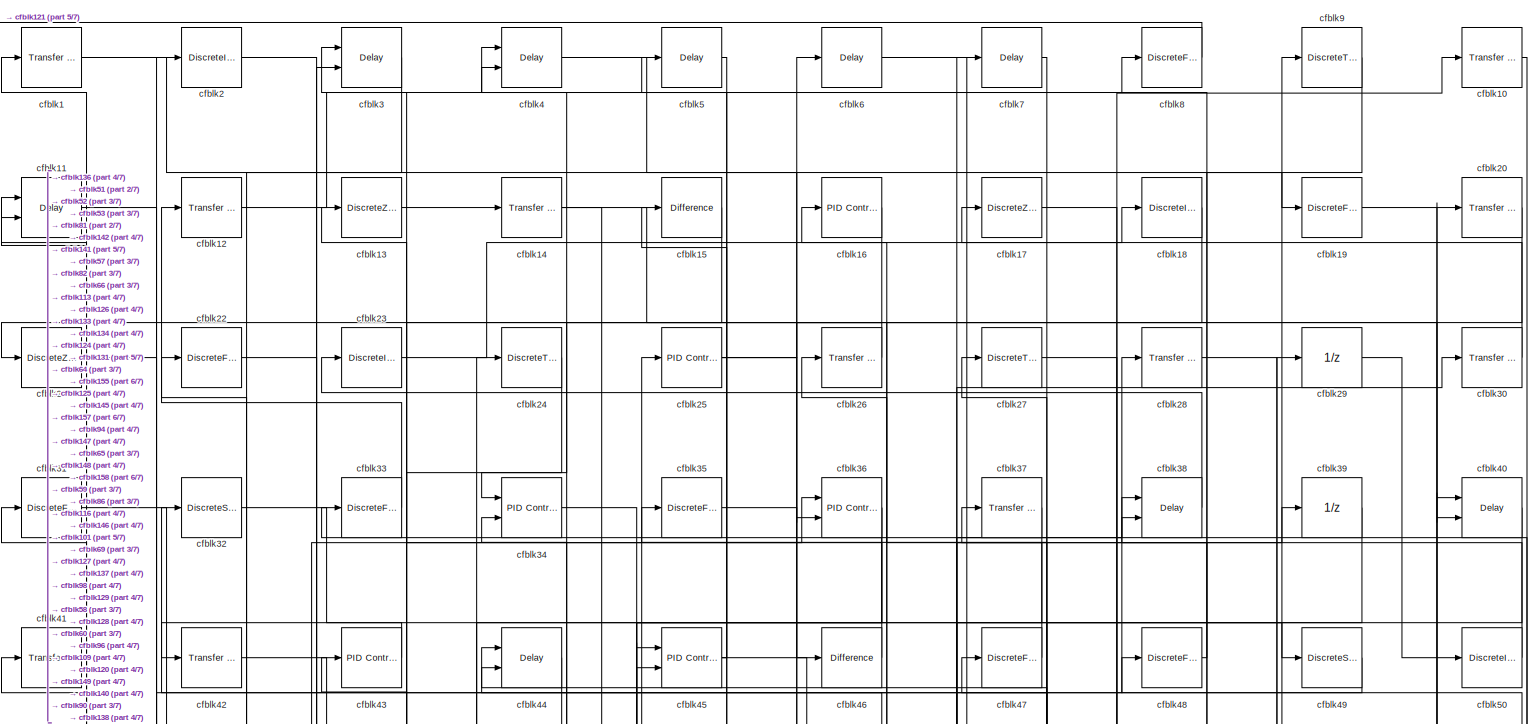
[diagram: root canvas - part 1/7, full width, top band]
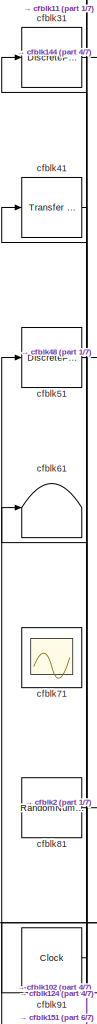
[diagram: root canvas - part 2/7, middle left region]
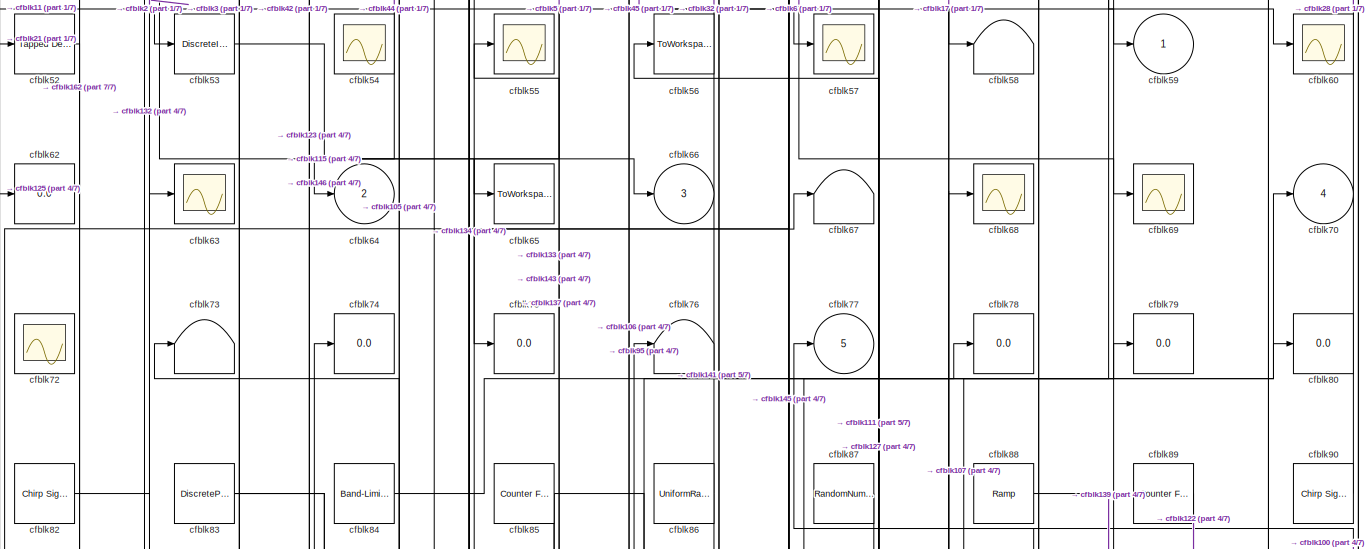
[diagram: root canvas - part 3/7, full width, middle band]
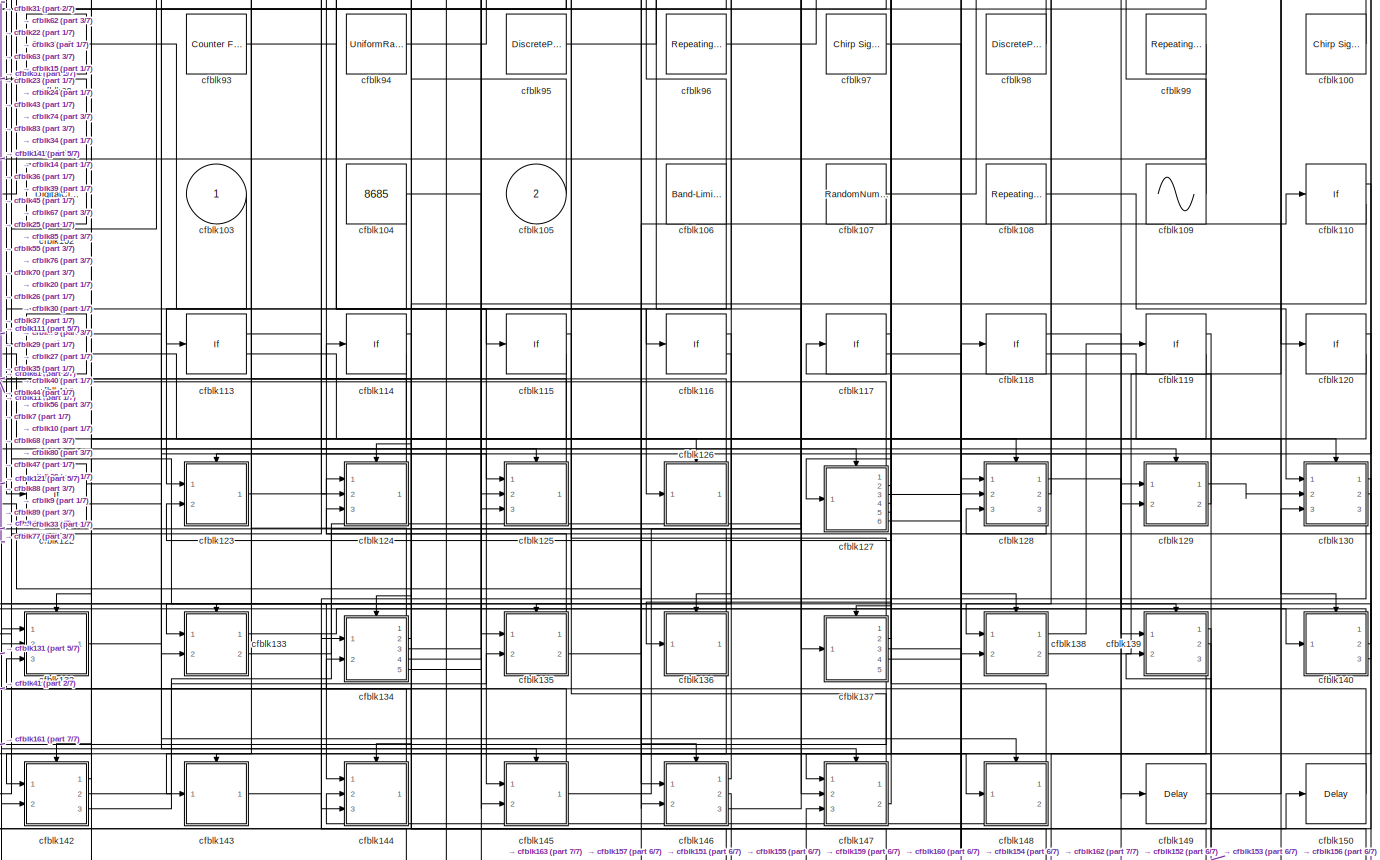
[diagram: root canvas - part 4/7, full width, bottom band]
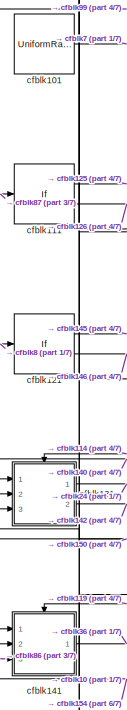
[diagram: root canvas - part 5/7, bottom left region]
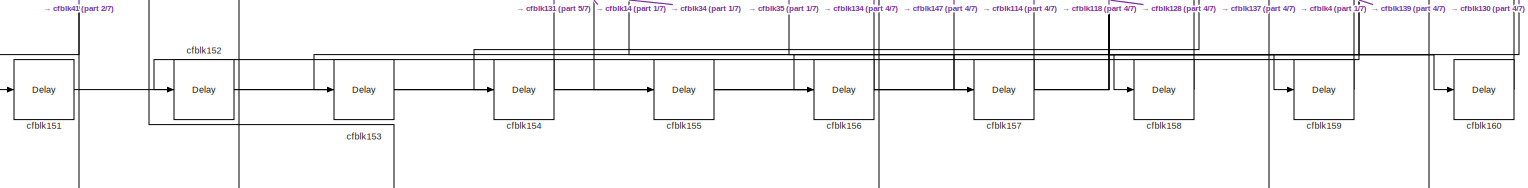
[diagram: root canvas - part 6/7, full width, bottom band]
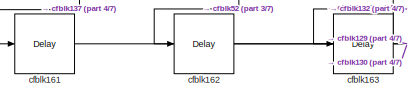
[diagram: root canvas - part 7/7, bottom left region]
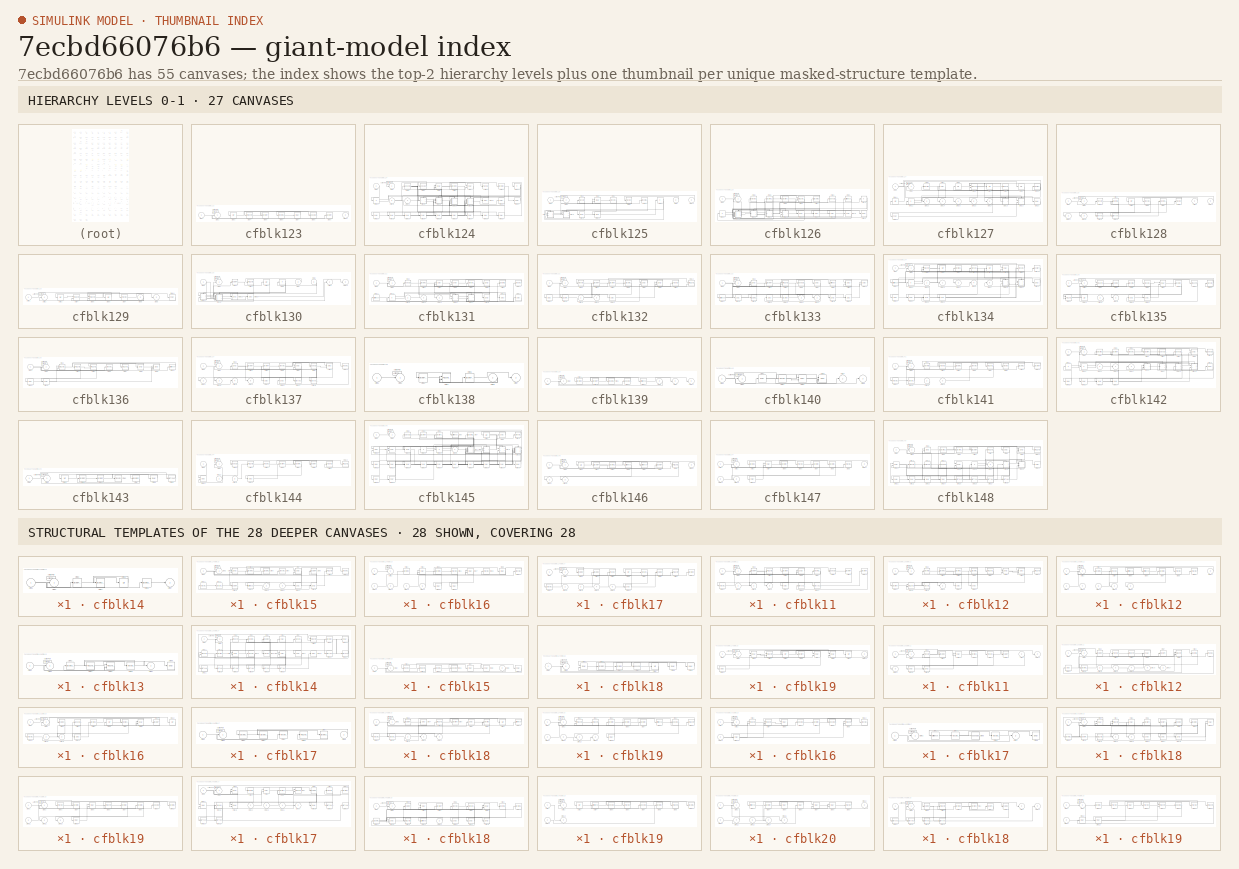
[diagram: thumbnail index - top-2 hierarchy levels (27 canvases) + 28 structural-template representatives of the remaining 28 canvases]
MODEL slx_7ecbd66076b6
KIND model
CONFIG AbsTol = auto
CONFIG EnableMultiTasking = off
CONFIG FixedStep = auto
CONFIG MaxStep = auto
CONFIG MinStep = auto
CONFIG RelTol = 1e-3
CONFIG SampleTimeConstraint = Unconstrained
CONFIG Solver = VariableStepAuto
CONFIG SolverName = VariableStepAuto
CONFIG StartTime = 0.0
CONFIG StopTime = 10.0
BLOCK [Reference] cfblk1  REF=simulink/Discrete/Transfer Fcn
First Order
  Ports = [1, 1]
  SourceBlock = simulink/Discrete/Transfer Fcn\nFirst Order
  SourceProductBaseCode = SL
  SourceProductName = Simulink
  SourceType = First Order Transfer Fcn
BLOCK [Reference] cfblk10  REF=simulink/Discrete/Transfer Fcn
Lead or Lag
  Ports = [1, 1]
  SourceBlock = simulink/Discrete/Transfer Fcn\nLead or Lag
  SourceProductBaseCode = SL
  SourceProductName = Simulink
  SourceType = Lead or Lag Compensator
BLOCK [Reference] cfblk100  REF=simulink/Sources/Chirp Signal
  Ports = [0, 1]
  SourceBlock = simulink/Sources/Chirp Signal
  SourceProductBaseCode = SL
  SourceProductName = Simulink
  SourceType = chirp
BLOCK [UniformRandomNumber] cfblk101
  SampleTime = 0.1
BLOCK [DigitalClock] cfblk102
BLOCK [Inport] cfblk103
  IconDisplay = Port number
BLOCK [Constant] cfblk104
  Value = 8685
BLOCK [Inport] cfblk105
  IconDisplay = Port number
  Port = 2
BLOCK [Reference] cfblk106  REF=simulink/Sources/Band-Limited
White Noise
  Ports = [0, 1]
  SourceBlock = simulink/Sources/Band-Limited\nWhite Noise
  SourceProductBaseCode = SL
  SourceProductName = Simulink
  SourceType = Band-Limited White Noise.
BLOCK [RandomNumber] cfblk107
  SampleTime = 0.1
BLOCK [Reference] cfblk108  REF=simulink/Sources/Repeating
Sequence
Interpolated
  Ports = [0, 1]
  SourceBlock = simulink/Sources/Repeating\nSequence\nInterpolated
  SourceProductBaseCode = SL
  SourceProductName = Simulink
  SourceType = Repeating Sequence Interpolated
BLOCK [Sin] cfblk109
  Ports = [0, 1]
  SampleTime = 0
BLOCK [Delay] cfblk11
  DelayLengthSource = Input port
  InputPortMap = u0,p1
  Ports = [2, 1]
  SampleTime = 1
BLOCK [If] cfblk110
  Ports = [1, 2]
  SampleTime = 1
BLOCK [If] cfblk111
  Ports = [1, 2]
  SampleTime = 1
BLOCK [If] cfblk112
  Ports = [1, 2]
  SampleTime = 1
BLOCK [If] cfblk113
  Ports = [1, 2]
  SampleTime = 1
BLOCK [If] cfblk114
  Ports = [1, 2]
  SampleTime = 1
BLOCK [If] cfblk115
  Ports = [1, 2]
  SampleTime = 1
BLOCK [If] cfblk116
  Ports = [1, 2]
  SampleTime = 1
BLOCK [If] cfblk117
  Ports = [1, 2]
  SampleTime = 1
BLOCK [If] cfblk118
  Ports = [1, 2]
  SampleTime = 1
BLOCK [If] cfblk119
  Ports = [1, 2]
  SampleTime = 1
BLOCK [Reference] cfblk12  REF=simulink/Discrete/Transfer Fcn
Real Zero
  Ports = [1, 1]
  SourceBlock = simulink/Discrete/Transfer Fcn\nReal Zero
  SourceProductBaseCode = SL
  SourceProductName = Simulink
  SourceType = Transfer Fcn Real Zero
BLOCK [If] cfblk120
  Ports = [1, 2]
  SampleTime = 1
BLOCK [If] cfblk121
  Ports = [1, 2]
  SampleTime = 1
BLOCK [If] cfblk122
  Ports = [1, 2]
  SampleTime = 1
BLOCK [SubSystem] cfblk123
  Ports = [2, 1, 0, 0, 0, 0, 0, 1]
  RequestExecContextInheritance = off
  TreatAsAtomicUnit = on
  Variant = off
BLOCK [ActionPort] cfblk123/Action Port
  ActionType = then
BLOCK [Inport] cfblk123/cfblk1
  IconDisplay = Port number
BLOCK [Inport] cfblk123/cfblk10
  IconDisplay = Port number
  Port = 2
BLOCK [Outport] cfblk123/cfblk2
  IconDisplay = Port number
BLOCK [UnitDelay] cfblk123/cfblk3
  InputProcessing = Elements as channels (sample based)
  SampleTime = -1
BLOCK [Reference] cfblk123/cfblk4  REF=simulink/Continuous/PID Controller
  Ports = [1, 1]
  SourceBlock = simulink/Continuous/PID Controller
  SourceProductBaseCode = SL
  SourceProductName = Simulink
  SourceType = PID 1dof
BLOCK [DiscreteTransferFcn] cfblk123/cfblk5
  InputPortMap = u0
  Ports = [1, 1]
BLOCK [DiscreteIntegrator] cfblk123/cfblk6
  ICPrevOutput = DiscIntNeverNeededParam
  ICPrevScaledInput = DiscIntNeverNeededParam
  InitialConditionSetting = State (most efficient)
  Ports = [1, 1]
  SampleTime = -1
BLOCK [Delay] cfblk123/cfblk7
  InputPortMap = u0
  Ports = [1, 1]
BLOCK [Reference] cfblk123/cfblk8  REF=simulink/Discrete/Tapped Delay
  Ports = [1, 1]
  SourceBlock = simulink/Discrete/Tapped Delay
  SourceProductBaseCode = SL
  SourceProductName = Simulink
  SourceType = Tapped Delay Line
BLOCK [DiscreteTransferFcn] cfblk123/cfblk9
  InputPortMap = u0
  Ports = [1, 1]
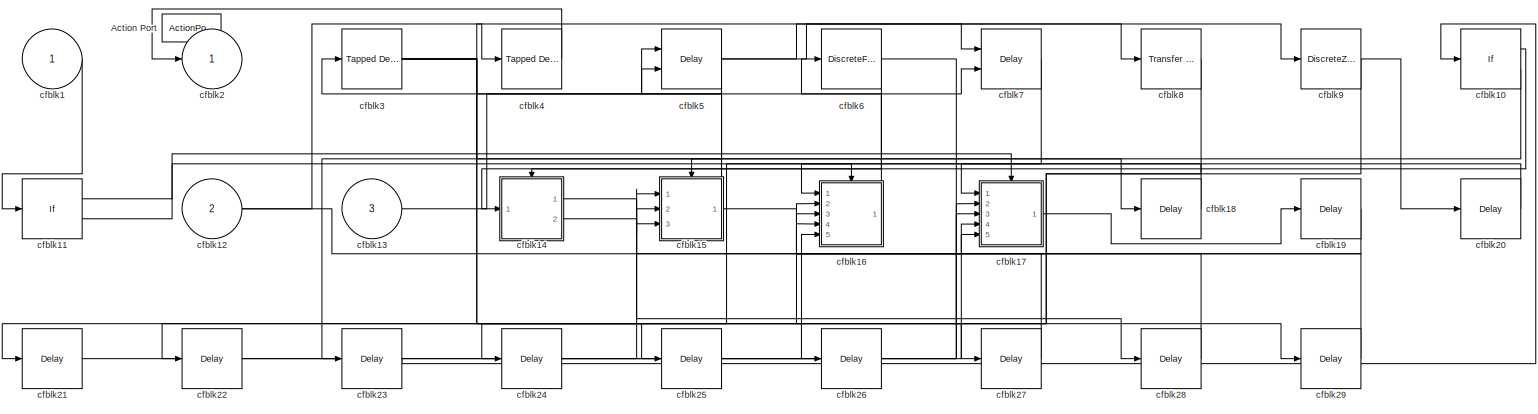
[diagram: cfblk124 - part 1/1, most of the canvas]
BLOCK [SubSystem] cfblk124
  Ports = [3, 1, 0, 0, 0, 0, 0, 1]
  RequestExecContextInheritance = off
  TreatAsAtomicUnit = on
  Variant = off
BLOCK [ActionPort] cfblk124/Action Port
  ActionType = else
BLOCK [Inport] cfblk124/cfblk1
  IconDisplay = Port number
BLOCK [If] cfblk124/cfblk10
  Ports = [1, 2]
  SampleTime = 1
BLOCK [If] cfblk124/cfblk11
  Ports = [1, 2]
  SampleTime = 1
BLOCK [Inport] cfblk124/cfblk12
  IconDisplay = Port number
  Port = 2
BLOCK [Inport] cfblk124/cfblk13
  IconDisplay = Port number
  Port = 3
BLOCK [SubSystem] cfblk124/cfblk14
  Ports = [1, 2, 0, 0, 0, 0, 0, 1]
  RequestExecContextInheritance = off
  TreatAsAtomicUnit = on
  Variant = off
BLOCK [ActionPort] cfblk124/cfblk14/Action Port
  ActionType = then
BLOCK [Inport] cfblk124/cfblk14/cfblk1
  IconDisplay = Port number
BLOCK [Outport] cfblk124/cfblk14/cfblk2
  IconDisplay = Port number
BLOCK [DiscreteFilter] cfblk124/cfblk14/cfblk3
  InputPortMap = u0
  Ports = [1, 1]
BLOCK [DiscreteZeroPole] cfblk124/cfblk14/cfblk4
  Gain = 1
  Poles = [0 0.5]
  SampleTime = -1
BLOCK [UnitDelay] cfblk124/cfblk14/cfblk5
  InputProcessing = Elements as channels (sample based)
  SampleTime = -1
BLOCK [DiscreteZeroPole] cfblk124/cfblk14/cfblk6
  Gain = 1
  Poles = [0 0.5]
  SampleTime = -1
BLOCK [Outport] cfblk124/cfblk14/cfblk7
  IconDisplay = Port number
  Port = 2
BLOCK [SubSystem] cfblk124/cfblk15
  Ports = [3, 1, 0, 0, 0, 0, 0, 1]
  RequestExecContextInheritance = off
  TreatAsAtomicUnit = on
  Variant = off
BLOCK [ActionPort] cfblk124/cfblk15/Action Port
  ActionType = else
BLOCK [Inport] cfblk124/cfblk15/cfblk1
  IconDisplay = Port number
BLOCK [Reference] cfblk124/cfblk15/cfblk10  REF=simulink/Discrete/Transfer Fcn
Real Zero
  Ports = [1, 1]
  SourceBlock = simulink/Discrete/Transfer Fcn\nReal Zero
  SourceProductBaseCode = SL
  SourceProductName = Simulink
  SourceType = Transfer Fcn Real Zero
BLOCK [Reference] cfblk124/cfblk15/cfblk11  REF=simulink/Discrete/Transfer Fcn
Lead or Lag
  Ports = [1, 1]
  SourceBlock = simulink/Discrete/Transfer Fcn\nLead or Lag
  SourceProductBaseCode = SL
  SourceProductName = Simulink
  SourceType = Lead or Lag Compensator
BLOCK [Reference] cfblk124/cfblk15/cfblk12  REF=simulink/Discrete/Transfer Fcn
First Order
  Ports = [1, 1]
  SourceBlock = simulink/Discrete/Transfer Fcn\nFirst Order
  SourceProductBaseCode = SL
  SourceProductName = Simulink
  SourceType = First Order Transfer Fcn
BLOCK [DiscreteFilter] cfblk124/cfblk15/cfblk13
  InputPortMap = u0
  Ports = [1, 1]
BLOCK [Reference] cfblk124/cfblk15/cfblk14  REF=simulink/Discrete/Difference
  Ports = [1, 1]
  SourceBlock = simulink/Discrete/Difference
  SourceProductBaseCode = SL
  SourceProductName = Simulink
  SourceType = Difference
BLOCK [Inport] cfblk124/cfblk15/cfblk15
  IconDisplay = Port number
  Port = 2
BLOCK [Inport] cfblk124/cfblk15/cfblk16
  IconDisplay = Port number
  Port = 3
BLOCK [Delay] cfblk124/cfblk15/cfblk17
  InputPortMap = u0
  Ports = [1, 1]
BLOCK [Delay] cfblk124/cfblk15/cfblk18
  InputPortMap = u0
  Ports = [1, 1]
BLOCK [Outport] cfblk124/cfblk15/cfblk2
  IconDisplay = Port number
BLOCK [Delay] cfblk124/cfblk15/cfblk3
  DelayLengthSource = Input port
  InputPortMap = u0,p1
  Ports = [2, 1]
BLOCK [DiscreteStateSpace] cfblk124/cfblk15/cfblk4
  SampleTime = -1
BLOCK [DiscreteIntegrator] cfblk124/cfblk15/cfblk5
  ICPrevOutput = DiscIntNeverNeededParam
  ICPrevScaledInput = DiscIntNeverNeededParam
  InitialConditionSetting = State (most efficient)
  Ports = [1, 1]
  SampleTime = -1
BLOCK [Reference] cfblk124/cfblk15/cfblk6  REF=simulink/Discrete/Transfer Fcn
Real Zero
  Ports = [1, 1]
  SourceBlock = simulink/Discrete/Transfer Fcn\nReal Zero
  SourceProductBaseCode = SL
  SourceProductName = Simulink
  SourceType = Transfer Fcn Real Zero
BLOCK [Delay] cfblk124/cfblk15/cfblk7
  InputPortMap = u0,e6
  Ports = [2, 1]
  ShowEnablePort = on
BLOCK [DiscreteFilter] cfblk124/cfblk15/cfblk8
  InputPortMap = u0
  Ports = [1, 1]
BLOCK [Reference] cfblk124/cfblk15/cfblk9  REF=simulink/Continuous/PID Controller
  Ports = [1, 1]
  SourceBlock = simulink/Continuous/PID Controller
  SourceProductBaseCode = SL
  SourceProductName = Simulink
  SourceType = PID 1dof
BLOCK [SubSystem] cfblk124/cfblk16
  Ports = [5, 1, 0, 0, 0, 0, 0, 1]
  RequestExecContextInheritance = off
  TreatAsAtomicUnit = on
  Variant = off
BLOCK [ActionPort] cfblk124/cfblk16/Action Port
  ActionType = then
BLOCK [Inport] cfblk124/cfblk16/cfblk1
  IconDisplay = Port number
BLOCK [Reference] cfblk124/cfblk16/cfblk10  REF=simulink/Discrete/Transfer Fcn
First Order
  Ports = [1, 1]
  SourceBlock = simulink/Discrete/Transfer Fcn\nFirst Order
  SourceProductBaseCode = SL
  SourceProductName = Simulink
  SourceType = First Order Transfer Fcn
BLOCK [Inport] cfblk124/cfblk16/cfblk11
  IconDisplay = Port number
  Port = 2
BLOCK [Inport] cfblk124/cfblk16/cfblk12
  IconDisplay = Port number
  Port = 3
BLOCK [Inport] cfblk124/cfblk16/cfblk13
  IconDisplay = Port number
  Port = 4
BLOCK [Inport] cfblk124/cfblk16/cfblk14
  IconDisplay = Port number
  Port = 5
BLOCK [Delay] cfblk124/cfblk16/cfblk15
  InputPortMap = u0
  Ports = [1, 1]
BLOCK [Delay] cfblk124/cfblk16/cfblk16
  InputPortMap = u0
  Ports = [1, 1]
BLOCK [Outport] cfblk124/cfblk16/cfblk2
  IconDisplay = Port number
BLOCK [DiscreteFir] cfblk124/cfblk16/cfblk3
  InputPortMap = u0
  OutputPortMap = o0
  Ports = [1, 1]
BLOCK [Delay] cfblk124/cfblk16/cfblk4
  DelayLengthSource = Input port
  InputPortMap = u0,p1
  Ports = [2, 1]
BLOCK [DiscreteStateSpace] cfblk124/cfblk16/cfblk5
  SampleTime = -1
BLOCK [Reference] cfblk124/cfblk16/cfblk6  REF=simulink/Discrete/Transfer Fcn
Real Zero
  Ports = [1, 1]
  SourceBlock = simulink/Discrete/Transfer Fcn\nReal Zero
  SourceProductBaseCode = SL
  SourceProductName = Simulink
  SourceType = Transfer Fcn Real Zero
BLOCK [Delay] cfblk124/cfblk16/cfblk7
  InputPortMap = u0,e6
  Ports = [2, 1]
  ShowEnablePort = on
BLOCK [Reference] cfblk124/cfblk16/cfblk8  REF=simulink/Discrete/Transfer Fcn
Real Zero
  Ports = [1, 1]
  SourceBlock = simulink/Discrete/Transfer Fcn\nReal Zero
  SourceProductBaseCode = SL
  SourceProductName = Simulink
  SourceType = Transfer Fcn Real Zero
BLOCK [Delay] cfblk124/cfblk16/cfblk9
  InputPortMap = u0
  Ports = [1, 1]
BLOCK [SubSystem] cfblk124/cfblk17
  Ports = [5, 1, 0, 0, 0, 0, 0, 1]
  RequestExecContextInheritance = off
  TreatAsAtomicUnit = on
  Variant = off
BLOCK [ActionPort] cfblk124/cfblk17/Action Port
  ActionType = else
BLOCK [Inport] cfblk124/cfblk17/cfblk1
  IconDisplay = Port number
BLOCK [DiscreteFilter] cfblk124/cfblk17/cfblk10
  InputPortMap = u0
  Ports = [1, 1]
BLOCK [Reference] cfblk124/cfblk17/cfblk11  REF=simulink/Discrete/Transfer Fcn
Real Zero
  Ports = [1, 1]
  SourceBlock = simulink/Discrete/Transfer Fcn\nReal Zero
  SourceProductBaseCode = SL
  SourceProductName = Simulink
  SourceType = Transfer Fcn Real Zero
BLOCK [Inport] cfblk124/cfblk17/cfblk12
  IconDisplay = Port number
  Port = 2
BLOCK [Inport] cfblk124/cfblk17/cfblk13
  IconDisplay = Port number
  Port = 3
BLOCK [Inport] cfblk124/cfblk17/cfblk14
  IconDisplay = Port number
  Port = 4
BLOCK [Inport] cfblk124/cfblk17/cfblk15
  IconDisplay = Port number
  Port = 5
BLOCK [Delay] cfblk124/cfblk17/cfblk16
  InputPortMap = u0
  Ports = [1, 1]
BLOCK [Outport] cfblk124/cfblk17/cfblk2
  IconDisplay = Port number
BLOCK [DiscreteFilter] cfblk124/cfblk17/cfblk3
  InputPortMap = u0
  Ports = [1, 1]
BLOCK [DiscreteZeroPole] cfblk124/cfblk17/cfblk4
  Gain = 1
  Poles = [0 0.5]
  SampleTime = -1
BLOCK [Reference] cfblk124/cfblk17/cfblk5  REF=simulink/Discrete/Transfer Fcn
Real Zero
  Ports = [1, 1]
  SourceBlock = simulink/Discrete/Transfer Fcn\nReal Zero
  SourceProductBaseCode = SL
  SourceProductName = Simulink
  SourceType = Transfer Fcn Real Zero
BLOCK [UnitDelay] cfblk124/cfblk17/cfblk6
  InputProcessing = Elements as channels (sample based)
  SampleTime = -1
BLOCK [Reference] cfblk124/cfblk17/cfblk7  REF=simulink/Discrete/Transfer Fcn
Real Zero
  Ports = [1, 1]
  SourceBlock = simulink/Discrete/Transfer Fcn\nReal Zero
  SourceProductBaseCode = SL
  SourceProductName = Simulink
  SourceType = Transfer Fcn Real Zero
BLOCK [DiscreteFir] cfblk124/cfblk17/cfblk8
  InputPortMap = u0
  OutputPortMap = o0
  Ports = [1, 1]
BLOCK [Reference] cfblk124/cfblk17/cfblk9  REF=simulink/Continuous/PID Controller
  Ports = [1, 1]
  SourceBlock = simulink/Continuous/PID Controller
  SourceProductBaseCode = SL
  SourceProductName = Simulink
  SourceType = PID 1dof
BLOCK [Delay] cfblk124/cfblk18
  InputPortMap = u0
  Ports = [1, 1]
BLOCK [Delay] cfblk124/cfblk19
  InputPortMap = u0
  Ports = [1, 1]
BLOCK [Outport] cfblk124/cfblk2
  IconDisplay = Port number
BLOCK [Delay] cfblk124/cfblk20
  InputPortMap = u0
  Ports = [1, 1]
BLOCK [Delay] cfblk124/cfblk21
  InputPortMap = u0
  Ports = [1, 1]
BLOCK [Delay] cfblk124/cfblk22
  InputPortMap = u0
  Ports = [1, 1]
BLOCK [Delay] cfblk124/cfblk23
  InputPortMap = u0
  Ports = [1, 1]
BLOCK [Delay] cfblk124/cfblk24
  InputPortMap = u0
  Ports = [1, 1]
BLOCK [Delay] cfblk124/cfblk25
  InputPortMap = u0
  Ports = [1, 1]
BLOCK [Delay] cfblk124/cfblk26
  InputPortMap = u0
  Ports = [1, 1]
BLOCK [Delay] cfblk124/cfblk27
  InputPortMap = u0
  Ports = [1, 1]
BLOCK [Delay] cfblk124/cfblk28
  InputPortMap = u0
  Ports = [1, 1]
BLOCK [Delay] cfblk124/cfblk29
  InputPortMap = u0
  Ports = [1, 1]
BLOCK [Reference] cfblk124/cfblk3  REF=simulink/Discrete/Tapped Delay
  Ports = [1, 1]
  SourceBlock = simulink/Discrete/Tapped Delay
  SourceProductBaseCode = SL
  SourceProductName = Simulink
  SourceType = Tapped Delay Line
BLOCK [Reference] cfblk124/cfblk4  REF=simulink/Discrete/Tapped Delay
  Ports = [1, 1]
  SourceBlock = simulink/Discrete/Tapped Delay
  SourceProductBaseCode = SL
  SourceProductName = Simulink
  SourceType = Tapped Delay Line
BLOCK [Delay] cfblk124/cfblk5
  InputPortMap = u0,e6
  Ports = [2, 1]
  ShowEnablePort = on
BLOCK [DiscreteFilter] cfblk124/cfblk6
  InputPortMap = u0
  Ports = [1, 1]
BLOCK [Delay] cfblk124/cfblk7
  DelayLengthSource = Input port
  InputPortMap = u0,p1
  Ports = [2, 1]
BLOCK [Reference] cfblk124/cfblk8  REF=simulink/Discrete/Transfer Fcn
First Order
  Ports = [1, 1]
  SourceBlock = simulink/Discrete/Transfer Fcn\nFirst Order
  SourceProductBaseCode = SL
  SourceProductName = Simulink
  SourceType = First Order Transfer Fcn
BLOCK [DiscreteZeroPole] cfblk124/cfblk9
  Gain = 1
  Poles = [0 0.5]
  SampleTime = -1
BLOCK [SubSystem] cfblk125
  Ports = [3, 1, 0, 0, 0, 0, 0, 1]
  RequestExecContextInheritance = off
  TreatAsAtomicUnit = on
  Variant = off
BLOCK [ActionPort] cfblk125/Action Port
  ActionType = then
BLOCK [Inport] cfblk125/cfblk1
  IconDisplay = Port number
BLOCK [Inport] cfblk125/cfblk10
  IconDisplay = Port number
  Port = 3
BLOCK [SubSystem] cfblk125/cfblk11
  Ports = [2, 3, 0, 0, 0, 0, 0, 1]
  RequestExecContextInheritance = off
  TreatAsAtomicUnit = on
  Variant = off
BLOCK [ActionPort] cfblk125/cfblk11/Action Port
  ActionType = then
BLOCK [Inport] cfblk125/cfblk11/cfblk1
  IconDisplay = Port number
BLOCK [DiscreteFilter] cfblk125/cfblk11/cfblk10
  InputPortMap = u0
  Ports = [1, 1]
BLOCK [Reference] cfblk125/cfblk11/cfblk11  REF=simulink/Discrete/Transfer Fcn
Real Zero
  Ports = [1, 1]
  SourceBlock = simulink/Discrete/Transfer Fcn\nReal Zero
  SourceProductBaseCode = SL
  SourceProductName = Simulink
  SourceType = Transfer Fcn Real Zero
BLOCK [Inport] cfblk125/cfblk11/cfblk12
  IconDisplay = Port number
  Port = 2
BLOCK [Outport] cfblk125/cfblk11/cfblk13
  IconDisplay = Port number
  Port = 2
BLOCK [Outport] cfblk125/cfblk11/cfblk14
  IconDisplay = Port number
  Port = 3
BLOCK [Delay] cfblk125/cfblk11/cfblk15
  InputPortMap = u0
  Ports = [1, 1]
BLOCK [DataTypeConversion] cfblk125/cfblk11/cfblk16
  RndMeth = Floor
  SaturateOnIntegerOverflow = off
BLOCK [DataTypeConversion] cfblk125/cfblk11/cfblk17
  RndMeth = Floor
  SaturateOnIntegerOverflow = off
BLOCK [Outport] cfblk125/cfblk11/cfblk2
  IconDisplay = Port number
BLOCK [DiscreteFir] cfblk125/cfblk11/cfblk3
  InputPortMap = u0
  OutputPortMap = o0
  Ports = [1, 1]
BLOCK [Reference] cfblk125/cfblk11/cfblk4  REF=simulink/Continuous/PID Controller
  Ports = [1, 1]
  SourceBlock = simulink/Continuous/PID Controller
  SourceProductBaseCode = SL
  SourceProductName = Simulink
  SourceType = PID 1dof
BLOCK [DiscreteFir] cfblk125/cfblk11/cfblk5
  InputPortMap = u0
  OutputPortMap = o0
  Ports = [1, 1]
BLOCK [Delay] cfblk125/cfblk11/cfblk6
  DelayLengthSource = Input port
  InputPortMap = u0,p1
  Ports = [2, 1]
BLOCK [DiscreteZeroPole] cfblk125/cfblk11/cfblk7
  Gain = 1
  Poles = [0 0.5]
  SampleTime = -1
BLOCK [Reference] cfblk125/cfblk11/cfblk8  REF=simulink/Discrete/Tapped Delay
  Ports = [1, 1]
  SourceBlock = simulink/Discrete/Tapped Delay
  SourceProductBaseCode = SL
  SourceProductName = Simulink
  SourceType = Tapped Delay Line
BLOCK [DiscreteFilter] cfblk125/cfblk11/cfblk9
  InputPortMap = u0
  Ports = [1, 1]
BLOCK [SubSystem] cfblk125/cfblk12
  Ports = [1, 2, 0, 0, 0, 0, 0, 1]
  RequestExecContextInheritance = off
  TreatAsAtomicUnit = on
  Variant = off
BLOCK [ActionPort] cfblk125/cfblk12/Action Port
  ActionType = else
BLOCK [Inport] cfblk125/cfblk12/cfblk1
  IconDisplay = Port number
BLOCK [Reference] cfblk125/cfblk12/cfblk10  REF=simulink/Continuous/PID Controller
  Ports = [1, 1]
  SourceBlock = simulink/Continuous/PID Controller
  SourceProductBaseCode = SL
  SourceProductName = Simulink
  SourceType = PID 1dof
BLOCK [DiscreteFir] cfblk125/cfblk12/cfblk11
  InputPortMap = u0
  OutputPortMap = o0
  Ports = [1, 1]
BLOCK [Reference] cfblk125/cfblk12/cfblk12  REF=simulink/Continuous/PID Controller (2DOF)
  Ports = [2, 1]
  SourceBlock = simulink/Continuous/PID Controller (2DOF)
  SourceProductBaseCode = SL
  SourceProductName = Simulink
  SourceType = PID 2dof
BLOCK [Reference] cfblk125/cfblk12/cfblk13  REF=simulink/Discrete/Transfer Fcn
Lead or Lag
  Ports = [1, 1]
  SourceBlock = simulink/Discrete/Transfer Fcn\nLead or Lag
  SourceProductBaseCode = SL
  SourceProductName = Simulink
  SourceType = Lead or Lag Compensator
BLOCK [Outport] cfblk125/cfblk12/cfblk14
  IconDisplay = Port number
  Port = 2
BLOCK [Delay] cfblk125/cfblk12/cfblk15
  InputPortMap = u0
  Ports = [1, 1]
BLOCK [Delay] cfblk125/cfblk12/cfblk16
  InputPortMap = u0
  Ports = [1, 1]
BLOCK [Outport] cfblk125/cfblk12/cfblk2
  IconDisplay = Port number
BLOCK [DiscreteIntegrator] cfblk125/cfblk12/cfblk3
  ICPrevOutput = DiscIntNeverNeededParam
  ICPrevScaledInput = DiscIntNeverNeededParam
  InitialConditionSetting = State (most efficient)
  Ports = [1, 1]
  SampleTime = -1
BLOCK [DiscreteZeroPole] cfblk125/cfblk12/cfblk4
  Gain = 1
  Poles = [0 0.5]
  SampleTime = -1
BLOCK [DiscreteStateSpace] cfblk125/cfblk12/cfblk5
  SampleTime = -1
BLOCK [DiscreteIntegrator] cfblk125/cfblk12/cfblk6
  ICPrevOutput = DiscIntNeverNeededParam
  ICPrevScaledInput = DiscIntNeverNeededParam
  InitialConditionSetting = State (most efficient)
  Ports = [1, 1]
  SampleTime = -1
BLOCK [Reference] cfblk125/cfblk12/cfblk7  REF=simulink/Continuous/PID Controller
  Ports = [1, 1]
  SourceBlock = simulink/Continuous/PID Controller
  SourceProductBaseCode = SL
  SourceProductName = Simulink
  SourceType = PID 1dof
BLOCK [Delay] cfblk125/cfblk12/cfblk8
  DelayLengthSource = Input port
  InputPortMap = u0,p1
  Ports = [2, 1]
BLOCK [Delay] cfblk125/cfblk12/cfblk9
  InputPortMap = u0,e6
  Ports = [2, 1]
  ShowEnablePort = on
BLOCK [Delay] cfblk125/cfblk13
  InputPortMap = u0
  Ports = [1, 1]
BLOCK [Delay] cfblk125/cfblk14
  InputPortMap = u0
  Ports = [1, 1]
BLOCK [Outport] cfblk125/cfblk2
  IconDisplay = Port number
BLOCK [Reference] cfblk125/cfblk3  REF=simulink/Discrete/Transfer Fcn
Real Zero
  Ports = [1, 1]
  SourceBlock = simulink/Discrete/Transfer Fcn\nReal Zero
  SourceProductBaseCode = SL
  SourceProductName = Simulink
  SourceType = Transfer Fcn Real Zero
BLOCK [Delay] cfblk125/cfblk4
  DelayLengthSource = Input port
  InputPortMap = u0,p1
  Ports = [2, 1]
BLOCK [Reference] cfblk125/cfblk5  REF=simulink/Discrete/Transfer Fcn
Lead or Lag
  Ports = [1, 1]
  SourceBlock = simulink/Discrete/Transfer Fcn\nLead or Lag
  SourceProductBaseCode = SL
  SourceProductName = Simulink
  SourceType = Lead or Lag Compensator
BLOCK [Reference] cfblk125/cfblk6  REF=simulink/Discrete/Transfer Fcn
Lead or Lag
  Ports = [1, 1]
  SourceBlock = simulink/Discrete/Transfer Fcn\nLead or Lag
  SourceProductBaseCode = SL
  SourceProductName = Simulink
  SourceType = Lead or Lag Compensator
BLOCK [DiscreteIntegrator] cfblk125/cfblk7
  ICPrevOutput = DiscIntNeverNeededParam
  ICPrevScaledInput = DiscIntNeverNeededParam
  InitialConditionSetting = State (most efficient)
  Ports = [1, 1]
  SampleTime = -1
BLOCK [If] cfblk125/cfblk8
  Ports = [1, 2]
  SampleTime = 1
BLOCK [Inport] cfblk125/cfblk9
  IconDisplay = Port number
  Port = 2
BLOCK [SubSystem] cfblk126
  Ports = [1, 1, 0, 0, 0, 0, 0, 1]
  RequestExecContextInheritance = off
  TreatAsAtomicUnit = on
  Variant = off
BLOCK [ActionPort] cfblk126/Action Port
  ActionType = else
BLOCK [Inport] cfblk126/cfblk1
  IconDisplay = Port number
BLOCK [If] cfblk126/cfblk10
  Ports = [1, 2]
  SampleTime = 1
BLOCK [If] cfblk126/cfblk11
  Ports = [1, 2]
  SampleTime = 1
BLOCK [SubSystem] cfblk126/cfblk12
  Ports = [5, 3, 0, 0, 0, 0, 0, 1]
  RequestExecContextInheritance = off
  TreatAsAtomicUnit = on
  Variant = off
BLOCK [ActionPort] cfblk126/cfblk12/Action Port
  ActionType = then
BLOCK [Inport] cfblk126/cfblk12/cfblk1
  IconDisplay = Port number
BLOCK [Inport] cfblk126/cfblk12/cfblk10
  IconDisplay = Port number
  Port = 2
BLOCK [Inport] cfblk126/cfblk12/cfblk11
  IconDisplay = Port number
  Port = 3
BLOCK [Inport] cfblk126/cfblk12/cfblk12
  IconDisplay = Port number
  Port = 4
BLOCK [Inport] cfblk126/cfblk12/cfblk13
  IconDisplay = Port number
  Port = 5
BLOCK [Outport] cfblk126/cfblk12/cfblk14
  IconDisplay = Port number
  Port = 2
BLOCK [Outport] cfblk126/cfblk12/cfblk15
  IconDisplay = Port number
  Port = 3
BLOCK [Outport] cfblk126/cfblk12/cfblk2
  IconDisplay = Port number
BLOCK [DiscreteIntegrator] cfblk126/cfblk12/cfblk3
  ICPrevOutput = DiscIntNeverNeededParam
  ICPrevScaledInput = DiscIntNeverNeededParam
  InitialConditionSetting = State (most efficient)
  Ports = [1, 1]
  SampleTime = -1
BLOCK [Reference] cfblk126/cfblk12/cfblk4  REF=simulink/Discrete/Transfer Fcn
Real Zero
  Ports = [1, 1]
  SourceBlock = simulink/Discrete/Transfer Fcn\nReal Zero
  SourceProductBaseCode = SL
  SourceProductName = Simulink
  SourceType = Transfer Fcn Real Zero
BLOCK [Reference] cfblk126/cfblk12/cfblk5  REF=simulink/Discrete/Difference
  Ports = [1, 1]
  SourceBlock = simulink/Discrete/Difference
  SourceProductBaseCode = SL
  SourceProductName = Simulink
  SourceType = Difference
BLOCK [Reference] cfblk126/cfblk12/cfblk6  REF=simulink/Discrete/Difference
  Ports = [1, 1]
  SourceBlock = simulink/Discrete/Difference
  SourceProductBaseCode = SL
  SourceProductName = Simulink
  SourceType = Difference
BLOCK [DiscreteZeroPole] cfblk126/cfblk12/cfblk7
  Gain = 1
  Poles = [0 0.5]
  SampleTime = -1
BLOCK [Reference] cfblk126/cfblk12/cfblk8  REF=simulink/Discrete/Transfer Fcn
Real Zero
  Ports = [1, 1]
  SourceBlock = simulink/Discrete/Transfer Fcn\nReal Zero
  SourceProductBaseCode = SL
  SourceProductName = Simulink
  SourceType = Transfer Fcn Real Zero
BLOCK [Reference] cfblk126/cfblk12/cfblk9  REF=simulink/Discrete/Transfer Fcn
Real Zero
  Ports = [1, 1]
  SourceBlock = simulink/Discrete/Transfer Fcn\nReal Zero
  SourceProductBaseCode = SL
  SourceProductName = Simulink
  SourceType = Transfer Fcn Real Zero
BLOCK [SubSystem] cfblk126/cfblk13
  Ports = [1, 2, 0, 0, 0, 0, 0, 1]
  RequestExecContextInheritance = off
  TreatAsAtomicUnit = on
  Variant = off
BLOCK [ActionPort] cfblk126/cfblk13/Action Port
  ActionType = else
BLOCK [Inport] cfblk126/cfblk13/cfblk1
  IconDisplay = Port number
BLOCK [Outport] cfblk126/cfblk13/cfblk2
  IconDisplay = Port number
BLOCK [DiscreteStateSpace] cfblk126/cfblk13/cfblk3
  SampleTime = -1
BLOCK [Reference] cfblk126/cfblk13/cfblk4  REF=simulink/Continuous/PID Controller
  Ports = [1, 1]
  SourceBlock = simulink/Continuous/PID Controller
  SourceProductBaseCode = SL
  SourceProductName = Simulink
  SourceType = PID 1dof
BLOCK [Reference] cfblk126/cfblk13/cfblk5  REF=simulink/Continuous/PID Controller (2DOF)
  Ports = [2, 1]
  SourceBlock = simulink/Continuous/PID Controller (2DOF)
  SourceProductBaseCode = SL
  SourceProductName = Simulink
  SourceType = PID 2dof
BLOCK [Reference] cfblk126/cfblk13/cfblk6  REF=simulink/Discrete/Transfer Fcn
First Order
  Ports = [1, 1]
  SourceBlock = simulink/Discrete/Transfer Fcn\nFirst Order
  SourceProductBaseCode = SL
  SourceProductName = Simulink
  SourceType = First Order Transfer Fcn
BLOCK [Outport] cfblk126/cfblk13/cfblk7
  IconDisplay = Port number
  Port = 2
BLOCK [Delay] cfblk126/cfblk13/cfblk8
  InputPortMap = u0
  Ports = [1, 1]
BLOCK [SubSystem] cfblk126/cfblk14
  Ports = [1, 1, 0, 0, 0, 0, 0, 1]
  RequestExecContextInheritance = off
  TreatAsAtomicUnit = on
  Variant = off
BLOCK [ActionPort] cfblk126/cfblk14/Action Port
  ActionType = then
BLOCK [Inport] cfblk126/cfblk14/cfblk1
  IconDisplay = Port number
BLOCK [Delay] cfblk126/cfblk14/cfblk10
  InputPortMap = u0
  Ports = [1, 1]
BLOCK [Reference] cfblk126/cfblk14/cfblk11  REF=simulink/Continuous/PID Controller (2DOF)
  Ports = [2, 1]
  SourceBlock = simulink/Continuous/PID Controller (2DOF)
  SourceProductBaseCode = SL
  SourceProductName = Simulink
  SourceType = PID 2dof
BLOCK [DiscreteIntegrator] cfblk126/cfblk14/cfblk12
  ICPrevOutput = DiscIntNeverNeededParam
  ICPrevScaledInput = DiscIntNeverNeededParam
  InitialConditionSetting = State (most efficient)
  Ports = [1, 1]
  SampleTime = -1
BLOCK [Delay] cfblk126/cfblk14/cfblk13
  DelayLengthSource = Input port
  InputPortMap = u0,p1
  Ports = [2, 1]
BLOCK [Reference] cfblk126/cfblk14/cfblk14  REF=simulink/Discrete/Transfer Fcn
First Order
  Ports = [1, 1]
  SourceBlock = simulink/Discrete/Transfer Fcn\nFirst Order
  SourceProductBaseCode = SL
  SourceProductName = Simulink
  SourceType = First Order Transfer Fcn
BLOCK [Reference] cfblk126/cfblk14/cfblk15  REF=simulink/Discrete/Transfer Fcn
Real Zero
  Ports = [1, 1]
  SourceBlock = simulink/Discrete/Transfer Fcn\nReal Zero
  SourceProductBaseCode = SL
  SourceProductName = Simulink
  SourceType = Transfer Fcn Real Zero
BLOCK [Delay] cfblk126/cfblk14/cfblk16
  DelayLengthSource = Input port
  InputPortMap = u0,p1
  Ports = [2, 1]
BLOCK [Delay] cfblk126/cfblk14/cfblk17
  InputPortMap = u0
  Ports = [1, 1]
BLOCK [Delay] cfblk126/cfblk14/cfblk18
  InputPortMap = u0
  Ports = [1, 1]
BLOCK [DataTypeConversion] cfblk126/cfblk14/cfblk19
  RndMeth = Floor
  SaturateOnIntegerOverflow = off
BLOCK [Outport] cfblk126/cfblk14/cfblk2
  IconDisplay = Port number
BLOCK [DataTypeConversion] cfblk126/cfblk14/cfblk20
  RndMeth = Floor
  SaturateOnIntegerOverflow = off
BLOCK [DataTypeConversion] cfblk126/cfblk14/cfblk21
  RndMeth = Floor
  SaturateOnIntegerOverflow = off
BLOCK [DataTypeConversion] cfblk126/cfblk14/cfblk22
  RndMeth = Floor
  SaturateOnIntegerOverflow = off
BLOCK [DataTypeConversion] cfblk126/cfblk14/cfblk23
  RndMeth = Floor
  SaturateOnIntegerOverflow = off
BLOCK [DataTypeConversion] cfblk126/cfblk14/cfblk24
  RndMeth = Floor
  SaturateOnIntegerOverflow = off
BLOCK [DataTypeConversion] cfblk126/cfblk14/cfblk25
  RndMeth = Floor
  SaturateOnIntegerOverflow = off
BLOCK [DataTypeConversion] cfblk126/cfblk14/cfblk26
  RndMeth = Floor
  SaturateOnIntegerOverflow = off
BLOCK [Reference] cfblk126/cfblk14/cfblk3  REF=simulink/Continuous/PID Controller
  Ports = [1, 1]
  SourceBlock = simulink/Continuous/PID Controller
  SourceProductBaseCode = SL
  SourceProductName = Simulink
  SourceType = PID 1dof
BLOCK [DiscreteFilter] cfblk126/cfblk14/cfblk4
  InputPortMap = u0
  Ports = [1, 1]
BLOCK [DiscreteFilter] cfblk126/cfblk14/cfblk5
  InputPortMap = u0
  Ports = [1, 1]
BLOCK [Delay] cfblk126/cfblk14/cfblk6
  InputPortMap = u0
  Ports = [1, 1]
BLOCK [Reference] cfblk126/cfblk14/cfblk7  REF=simulink/Discrete/Transfer Fcn
Real Zero
  Ports = [1, 1]
  SourceBlock = simulink/Discrete/Transfer Fcn\nReal Zero
  SourceProductBaseCode = SL
  SourceProductName = Simulink
  SourceType = Transfer Fcn Real Zero
BLOCK [Reference] cfblk126/cfblk14/cfblk8  REF=simulink/Continuous/PID Controller (2DOF)
  Ports = [2, 1]
  SourceBlock = simulink/Continuous/PID Controller (2DOF)
  SourceProductBaseCode = SL
  SourceProductName = Simulink
  SourceType = PID 2dof
BLOCK [DiscreteZeroPole] cfblk126/cfblk14/cfblk9
  Gain = 1
  Poles = [0 0.5]
  SampleTime = -1
BLOCK [SubSystem] cfblk126/cfblk15
  Ports = [2, 1, 0, 0, 0, 0, 0, 1]
  RequestExecContextInheritance = off
  TreatAsAtomicUnit = on
  Variant = off
BLOCK [ActionPort] cfblk126/cfblk15/Action Port
  ActionType = else
BLOCK [Inport] cfblk126/cfblk15/cfblk1
  IconDisplay = Port number
BLOCK [Delay] cfblk126/cfblk15/cfblk10
  InputPortMap = u0
  Ports = [1, 1]
BLOCK [Outport] cfblk126/cfblk15/cfblk2
  IconDisplay = Port number
BLOCK [Reference] cfblk126/cfblk15/cfblk3  REF=simulink/Discrete/Transfer Fcn
Lead or Lag
  Ports = [1, 1]
  SourceBlock = simulink/Discrete/Transfer Fcn\nLead or Lag
  SourceProductBaseCode = SL
  SourceProductName = Simulink
  SourceType = Lead or Lag Compensator
BLOCK [Reference] cfblk126/cfblk15/cfblk4  REF=simulink/Continuous/PID Controller
  Ports = [1, 1]
  SourceBlock = simulink/Continuous/PID Controller
  SourceProductBaseCode = SL
  SourceProductName = Simulink
  SourceType = PID 1dof
BLOCK [DiscreteIntegrator] cfblk126/cfblk15/cfblk5
  ICPrevOutput = DiscIntNeverNeededParam
  ICPrevScaledInput = DiscIntNeverNeededParam
  InitialConditionSetting = State (most efficient)
  Ports = [1, 1]
  SampleTime = -1
BLOCK [Reference] cfblk126/cfblk15/cfblk6  REF=simulink/Discrete/Tapped Delay
  Ports = [1, 1]
  SourceBlock = simulink/Discrete/Tapped Delay
  SourceProductBaseCode = SL
  SourceProductName = Simulink
  SourceType = Tapped Delay Line
BLOCK [Delay] cfblk126/cfblk15/cfblk7
  InputPortMap = u0
  Ports = [1, 1]
BLOCK [Delay] cfblk126/cfblk15/cfblk8
  InputPortMap = u0
  Ports = [1, 1]
BLOCK [Inport] cfblk126/cfblk15/cfblk9
  IconDisplay = Port number
  Port = 2
BLOCK [Delay] cfblk126/cfblk16
  InputPortMap = u0
  Ports = [1, 1]
BLOCK [Delay] cfblk126/cfblk17
  InputPortMap = u0
  Ports = [1, 1]
BLOCK [Delay] cfblk126/cfblk18
  InputPortMap = u0
  Ports = [1, 1]
BLOCK [Delay] cfblk126/cfblk19
  InputPortMap = u0
  Ports = [1, 1]
BLOCK [Outport] cfblk126/cfblk2
  IconDisplay = Port number
BLOCK [Delay] cfblk126/cfblk20
  InputPortMap = u0
  Ports = [1, 1]
BLOCK [Reference] cfblk126/cfblk3  REF=simulink/Discrete/Transfer Fcn
First Order
  Ports = [1, 1]
  SourceBlock = simulink/Discrete/Transfer Fcn\nFirst Order
  SourceProductBaseCode = SL
  SourceProductName = Simulink
  SourceType = First Order Transfer Fcn
BLOCK [DiscreteStateSpace] cfblk126/cfblk4
  SampleTime = -1
BLOCK [DiscreteTransferFcn] cfblk126/cfblk5
  InputPortMap = u0
  Ports = [1, 1]
BLOCK [Reference] cfblk126/cfblk6  REF=simulink/Continuous/PID Controller (2DOF)
  Ports = [2, 1]
  SourceBlock = simulink/Continuous/PID Controller (2DOF)
  SourceProductBaseCode = SL
  SourceProductName = Simulink
  SourceType = PID 2dof
BLOCK [DiscreteStateSpace] cfblk126/cfblk7
  SampleTime = -1
BLOCK [Reference] cfblk126/cfblk8  REF=simulink/Discrete/Tapped Delay
  Ports = [1, 1]
  SourceBlock = simulink/Discrete/Tapped Delay
  SourceProductBaseCode = SL
  SourceProductName = Simulink
  SourceType = Tapped Delay Line
BLOCK [Reference] cfblk126/cfblk9  REF=simulink/Discrete/Difference
  Ports = [1, 1]
  SourceBlock = simulink/Discrete/Difference
  SourceProductBaseCode = SL
  SourceProductName = Simulink
  SourceType = Difference
BLOCK [SubSystem] cfblk127
  Ports = [1, 6, 0, 0, 0, 0, 0, 1]
  RequestExecContextInheritance = off
  TreatAsAtomicUnit = on
  Variant = off
BLOCK [ActionPort] cfblk127/Action Port
  ActionType = then
BLOCK [Inport] cfblk127/cfblk1
  IconDisplay = Port number
BLOCK [DiscreteFilter] cfblk127/cfblk10
  InputPortMap = u0
  Ports = [1, 1]
BLOCK [UnitDelay] cfblk127/cfblk11
  InputProcessing = Elements as channels (sample based)
  SampleTime = -1
BLOCK [If] cfblk127/cfblk12
  Ports = [1, 2]
  SampleTime = 1
BLOCK [Outport] cfblk127/cfblk13
  IconDisplay = Port number
  Port = 2
BLOCK [Outport] cfblk127/cfblk14
  IconDisplay = Port number
  Port = 3
BLOCK [Outport] cfblk127/cfblk15
  IconDisplay = Port number
  Port = 4
BLOCK [Outport] cfblk127/cfblk16
  IconDisplay = Port number
  Port = 5
BLOCK [Outport] cfblk127/cfblk17
  IconDisplay = Port number
  Port = 6
BLOCK [SubSystem] cfblk127/cfblk18
  Ports = [1, 1, 0, 0, 0, 0, 0, 1]
  RequestExecContextInheritance = off
  TreatAsAtomicUnit = on
  Variant = off
BLOCK [ActionPort] cfblk127/cfblk18/Action Port
  ActionType = then
BLOCK [Inport] cfblk127/cfblk18/cfblk1
  IconDisplay = Port number
BLOCK [Outport] cfblk127/cfblk18/cfblk2
  IconDisplay = Port number
BLOCK [Delay] cfblk127/cfblk18/cfblk3
  InputPortMap = u0,e6
  Ports = [2, 1]
  ShowEnablePort = on
BLOCK [DiscreteZeroPole] cfblk127/cfblk18/cfblk4
  Gain = 1
  Poles = [0 0.5]
  SampleTime = -1
BLOCK [DiscreteStateSpace] cfblk127/cfblk18/cfblk5
  SampleTime = -1
BLOCK [Reference] cfblk127/cfblk18/cfblk6  REF=simulink/Discrete/Tapped Delay
  Ports = [1, 1]
  SourceBlock = simulink/Discrete/Tapped Delay
  SourceProductBaseCode = SL
  SourceProductName = Simulink
  SourceType = Tapped Delay Line
BLOCK [UnitDelay] cfblk127/cfblk18/cfblk7
  InputProcessing = Elements as channels (sample based)
  SampleTime = -1
BLOCK [Delay] cfblk127/cfblk18/cfblk8
  InputPortMap = u0
  Ports = [1, 1]
BLOCK [Delay] cfblk127/cfblk18/cfblk9
  InputPortMap = u0
  Ports = [1, 1]
BLOCK [SubSystem] cfblk127/cfblk19
  Ports = [2, 1, 0, 0, 0, 0, 0, 1]
  RequestExecContextInheritance = off
  TreatAsAtomicUnit = on
  Variant = off
BLOCK [ActionPort] cfblk127/cfblk19/Action Port
  ActionType = else
BLOCK [Inport] cfblk127/cfblk19/cfblk1
  IconDisplay = Port number
BLOCK [Inport] cfblk127/cfblk19/cfblk10
  IconDisplay = Port number
  Port = 2
BLOCK [Delay] cfblk127/cfblk19/cfblk11
  InputPortMap = u0
  Ports = [1, 1]
BLOCK [Outport] cfblk127/cfblk19/cfblk2
  IconDisplay = Port number
BLOCK [Delay] cfblk127/cfblk19/cfblk3
  DelayLengthSource = Input port
  InputPortMap = u0,p1
  Ports = [2, 1]
BLOCK [Reference] cfblk127/cfblk19/cfblk4  REF=simulink/Continuous/PID Controller (2DOF)
  Ports = [2, 1]
  SourceBlock = simulink/Continuous/PID Controller (2DOF)
  SourceProductBaseCode = SL
  SourceProductName = Simulink
  SourceType = PID 2dof
BLOCK [UnitDelay] cfblk127/cfblk19/cfblk5
  InputProcessing = Elements as channels (sample based)
  SampleTime = -1
BLOCK [DiscreteTransferFcn] cfblk127/cfblk19/cfblk6
  InputPortMap = u0
  Ports = [1, 1]
BLOCK [Delay] cfblk127/cfblk19/cfblk7
  DelayLengthSource = Input port
  InputPortMap = u0,p1
  Ports = [2, 1]
BLOCK [Delay] cfblk127/cfblk19/cfblk8
  InputPortMap = u0,e6
  Ports = [2, 1]
  ShowEnablePort = on
BLOCK [UnitDelay] cfblk127/cfblk19/cfblk9
  InputProcessing = Elements as channels (sample based)
  SampleTime = -1
BLOCK [Outport] cfblk127/cfblk2
  IconDisplay = Port number
BLOCK [Delay] cfblk127/cfblk20
  InputPortMap = u0
  Ports = [1, 1]
BLOCK [Delay] cfblk127/cfblk21
  InputPortMap = u0
  Ports = [1, 1]
BLOCK [DiscreteIntegrator] cfblk127/cfblk3
  ICPrevOutput = DiscIntNeverNeededParam
  ICPrevScaledInput = DiscIntNeverNeededParam
  InitialConditionSetting = State (most efficient)
  Ports = [1, 1]
  SampleTime = -1
BLOCK [Delay] cfblk127/cfblk4
  InputPortMap = u0
  Ports = [1, 1]
BLOCK [UnitDelay] cfblk127/cfblk5
  InputProcessing = Elements as channels (sample based)
  SampleTime = -1
BLOCK [Reference] cfblk127/cfblk6  REF=simulink/Continuous/PID Controller (2DOF)
  Ports = [2, 1]
  SourceBlock = simulink/Continuous/PID Controller (2DOF)
  SourceProductBaseCode = SL
  SourceProductName = Simulink
  SourceType = PID 2dof
BLOCK [UnitDelay] cfblk127/cfblk7
  InputProcessing = Elements as channels (sample based)
  SampleTime = -1
BLOCK [Reference] cfblk127/cfblk8  REF=simulink/Continuous/PID Controller
  Ports = [1, 1]
  SourceBlock = simulink/Continuous/PID Controller
  SourceProductBaseCode = SL
  SourceProductName = Simulink
  SourceType = PID 1dof
BLOCK [UnitDelay] cfblk127/cfblk9
  InputProcessing = Elements as channels (sample based)
  SampleTime = -1
BLOCK [SubSystem] cfblk128
  Ports = [3, 3, 0, 0, 0, 0, 0, 1]
  RequestExecContextInheritance = off
  TreatAsAtomicUnit = on
  Variant = off
BLOCK [ActionPort] cfblk128/Action Port
  ActionType = else
BLOCK [Inport] cfblk128/cfblk1
  IconDisplay = Port number
BLOCK [Inport] cfblk128/cfblk10
  IconDisplay = Port number
  Port = 3
BLOCK [Outport] cfblk128/cfblk11
  IconDisplay = Port number
  Port = 2
BLOCK [Outport] cfblk128/cfblk12
  IconDisplay = Port number
  Port = 3
BLOCK [DataTypeConversion] cfblk128/cfblk13
  RndMeth = Floor
  SaturateOnIntegerOverflow = off
BLOCK [DataTypeConversion] cfblk128/cfblk14
  RndMeth = Floor
  SaturateOnIntegerOverflow = off
BLOCK [Outport] cfblk128/cfblk2
  IconDisplay = Port number
BLOCK [Reference] cfblk128/cfblk3  REF=simulink/Discrete/Transfer Fcn
Lead or Lag
  Ports = [1, 1]
  SourceBlock = simulink/Discrete/Transfer Fcn\nLead or Lag
  SourceProductBaseCode = SL
  SourceProductName = Simulink
  SourceType = Lead or Lag Compensator
BLOCK [DiscreteIntegrator] cfblk128/cfblk4
  ICPrevOutput = DiscIntNeverNeededParam
  ICPrevScaledInput = DiscIntNeverNeededParam
  InitialConditionSetting = State (most efficient)
  Ports = [1, 1]
  SampleTime = -1
BLOCK [UnitDelay] cfblk128/cfblk5
  InputProcessing = Elements as channels (sample based)
  SampleTime = -1
BLOCK [Reference] cfblk128/cfblk6  REF=simulink/Discrete/Transfer Fcn
First Order
  Ports = [1, 1]
  SourceBlock = simulink/Discrete/Transfer Fcn\nFirst Order
  SourceProductBaseCode = SL
  SourceProductName = Simulink
  SourceType = First Order Transfer Fcn
BLOCK [DiscreteStateSpace] cfblk128/cfblk7
  SampleTime = -1
BLOCK [Reference] cfblk128/cfblk8  REF=simulink/Discrete/Transfer Fcn
Real Zero
  Ports = [1, 1]
  SourceBlock = simulink/Discrete/Transfer Fcn\nReal Zero
  SourceProductBaseCode = SL
  SourceProductName = Simulink
  SourceType = Transfer Fcn Real Zero
BLOCK [Inport] cfblk128/cfblk9
  IconDisplay = Port number
  Port = 2
BLOCK [SubSystem] cfblk129
  Ports = [2, 2, 0, 0, 0, 0, 0, 1]
  RequestExecContextInheritance = off
  TreatAsAtomicUnit = on
  Variant = off
BLOCK [ActionPort] cfblk129/Action Port
  ActionType = then
BLOCK [Inport] cfblk129/cfblk1
  IconDisplay = Port number
BLOCK [Delay] cfblk129/cfblk10
  InputPortMap = u0
  Ports = [1, 1]
BLOCK [Outport] cfblk129/cfblk2
  IconDisplay = Port number
BLOCK [UnitDelay] cfblk129/cfblk3
  InputProcessing = Elements as channels (sample based)
  SampleTime = -1
BLOCK [Reference] cfblk129/cfblk4  REF=simulink/Continuous/PID Controller (2DOF)
  Ports = [2, 1]
  SourceBlock = simulink/Continuous/PID Controller (2DOF)
  SourceProductBaseCode = SL
  SourceProductName = Simulink
  SourceType = PID 2dof
BLOCK [Reference] cfblk129/cfblk5  REF=simulink/Continuous/PID Controller (2DOF)
  Ports = [2, 1]
  SourceBlock = simulink/Continuous/PID Controller (2DOF)
  SourceProductBaseCode = SL
  SourceProductName = Simulink
  SourceType = PID 2dof
BLOCK [UnitDelay] cfblk129/cfblk6
  InputProcessing = Elements as channels (sample based)
  SampleTime = -1
BLOCK [Reference] cfblk129/cfblk7  REF=simulink/Discrete/Transfer Fcn
Lead or Lag
  Ports = [1, 1]
  SourceBlock = simulink/Discrete/Transfer Fcn\nLead or Lag
  SourceProductBaseCode = SL
  SourceProductName = Simulink
  SourceType = Lead or Lag Compensator
BLOCK [Inport] cfblk129/cfblk8
  IconDisplay = Port number
  Port = 2
BLOCK [Outport] cfblk129/cfblk9
  IconDisplay = Port number
  Port = 2
BLOCK [DiscreteZeroPole] cfblk13
  Gain = 1
  Poles = [0 0.5]
BLOCK [SubSystem] cfblk130
  Ports = [3, 3, 0, 0, 0, 0, 0, 1]
  RequestExecContextInheritance = off
  TreatAsAtomicUnit = on
  Variant = off
BLOCK [ActionPort] cfblk130/Action Port
  ActionType = else
BLOCK [Inport] cfblk130/cfblk1
  IconDisplay = Port number
BLOCK [Outport] cfblk130/cfblk10
  IconDisplay = Port number
  Port = 3
BLOCK [SubSystem] cfblk130/cfblk11
  Ports = [2, 3, 0, 0, 0, 0, 0, 1]
  RequestExecContextInheritance = off
  TreatAsAtomicUnit = on
  Variant = off
BLOCK [ActionPort] cfblk130/cfblk11/Action Port
  ActionType = then
BLOCK [Inport] cfblk130/cfblk11/cfblk1
  IconDisplay = Port number
BLOCK [Outport] cfblk130/cfblk11/cfblk10
  IconDisplay = Port number
  Port = 2
BLOCK [Outport] cfblk130/cfblk11/cfblk11
  IconDisplay = Port number
  Port = 3
BLOCK [Delay] cfblk130/cfblk11/cfblk12
  InputPortMap = u0
  Ports = [1, 1]
BLOCK [Delay] cfblk130/cfblk11/cfblk13
  InputPortMap = u0
  Ports = [1, 1]
BLOCK [Outport] cfblk130/cfblk11/cfblk2
  IconDisplay = Port number
BLOCK [Reference] cfblk130/cfblk11/cfblk3  REF=simulink/Discrete/Transfer Fcn
First Order
  Ports = [1, 1]
  SourceBlock = simulink/Discrete/Transfer Fcn\nFirst Order
  SourceProductBaseCode = SL
  SourceProductName = Simulink
  SourceType = First Order Transfer Fcn
BLOCK [DiscreteFilter] cfblk130/cfblk11/cfblk4
  InputPortMap = u0
  Ports = [1, 1]
BLOCK [Delay] cfblk130/cfblk11/cfblk5
  DelayLengthSource = Input port
  InputPortMap = u0,p1
  Ports = [2, 1]
BLOCK [DiscreteZeroPole] cfblk130/cfblk11/cfblk6
  Gain = 1
  Poles = [0 0.5]
  SampleTime = -1
BLOCK [Reference] cfblk130/cfblk11/cfblk7  REF=simulink/Discrete/Transfer Fcn
First Order
  Ports = [1, 1]
  SourceBlock = simulink/Discrete/Transfer Fcn\nFirst Order
  SourceProductBaseCode = SL
  SourceProductName = Simulink
  SourceType = First Order Transfer Fcn
BLOCK [DiscreteTransferFcn] cfblk130/cfblk11/cfblk8
  InputPortMap = u0
  Ports = [1, 1]
BLOCK [Inport] cfblk130/cfblk11/cfblk9
  IconDisplay = Port number
  Port = 2
BLOCK [SubSystem] cfblk130/cfblk12
  Ports = [5, 2, 0, 0, 0, 0, 0, 1]
  RequestExecContextInheritance = off
  TreatAsAtomicUnit = on
  Variant = off
BLOCK [ActionPort] cfblk130/cfblk12/Action Port
  ActionType = else
BLOCK [Inport] cfblk130/cfblk12/cfblk1
  IconDisplay = Port number
BLOCK [Reference] cfblk130/cfblk12/cfblk10  REF=simulink/Discrete/Transfer Fcn
Real Zero
  Ports = [1, 1]
  SourceBlock = simulink/Discrete/Transfer Fcn\nReal Zero
  SourceProductBaseCode = SL
  SourceProductName = Simulink
  SourceType = Transfer Fcn Real Zero
BLOCK [Delay] cfblk130/cfblk12/cfblk11
  InputPortMap = u0
  Ports = [1, 1]
BLOCK [DiscreteIntegrator] cfblk130/cfblk12/cfblk12
  ICPrevOutput = DiscIntNeverNeededParam
  ICPrevScaledInput = DiscIntNeverNeededParam
  InitialConditionSetting = State (most efficient)
  Ports = [1, 1]
  SampleTime = -1
BLOCK [Inport] cfblk130/cfblk12/cfblk13
  IconDisplay = Port number
  Port = 2
BLOCK [Inport] cfblk130/cfblk12/cfblk14
  IconDisplay = Port number
  Port = 3
BLOCK [Inport] cfblk130/cfblk12/cfblk15
  IconDisplay = Port number
  Port = 4
BLOCK [Inport] cfblk130/cfblk12/cfblk16
  IconDisplay = Port number
  Port = 5
BLOCK [Outport] cfblk130/cfblk12/cfblk17
  IconDisplay = Port number
  Port = 2
BLOCK [Outport] cfblk130/cfblk12/cfblk2
  IconDisplay = Port number
BLOCK [DiscreteFilter] cfblk130/cfblk12/cfblk3
  InputPortMap = u0
  Ports = [1, 1]
BLOCK [Reference] cfblk130/cfblk12/cfblk4  REF=simulink/Discrete/Transfer Fcn
Real Zero
  Ports = [1, 1]
  SourceBlock = simulink/Discrete/Transfer Fcn\nReal Zero
  SourceProductBaseCode = SL
  SourceProductName = Simulink
  SourceType = Transfer Fcn Real Zero
BLOCK [Reference] cfblk130/cfblk12/cfblk5  REF=simulink/Continuous/PID Controller
  Ports = [1, 1]
  SourceBlock = simulink/Continuous/PID Controller
  SourceProductBaseCode = SL
  SourceProductName = Simulink
  SourceType = PID 1dof
BLOCK [Delay] cfblk130/cfblk12/cfblk6
  InputPortMap = u0
  Ports = [1, 1]
BLOCK [DiscreteTransferFcn] cfblk130/cfblk12/cfblk7
  InputPortMap = u0
  Ports = [1, 1]
BLOCK [Reference] cfblk130/cfblk12/cfblk8  REF=simulink/Continuous/PID Controller (2DOF)
  Ports = [2, 1]
  SourceBlock = simulink/Continuous/PID Controller (2DOF)
  SourceProductBaseCode = SL
  SourceProductName = Simulink
  SourceType = PID 2dof
BLOCK [DiscreteIntegrator] cfblk130/cfblk12/cfblk9
  ICPrevOutput = DiscIntNeverNeededParam
  ICPrevScaledInput = DiscIntNeverNeededParam
  InitialConditionSetting = State (most efficient)
  Ports = [1, 1]
  SampleTime = -1
BLOCK [Delay] cfblk130/cfblk13
  InputPortMap = u0
  Ports = [1, 1]
BLOCK [Delay] cfblk130/cfblk14
  InputPortMap = u0
  Ports = [1, 1]
BLOCK [Outport] cfblk130/cfblk2
  IconDisplay = Port number
BLOCK [DiscreteFir] cfblk130/cfblk3
  InputPortMap = u0
  OutputPortMap = o0
  Ports = [1, 1]
BLOCK [Reference] cfblk130/cfblk4  REF=simulink/Continuous/PID Controller
  Ports = [1, 1]
  SourceBlock = simulink/Continuous/PID Controller
  SourceProductBaseCode = SL
  SourceProductName = Simulink
  SourceType = PID 1dof
BLOCK [UnitDelay] cfblk130/cfblk5
  InputProcessing = Elements as channels (sample based)
  SampleTime = -1
BLOCK [If] cfblk130/cfblk6
  Ports = [1, 2]
  SampleTime = 1
BLOCK [Inport] cfblk130/cfblk7
  IconDisplay = Port number
  Port = 2
BLOCK [Inport] cfblk130/cfblk8
  IconDisplay = Port number
  Port = 3
BLOCK [Outport] cfblk130/cfblk9
  IconDisplay = Port number
  Port = 2
BLOCK [SubSystem] cfblk131
  Ports = [3, 2, 0, 0, 0, 0, 0, 1]
  RequestExecContextInheritance = off
  TreatAsAtomicUnit = on
  Variant = off
BLOCK [ActionPort] cfblk131/Action Port
  ActionType = then
BLOCK [Inport] cfblk131/cfblk1
  IconDisplay = Port number
BLOCK [Reference] cfblk131/cfblk10  REF=simulink/Discrete/Transfer Fcn
First Order
  Ports = [1, 1]
  SourceBlock = simulink/Discrete/Transfer Fcn\nFirst Order
  SourceProductBaseCode = SL
  SourceProductName = Simulink
  SourceType = First Order Transfer Fcn
BLOCK [Reference] cfblk131/cfblk11  REF=simulink/Discrete/Difference
  Ports = [1, 1]
  SourceBlock = simulink/Discrete/Difference
  SourceProductBaseCode = SL
  SourceProductName = Simulink
  SourceType = Difference
BLOCK [If] cfblk131/cfblk12
  Ports = [1, 2]
  SampleTime = 1
BLOCK [Inport] cfblk131/cfblk13
  IconDisplay = Port number
  Port = 2
BLOCK [Inport] cfblk131/cfblk14
  IconDisplay = Port number
  Port = 3
BLOCK [Outport] cfblk131/cfblk15
  IconDisplay = Port number
  Port = 2
BLOCK [SubSystem] cfblk131/cfblk16
  Ports = [2, 2, 0, 0, 0, 0, 0, 1]
  RequestExecContextInheritance = off
  TreatAsAtomicUnit = on
  Variant = off
BLOCK [ActionPort] cfblk131/cfblk16/Action Port
  ActionType = then
BLOCK [Inport] cfblk131/cfblk16/cfblk1
  IconDisplay = Port number
BLOCK [UnitDelay] cfblk131/cfblk16/cfblk10
  InputProcessing = Elements as channels (sample based)
  SampleTime = -1
BLOCK [Reference] cfblk131/cfblk16/cfblk11  REF=simulink/Discrete/Transfer Fcn
Real Zero
  Ports = [1, 1]
  SourceBlock = simulink/Discrete/Transfer Fcn\nReal Zero
  SourceProductBaseCode = SL
  SourceProductName = Simulink
  SourceType = Transfer Fcn Real Zero
BLOCK [Inport] cfblk131/cfblk16/cfblk12
  IconDisplay = Port number
  Port = 2
BLOCK [Outport] cfblk131/cfblk16/cfblk13
  IconDisplay = Port number
  Port = 2
BLOCK [Delay] cfblk131/cfblk16/cfblk14
  InputPortMap = u0
  Ports = [1, 1]
BLOCK [Outport] cfblk131/cfblk16/cfblk2
  IconDisplay = Port number
BLOCK [DiscreteFilter] cfblk131/cfblk16/cfblk3
  InputPortMap = u0
  Ports = [1, 1]
BLOCK [Reference] cfblk131/cfblk16/cfblk4  REF=simulink/Discrete/Tapped Delay
  Ports = [1, 1]
  SourceBlock = simulink/Discrete/Tapped Delay
  SourceProductBaseCode = SL
  SourceProductName = Simulink
  SourceType = Tapped Delay Line
BLOCK [DiscreteStateSpace] cfblk131/cfblk16/cfblk5
  SampleTime = -1
BLOCK [UnitDelay] cfblk131/cfblk16/cfblk6
  InputProcessing = Elements as channels (sample based)
  SampleTime = -1
BLOCK [DiscreteStateSpace] cfblk131/cfblk16/cfblk7
  SampleTime = -1
BLOCK [Delay] cfblk131/cfblk16/cfblk8
  DelayLengthSource = Input port
  InputPortMap = u0,p1
  Ports = [2, 1]
BLOCK [DiscreteTransferFcn] cfblk131/cfblk16/cfblk9
  InputPortMap = u0
  Ports = [1, 1]
BLOCK [SubSystem] cfblk131/cfblk17
  Ports = [2, 1, 0, 0, 0, 0, 0, 1]
  RequestExecContextInheritance = off
  TreatAsAtomicUnit = on
  Variant = off
BLOCK [ActionPort] cfblk131/cfblk17/Action Port
  ActionType = else
BLOCK [Inport] cfblk131/cfblk17/cfblk1
  IconDisplay = Port number
BLOCK [Outport] cfblk131/cfblk17/cfblk2
  IconDisplay = Port number
BLOCK [DiscreteIntegrator] cfblk131/cfblk17/cfblk3
  ICPrevOutput = DiscIntNeverNeededParam
  ICPrevScaledInput = DiscIntNeverNeededParam
  InitialConditionSetting = State (most efficient)
  Ports = [1, 1]
  SampleTime = -1
BLOCK [DiscreteIntegrator] cfblk131/cfblk17/cfblk4
  ICPrevOutput = DiscIntNeverNeededParam
  ICPrevScaledInput = DiscIntNeverNeededParam
  InitialConditionSetting = State (most efficient)
  Ports = [1, 1]
  SampleTime = -1
BLOCK [Reference] cfblk131/cfblk17/cfblk5  REF=simulink/Discrete/Transfer Fcn
Lead or Lag
  Ports = [1, 1]
  SourceBlock = simulink/Discrete/Transfer Fcn\nLead or Lag
  SourceProductBaseCode = SL
  SourceProductName = Simulink
  SourceType = Lead or Lag Compensator
BLOCK [Reference] cfblk131/cfblk17/cfblk6  REF=simulink/Continuous/PID Controller
  Ports = [1, 1]
  SourceBlock = simulink/Continuous/PID Controller
  SourceProductBaseCode = SL
  SourceProductName = Simulink
  SourceType = PID 1dof
BLOCK [DiscreteStateSpace] cfblk131/cfblk17/cfblk7
  SampleTime = -1
BLOCK [Inport] cfblk131/cfblk17/cfblk8
  IconDisplay = Port number
  Port = 2
BLOCK [Delay] cfblk131/cfblk18
  InputPortMap = u0
  Ports = [1, 1]
BLOCK [Delay] cfblk131/cfblk19
  InputPortMap = u0
  Ports = [1, 1]
BLOCK [Outport] cfblk131/cfblk2
  IconDisplay = Port number
BLOCK [Delay] cfblk131/cfblk20
  InputPortMap = u0
  Ports = [1, 1]
BLOCK [Reference] cfblk131/cfblk3  REF=simulink/Discrete/Tapped Delay
  Ports = [1, 1]
  SourceBlock = simulink/Discrete/Tapped Delay
  SourceProductBaseCode = SL
  SourceProductName = Simulink
  SourceType = Tapped Delay Line
BLOCK [DiscreteStateSpace] cfblk131/cfblk4
  SampleTime = -1
BLOCK [Delay] cfblk131/cfblk5
  DelayLengthSource = Input port
  InputPortMap = u0,p1
  Ports = [2, 1]
BLOCK [Delay] cfblk131/cfblk6
  InputPortMap = u0,e6
  Ports = [2, 1]
  ShowEnablePort = on
BLOCK [Reference] cfblk131/cfblk7  REF=simulink/Discrete/Transfer Fcn
First Order
  Ports = [1, 1]
  SourceBlock = simulink/Discrete/Transfer Fcn\nFirst Order
  SourceProductBaseCode = SL
  SourceProductName = Simulink
  SourceType = First Order Transfer Fcn
BLOCK [Delay] cfblk131/cfblk8
  InputPortMap = u0
  Ports = [1, 1]
BLOCK [DiscreteIntegrator] cfblk131/cfblk9
  ICPrevOutput = DiscIntNeverNeededParam
  ICPrevScaledInput = DiscIntNeverNeededParam
  InitialConditionSetting = State (most efficient)
  Ports = [1, 1]
  SampleTime = -1
BLOCK [SubSystem] cfblk132
  Ports = [3, 1, 0, 0, 0, 0, 0, 1]
  RequestExecContextInheritance = off
  TreatAsAtomicUnit = on
  Variant = off
BLOCK [ActionPort] cfblk132/Action Port
  ActionType = else
BLOCK [Inport] cfblk132/cfblk1
  IconDisplay = Port number
BLOCK [Reference] cfblk132/cfblk10  REF=simulink/Continuous/PID Controller (2DOF)
  Ports = [2, 1]
  SourceBlock = simulink/Continuous/PID Controller (2DOF)
  SourceProductBaseCode = SL
  SourceProductName = Simulink
  SourceType = PID 2dof
BLOCK [Delay] cfblk132/cfblk11
  InputPortMap = u0
  Ports = [1, 1]
BLOCK [DiscreteFilter] cfblk132/cfblk12
  InputPortMap = u0
  Ports = [1, 1]
BLOCK [Inport] cfblk132/cfblk13
  IconDisplay = Port number
  Port = 2
BLOCK [Inport] cfblk132/cfblk14
  IconDisplay = Port number
  Port = 3
BLOCK [Delay] cfblk132/cfblk15
  InputPortMap = u0
  Ports = [1, 1]
BLOCK [Outport] cfblk132/cfblk2
  IconDisplay = Port number
BLOCK [Reference] cfblk132/cfblk3  REF=simulink/Discrete/Transfer Fcn
Real Zero
  Ports = [1, 1]
  SourceBlock = simulink/Discrete/Transfer Fcn\nReal Zero
  SourceProductBaseCode = SL
  SourceProductName = Simulink
  SourceType = Transfer Fcn Real Zero
BLOCK [DiscreteFir] cfblk132/cfblk4
  InputPortMap = u0
  OutputPortMap = o0
  Ports = [1, 1]
BLOCK [DiscreteFilter] cfblk132/cfblk5
  InputPortMap = u0
  Ports = [1, 1]
BLOCK [DiscreteIntegrator] cfblk132/cfblk6
  ICPrevOutput = DiscIntNeverNeededParam
  ICPrevScaledInput = DiscIntNeverNeededParam
  InitialConditionSetting = State (most efficient)
  Ports = [1, 1]
  SampleTime = -1
BLOCK [Delay] cfblk132/cfblk7
  InputPortMap = u0,e6
  Ports = [2, 1]
  ShowEnablePort = on
BLOCK [Delay] cfblk132/cfblk8
  DelayLengthSource = Input port
  InputPortMap = u0,p1
  Ports = [2, 1]
BLOCK [Reference] cfblk132/cfblk9  REF=simulink/Discrete/Transfer Fcn
First Order
  Ports = [1, 1]
  SourceBlock = simulink/Discrete/Transfer Fcn\nFirst Order
  SourceProductBaseCode = SL
  SourceProductName = Simulink
  SourceType = First Order Transfer Fcn
BLOCK [SubSystem] cfblk133
  Ports = [2, 2, 0, 0, 0, 0, 0, 1]
  RequestExecContextInheritance = off
  TreatAsAtomicUnit = on
  Variant = off
BLOCK [ActionPort] cfblk133/Action Port
  ActionType = then
BLOCK [Inport] cfblk133/cfblk1
  IconDisplay = Port number
BLOCK [Delay] cfblk133/cfblk10
  DelayLengthSource = Input port
  InputPortMap = u0,p1
  Ports = [2, 1]
BLOCK [Reference] cfblk133/cfblk11  REF=simulink/Discrete/Difference
  Ports = [1, 1]
  SourceBlock = simulink/Discrete/Difference
  SourceProductBaseCode = SL
  SourceProductName = Simulink
  SourceType = Difference
BLOCK [Delay] cfblk133/cfblk12
  InputPortMap = u0
  Ports = [1, 1]
BLOCK [DiscreteStateSpace] cfblk133/cfblk13
  SampleTime = -1
BLOCK [Delay] cfblk133/cfblk14
  InputPortMap = u0
  Ports = [1, 1]
BLOCK [DiscreteTransferFcn] cfblk133/cfblk15
  InputPortMap = u0
  Ports = [1, 1]
BLOCK [Inport] cfblk133/cfblk16
  IconDisplay = Port number
  Port = 2
BLOCK [Outport] cfblk133/cfblk17
  IconDisplay = Port number
  Port = 2
BLOCK [Delay] cfblk133/cfblk18
  InputPortMap = u0
  Ports = [1, 1]
BLOCK [Delay] cfblk133/cfblk19
  InputPortMap = u0
  Ports = [1, 1]
BLOCK [Outport] cfblk133/cfblk2
  IconDisplay = Port number
BLOCK [Delay] cfblk133/cfblk3
  InputPortMap = u0,e6
  Ports = [2, 1]
  ShowEnablePort = on
BLOCK [DiscreteTransferFcn] cfblk133/cfblk4
  InputPortMap = u0
  Ports = [1, 1]
BLOCK [Reference] cfblk133/cfblk5  REF=simulink/Continuous/PID Controller (2DOF)
  Ports = [2, 1]
  SourceBlock = simulink/Continuous/PID Controller (2DOF)
  SourceProductBaseCode = SL
  SourceProductName = Simulink
  SourceType = PID 2dof
BLOCK [Reference] cfblk133/cfblk6  REF=simulink/Discrete/Tapped Delay
  Ports = [1, 1]
  SourceBlock = simulink/Discrete/Tapped Delay
  SourceProductBaseCode = SL
  SourceProductName = Simulink
  SourceType = Tapped Delay Line
BLOCK [Delay] cfblk133/cfblk7
  InputPortMap = u0
  Ports = [1, 1]
BLOCK [Reference] cfblk133/cfblk8  REF=simulink/Discrete/Difference
  Ports = [1, 1]
  SourceBlock = simulink/Discrete/Difference
  SourceProductBaseCode = SL
  SourceProductName = Simulink
  SourceType = Difference
BLOCK [Delay] cfblk133/cfblk9
  InputPortMap = u0,e6
  Ports = [2, 1]
  ShowEnablePort = on
BLOCK [SubSystem] cfblk134
  Ports = [2, 5, 0, 0, 0, 0, 0, 1]
  RequestExecContextInheritance = off
  TreatAsAtomicUnit = on
  Variant = off
BLOCK [ActionPort] cfblk134/Action Port
  ActionType = else
BLOCK [Inport] cfblk134/cfblk1
  IconDisplay = Port number
BLOCK [DiscreteTransferFcn] cfblk134/cfblk10
  InputPortMap = u0
  Ports = [1, 1]
BLOCK [Reference] cfblk134/cfblk11  REF=simulink/Discrete/Difference
  Ports = [1, 1]
  SourceBlock = simulink/Discrete/Difference
  SourceProductBaseCode = SL
  SourceProductName = Simulink
  SourceType = Difference
BLOCK [If] cfblk134/cfblk12
  Ports = [1, 2]
  SampleTime = 1
BLOCK [Inport] cfblk134/cfblk13
  IconDisplay = Port number
  Port = 2
BLOCK [Outport] cfblk134/cfblk14
  IconDisplay = Port number
  Port = 2
BLOCK [Outport] cfblk134/cfblk15
  IconDisplay = Port number
  Port = 3
BLOCK [Outport] cfblk134/cfblk16
  IconDisplay = Port number
  Port = 4
BLOCK [Outport] cfblk134/cfblk17
  IconDisplay = Port number
  Port = 5
BLOCK [SubSystem] cfblk134/cfblk18
  Ports = [2, 3, 0, 0, 0, 0, 0, 1]
  RequestExecContextInheritance = off
  TreatAsAtomicUnit = on
  Variant = off
BLOCK [ActionPort] cfblk134/cfblk18/Action Port
  ActionType = then
BLOCK [Inport] cfblk134/cfblk18/cfblk1
  IconDisplay = Port number
BLOCK [Reference] cfblk134/cfblk18/cfblk10  REF=simulink/Discrete/Difference
  Ports = [1, 1]
  SourceBlock = simulink/Discrete/Difference
  SourceProductBaseCode = SL
  SourceProductName = Simulink
  SourceType = Difference
BLOCK [Reference] cfblk134/cfblk18/cfblk11  REF=simulink/Discrete/Transfer Fcn
First Order
  Ports = [1, 1]
  SourceBlock = simulink/Discrete/Transfer Fcn\nFirst Order
  SourceProductBaseCode = SL
  SourceProductName = Simulink
  SourceType = First Order Transfer Fcn
BLOCK [Reference] cfblk134/cfblk18/cfblk12  REF=simulink/Discrete/Transfer Fcn
Lead or Lag
  Ports = [1, 1]
  SourceBlock = simulink/Discrete/Transfer Fcn\nLead or Lag
  SourceProductBaseCode = SL
  SourceProductName = Simulink
  SourceType = Lead or Lag Compensator
BLOCK [Inport] cfblk134/cfblk18/cfblk13
  IconDisplay = Port number
  Port = 2
BLOCK [Outport] cfblk134/cfblk18/cfblk14
  IconDisplay = Port number
  Port = 2
BLOCK [Outport] cfblk134/cfblk18/cfblk15
  IconDisplay = Port number
  Port = 3
BLOCK [Outport] cfblk134/cfblk18/cfblk2
  IconDisplay = Port number
BLOCK [DiscreteFir] cfblk134/cfblk18/cfblk3
  InputPortMap = u0
  OutputPortMap = o0
  Ports = [1, 1]
BLOCK [Delay] cfblk134/cfblk18/cfblk4
  InputPortMap = u0
  Ports = [1, 1]
BLOCK [Reference] cfblk134/cfblk18/cfblk5  REF=simulink/Continuous/PID Controller
  Ports = [1, 1]
  SourceBlock = simulink/Continuous/PID Controller
  SourceProductBaseCode = SL
  SourceProductName = Simulink
  SourceType = PID 1dof
BLOCK [DiscreteFilter] cfblk134/cfblk18/cfblk6
  InputPortMap = u0
  Ports = [1, 1]
BLOCK [Delay] cfblk134/cfblk18/cfblk7
  InputPortMap = u0
  Ports = [1, 1]
BLOCK [DiscreteIntegrator] cfblk134/cfblk18/cfblk8
  ICPrevOutput = DiscIntNeverNeededParam
  ICPrevScaledInput = DiscIntNeverNeededParam
  InitialConditionSetting = State (most efficient)
  Ports = [1, 1]
  SampleTime = -1
BLOCK [UnitDelay] cfblk134/cfblk18/cfblk9
  InputProcessing = Elements as channels (sample based)
  SampleTime = -1
BLOCK [SubSystem] cfblk134/cfblk19
  Ports = [3, 3, 0, 0, 0, 0, 0, 1]
  RequestExecContextInheritance = off
  TreatAsAtomicUnit = on
  Variant = off
BLOCK [ActionPort] cfblk134/cfblk19/Action Port
  ActionType = else
BLOCK [Inport] cfblk134/cfblk19/cfblk1
  IconDisplay = Port number
BLOCK [Reference] cfblk134/cfblk19/cfblk10  REF=simulink/Continuous/PID Controller
  Ports = [1, 1]
  SourceBlock = simulink/Continuous/PID Controller
  SourceProductBaseCode = SL
  SourceProductName = Simulink
  SourceType = PID 1dof
BLOCK [Inport] cfblk134/cfblk19/cfblk11
  IconDisplay = Port number
  Port = 2
BLOCK [Inport] cfblk134/cfblk19/cfblk12
  IconDisplay = Port number
  Port = 3
BLOCK [Outport] cfblk134/cfblk19/cfblk13
  IconDisplay = Port number
  Port = 2
BLOCK [Outport] cfblk134/cfblk19/cfblk14
  IconDisplay = Port number
  Port = 3
BLOCK [Delay] cfblk134/cfblk19/cfblk15
  InputPortMap = u0
  Ports = [1, 1]
BLOCK [Outport] cfblk134/cfblk19/cfblk2
  IconDisplay = Port number
BLOCK [Reference] cfblk134/cfblk19/cfblk3  REF=simulink/Continuous/PID Controller (2DOF)
  Ports = [2, 1]
  SourceBlock = simulink/Continuous/PID Controller (2DOF)
  SourceProductBaseCode = SL
  SourceProductName = Simulink
  SourceType = PID 2dof
BLOCK [Reference] cfblk134/cfblk19/cfblk4  REF=simulink/Continuous/PID Controller
  Ports = [1, 1]
  SourceBlock = simulink/Continuous/PID Controller
  SourceProductBaseCode = SL
  SourceProductName = Simulink
  SourceType = PID 1dof
BLOCK [DiscreteFir] cfblk134/cfblk19/cfblk5
  InputPortMap = u0
  OutputPortMap = o0
  Ports = [1, 1]
BLOCK [DiscreteFilter] cfblk134/cfblk19/cfblk6
  InputPortMap = u0
  Ports = [1, 1]
BLOCK [DiscreteFir] cfblk134/cfblk19/cfblk7
  InputPortMap = u0
  OutputPortMap = o0
  Ports = [1, 1]
BLOCK [Reference] cfblk134/cfblk19/cfblk8  REF=simulink/Discrete/Difference
  Ports = [1, 1]
  SourceBlock = simulink/Discrete/Difference
  SourceProductBaseCode = SL
  SourceProductName = Simulink
  SourceType = Difference
BLOCK [Reference] cfblk134/cfblk19/cfblk9  REF=simulink/Discrete/Tapped Delay
  Ports = [1, 1]
  SourceBlock = simulink/Discrete/Tapped Delay
  SourceProductBaseCode = SL
  SourceProductName = Simulink
  SourceType = Tapped Delay Line
BLOCK [Outport] cfblk134/cfblk2
  IconDisplay = Port number
BLOCK [Delay] cfblk134/cfblk20
  InputPortMap = u0
  Ports = [1, 1]
BLOCK [Delay] cfblk134/cfblk21
  InputPortMap = u0
  Ports = [1, 1]
BLOCK [Delay] cfblk134/cfblk22
  InputPortMap = u0
  Ports = [1, 1]
BLOCK [Delay] cfblk134/cfblk23
  InputPortMap = u0
  Ports = [1, 1]
BLOCK [Delay] cfblk134/cfblk24
  InputPortMap = u0
  Ports = [1, 1]
BLOCK [Reference] cfblk134/cfblk3  REF=simulink/Continuous/PID Controller (2DOF)
  Ports = [2, 1]
  SourceBlock = simulink/Continuous/PID Controller (2DOF)
  SourceProductBaseCode = SL
  SourceProductName = Simulink
  SourceType = PID 2dof
BLOCK [UnitDelay] cfblk134/cfblk4
  InputProcessing = Elements as channels (sample based)
  SampleTime = -1
BLOCK [DiscreteZeroPole] cfblk134/cfblk5
  Gain = 1
  Poles = [0 0.5]
  SampleTime = -1
BLOCK [Reference] cfblk134/cfblk6  REF=simulink/Discrete/Transfer Fcn
Lead or Lag
  Ports = [1, 1]
  SourceBlock = simulink/Discrete/Transfer Fcn\nLead or Lag
  SourceProductBaseCode = SL
  SourceProductName = Simulink
  SourceType = Lead or Lag Compensator
BLOCK [UnitDelay] cfblk134/cfblk7
  InputProcessing = Elements as channels (sample based)
  SampleTime = -1
BLOCK [Delay] cfblk134/cfblk8
  InputPortMap = u0,e6
  Ports = [2, 1]
  ShowEnablePort = on
BLOCK [Reference] cfblk134/cfblk9  REF=simulink/Discrete/Transfer Fcn
First Order
  Ports = [1, 1]
  SourceBlock = simulink/Discrete/Transfer Fcn\nFirst Order
  SourceProductBaseCode = SL
  SourceProductName = Simulink
  SourceType = First Order Transfer Fcn
BLOCK [SubSystem] cfblk135
  Ports = [2, 2, 0, 0, 0, 0, 0, 1]
  RequestExecContextInheritance = off
  TreatAsAtomicUnit = on
  Variant = off
BLOCK [ActionPort] cfblk135/Action Port
  ActionType = then
BLOCK [Inport] cfblk135/cfblk1
  IconDisplay = Port number
BLOCK [Reference] cfblk135/cfblk10  REF=simulink/Discrete/Transfer Fcn
First Order
  Ports = [1, 1]
  SourceBlock = simulink/Discrete/Transfer Fcn\nFirst Order
  SourceProductBaseCode = SL
  SourceProductName = Simulink
  SourceType = First Order Transfer Fcn
BLOCK [Reference] cfblk135/cfblk11  REF=simulink/Continuous/PID Controller (2DOF)
  Ports = [2, 1]
  SourceBlock = simulink/Continuous/PID Controller (2DOF)
  SourceProductBaseCode = SL
  SourceProductName = Simulink
  SourceType = PID 2dof
BLOCK [UnitDelay] cfblk135/cfblk12
  InputProcessing = Elements as channels (sample based)
  SampleTime = -1
BLOCK [Inport] cfblk135/cfblk13
  IconDisplay = Port number
  Port = 2
BLOCK [Outport] cfblk135/cfblk14
  IconDisplay = Port number
  Port = 2
BLOCK [Delay] cfblk135/cfblk15
  InputPortMap = u0
  Ports = [1, 1]
BLOCK [Delay] cfblk135/cfblk16
  InputPortMap = u0
  Ports = [1, 1]
BLOCK [Outport] cfblk135/cfblk2
  IconDisplay = Port number
BLOCK [Reference] cfblk135/cfblk3  REF=simulink/Continuous/PID Controller (2DOF)
  Ports = [2, 1]
  SourceBlock = simulink/Continuous/PID Controller (2DOF)
  SourceProductBaseCode = SL
  SourceProductName = Simulink
  SourceType = PID 2dof
BLOCK [DiscreteZeroPole] cfblk135/cfblk4
  Gain = 1
  Poles = [0 0.5]
  SampleTime = -1
BLOCK [DiscreteIntegrator] cfblk135/cfblk5
  ICPrevOutput = DiscIntNeverNeededParam
  ICPrevScaledInput = DiscIntNeverNeededParam
  InitialConditionSetting = State (most efficient)
  Ports = [1, 1]
  SampleTime = -1
BLOCK [Reference] cfblk135/cfblk6  REF=simulink/Discrete/Transfer Fcn
Lead or Lag
  Ports = [1, 1]
  SourceBlock = simulink/Discrete/Transfer Fcn\nLead or Lag
  SourceProductBaseCode = SL
  SourceProductName = Simulink
  SourceType = Lead or Lag Compensator
BLOCK [Delay] cfblk135/cfblk7
  DelayLengthSource = Input port
  InputPortMap = u0,p1
  Ports = [2, 1]
BLOCK [DiscreteFilter] cfblk135/cfblk8
  InputPortMap = u0
  Ports = [1, 1]
BLOCK [Reference] cfblk135/cfblk9  REF=simulink/Continuous/PID Controller
  Ports = [1, 1]
  SourceBlock = simulink/Continuous/PID Controller
  SourceProductBaseCode = SL
  SourceProductName = Simulink
  SourceType = PID 1dof
BLOCK [SubSystem] cfblk136
  Ports = [1, 1, 0, 0, 0, 0, 0, 1]
  RequestExecContextInheritance = off
  TreatAsAtomicUnit = on
  Variant = off
BLOCK [ActionPort] cfblk136/Action Port
  ActionType = else
BLOCK [Inport] cfblk136/cfblk1
  IconDisplay = Port number
BLOCK [Reference] cfblk136/cfblk10  REF=simulink/Discrete/Difference
  Ports = [1, 1]
  SourceBlock = simulink/Discrete/Difference
  SourceProductBaseCode = SL
  SourceProductName = Simulink
  SourceType = Difference
BLOCK [Delay] cfblk136/cfblk11
  InputPortMap = u0
  Ports = [1, 1]
BLOCK [Delay] cfblk136/cfblk12
  InputPortMap = u0
  Ports = [1, 1]
BLOCK [Outport] cfblk136/cfblk2
  IconDisplay = Port number
BLOCK [Reference] cfblk136/cfblk3  REF=simulink/Continuous/PID Controller (2DOF)
  Ports = [2, 1]
  SourceBlock = simulink/Continuous/PID Controller (2DOF)
  SourceProductBaseCode = SL
  SourceProductName = Simulink
  SourceType = PID 2dof
BLOCK [Reference] cfblk136/cfblk4  REF=simulink/Continuous/PID Controller
  Ports = [1, 1]
  SourceBlock = simulink/Continuous/PID Controller
  SourceProductBaseCode = SL
  SourceProductName = Simulink
  SourceType = PID 1dof
BLOCK [Reference] cfblk136/cfblk5  REF=simulink/Continuous/PID Controller (2DOF)
  Ports = [2, 1]
  SourceBlock = simulink/Continuous/PID Controller (2DOF)
  SourceProductBaseCode = SL
  SourceProductName = Simulink
  SourceType = PID 2dof
BLOCK [Reference] cfblk136/cfblk6  REF=simulink/Discrete/Transfer Fcn
First Order
  Ports = [1, 1]
  SourceBlock = simulink/Discrete/Transfer Fcn\nFirst Order
  SourceProductBaseCode = SL
  SourceProductName = Simulink
  SourceType = First Order Transfer Fcn
BLOCK [Reference] cfblk136/cfblk7  REF=simulink/Continuous/PID Controller
  Ports = [1, 1]
  SourceBlock = simulink/Continuous/PID Controller
  SourceProductBaseCode = SL
  SourceProductName = Simulink
  SourceType = PID 1dof
BLOCK [Delay] cfblk136/cfblk8
  InputPortMap = u0
  Ports = [1, 1]
BLOCK [Delay] cfblk136/cfblk9
  DelayLengthSource = Input port
  InputPortMap = u0,p1
  Ports = [2, 1]
BLOCK [SubSystem] cfblk137
  Ports = [1, 5, 0, 0, 0, 0, 0, 1]
  RequestExecContextInheritance = off
  TreatAsAtomicUnit = on
  Variant = off
BLOCK [ActionPort] cfblk137/Action Port
  ActionType = then
BLOCK [Inport] cfblk137/cfblk1
  IconDisplay = Port number
BLOCK [Reference] cfblk137/cfblk10  REF=simulink/Discrete/Transfer Fcn
Lead or Lag
  Ports = [1, 1]
  SourceBlock = simulink/Discrete/Transfer Fcn\nLead or Lag
  SourceProductBaseCode = SL
  SourceProductName = Simulink
  SourceType = Lead or Lag Compensator
BLOCK [Outport] cfblk137/cfblk11
  IconDisplay = Port number
  Port = 2
BLOCK [Outport] cfblk137/cfblk12
  IconDisplay = Port number
  Port = 3
BLOCK [Outport] cfblk137/cfblk13
  IconDisplay = Port number
  Port = 4
BLOCK [Outport] cfblk137/cfblk14
  IconDisplay = Port number
  Port = 5
BLOCK [Delay] cfblk137/cfblk15
  InputPortMap = u0
  Ports = [1, 1]
BLOCK [Delay] cfblk137/cfblk16
  InputPortMap = u0
  Ports = [1, 1]
BLOCK [DataTypeConversion] cfblk137/cfblk17
  RndMeth = Floor
  SaturateOnIntegerOverflow = off
BLOCK [DataTypeConversion] cfblk137/cfblk18
  RndMeth = Floor
  SaturateOnIntegerOverflow = off
BLOCK [Outport] cfblk137/cfblk2
  IconDisplay = Port number
BLOCK [Delay] cfblk137/cfblk3
  InputPortMap = u0
  Ports = [1, 1]
BLOCK [DiscreteTransferFcn] cfblk137/cfblk4
  InputPortMap = u0
  Ports = [1, 1]
BLOCK [DiscreteFilter] cfblk137/cfblk5
  InputPortMap = u0
  Ports = [1, 1]
BLOCK [Reference] cfblk137/cfblk6  REF=simulink/Discrete/Transfer Fcn
Lead or Lag
  Ports = [1, 1]
  SourceBlock = simulink/Discrete/Transfer Fcn\nLead or Lag
  SourceProductBaseCode = SL
  SourceProductName = Simulink
  SourceType = Lead or Lag Compensator
BLOCK [Delay] cfblk137/cfblk7
  DelayLengthSource = Input port
  InputPortMap = u0,p1
  Ports = [2, 1]
BLOCK [Reference] cfblk137/cfblk8  REF=simulink/Discrete/Tapped Delay
  Ports = [1, 1]
  SourceBlock = simulink/Discrete/Tapped Delay
  SourceProductBaseCode = SL
  SourceProductName = Simulink
  SourceType = Tapped Delay Line
BLOCK [Delay] cfblk137/cfblk9
  DelayLengthSource = Input port
  InputPortMap = u0,p1
  Ports = [2, 1]
BLOCK [SubSystem] cfblk138
  Ports = [2, 2, 0, 0, 0, 0, 0, 1]
  RequestExecContextInheritance = off
  TreatAsAtomicUnit = on
  Variant = off
BLOCK [ActionPort] cfblk138/Action Port
  ActionType = else
BLOCK [Inport] cfblk138/cfblk1
  IconDisplay = Port number
BLOCK [Outport] cfblk138/cfblk2
  IconDisplay = Port number
BLOCK [DiscreteTransferFcn] cfblk138/cfblk3
  InputPortMap = u0
  Ports = [1, 1]
BLOCK [Reference] cfblk138/cfblk4  REF=simulink/Continuous/PID Controller (2DOF)
  Ports = [2, 1]
  SourceBlock = simulink/Continuous/PID Controller (2DOF)
  SourceProductBaseCode = SL
  SourceProductName = Simulink
  SourceType = PID 2dof
BLOCK [DiscreteFilter] cfblk138/cfblk5
  InputPortMap = u0
  Ports = [1, 1]
BLOCK [Inport] cfblk138/cfblk6
  IconDisplay = Port number
  Port = 2
BLOCK [Outport] cfblk138/cfblk7
  IconDisplay = Port number
  Port = 2
BLOCK [SubSystem] cfblk139
  Ports = [2, 3, 0, 0, 0, 0, 0, 1]
  RequestExecContextInheritance = off
  TreatAsAtomicUnit = on
  Variant = off
BLOCK [ActionPort] cfblk139/Action Port
  ActionType = then
BLOCK [Inport] cfblk139/cfblk1
  IconDisplay = Port number
BLOCK [Outport] cfblk139/cfblk10
  IconDisplay = Port number
  Port = 3
BLOCK [Outport] cfblk139/cfblk2
  IconDisplay = Port number
BLOCK [DiscreteZeroPole] cfblk139/cfblk3
  Gain = 1
  Poles = [0 0.5]
  SampleTime = -1
BLOCK [DiscreteTransferFcn] cfblk139/cfblk4
  InputPortMap = u0
  Ports = [1, 1]
BLOCK [DiscreteIntegrator] cfblk139/cfblk5
  ICPrevOutput = DiscIntNeverNeededParam
  ICPrevScaledInput = DiscIntNeverNeededParam
  InitialConditionSetting = State (most efficient)
  Ports = [1, 1]
  SampleTime = -1
BLOCK [Reference] cfblk139/cfblk6  REF=simulink/Discrete/Tapped Delay
  Ports = [1, 1]
  SourceBlock = simulink/Discrete/Tapped Delay
  SourceProductBaseCode = SL
  SourceProductName = Simulink
  SourceType = Tapped Delay Line
BLOCK [Reference] cfblk139/cfblk7  REF=simulink/Discrete/Difference
  Ports = [1, 1]
  SourceBlock = simulink/Discrete/Difference
  SourceProductBaseCode = SL
  SourceProductName = Simulink
  SourceType = Difference
BLOCK [Inport] cfblk139/cfblk8
  IconDisplay = Port number
  Port = 2
BLOCK [Outport] cfblk139/cfblk9
  IconDisplay = Port number
  Port = 2
BLOCK [Reference] cfblk14  REF=simulink/Discrete/Transfer Fcn
First Order
  Ports = [1, 1]
  SourceBlock = simulink/Discrete/Transfer Fcn\nFirst Order
  SourceProductBaseCode = SL
  SourceProductName = Simulink
  SourceType = First Order Transfer Fcn
BLOCK [SubSystem] cfblk140
  Ports = [1, 3, 0, 0, 0, 0, 0, 1]
  RequestExecContextInheritance = off
  TreatAsAtomicUnit = on
  Variant = off
BLOCK [ActionPort] cfblk140/Action Port
  ActionType = else
BLOCK [Inport] cfblk140/cfblk1
  IconDisplay = Port number
BLOCK [Outport] cfblk140/cfblk2
  IconDisplay = Port number
BLOCK [Delay] cfblk140/cfblk3
  InputPortMap = u0
  Ports = [1, 1]
BLOCK [Reference] cfblk140/cfblk4  REF=simulink/Discrete/Transfer Fcn
First Order
  Ports = [1, 1]
  SourceBlock = simulink/Discrete/Transfer Fcn\nFirst Order
  SourceProductBaseCode = SL
  SourceProductName = Simulink
  SourceType = First Order Transfer Fcn
BLOCK [Delay] cfblk140/cfblk5
  InputPortMap = u0,e6
  Ports = [2, 1]
  ShowEnablePort = on
BLOCK [Delay] cfblk140/cfblk6
  InputPortMap = u0,e6
  Ports = [2, 1]
  ShowEnablePort = on
BLOCK [Outport] cfblk140/cfblk7
  IconDisplay = Port number
  Port = 2
BLOCK [Outport] cfblk140/cfblk8
  IconDisplay = Port number
  Port = 3
BLOCK [SubSystem] cfblk141
  Ports = [3, 1, 0, 0, 0, 0, 0, 1]
  RequestExecContextInheritance = off
  TreatAsAtomicUnit = on
  Variant = off
BLOCK [ActionPort] cfblk141/Action Port
  ActionType = then
BLOCK [Inport] cfblk141/cfblk1
  IconDisplay = Port number
BLOCK [DiscreteFilter] cfblk141/cfblk10
  InputPortMap = u0
  Ports = [1, 1]
BLOCK [Reference] cfblk141/cfblk11  REF=simulink/Discrete/Transfer Fcn
Lead or Lag
  Ports = [1, 1]
  SourceBlock = simulink/Discrete/Transfer Fcn\nLead or Lag
  SourceProductBaseCode = SL
  SourceProductName = Simulink
  SourceType = Lead or Lag Compensator
BLOCK [Reference] cfblk141/cfblk12  REF=simulink/Discrete/Transfer Fcn
First Order
  Ports = [1, 1]
  SourceBlock = simulink/Discrete/Transfer Fcn\nFirst Order
  SourceProductBaseCode = SL
  SourceProductName = Simulink
  SourceType = First Order Transfer Fcn
BLOCK [Inport] cfblk141/cfblk13
  IconDisplay = Port number
  Port = 2
BLOCK [Inport] cfblk141/cfblk14
  IconDisplay = Port number
  Port = 3
BLOCK [Outport] cfblk141/cfblk2
  IconDisplay = Port number
BLOCK [DiscreteIntegrator] cfblk141/cfblk3
  ICPrevOutput = DiscIntNeverNeededParam
  ICPrevScaledInput = DiscIntNeverNeededParam
  InitialConditionSetting = State (most efficient)
  Ports = [1, 1]
  SampleTime = -1
BLOCK [Reference] cfblk141/cfblk4  REF=simulink/Discrete/Transfer Fcn
Lead or Lag
  Ports = [1, 1]
  SourceBlock = simulink/Discrete/Transfer Fcn\nLead or Lag
  SourceProductBaseCode = SL
  SourceProductName = Simulink
  SourceType = Lead or Lag Compensator
BLOCK [DiscreteIntegrator] cfblk141/cfblk5
  ICPrevOutput = DiscIntNeverNeededParam
  ICPrevScaledInput = DiscIntNeverNeededParam
  InitialConditionSetting = State (most efficient)
  Ports = [1, 1]
  SampleTime = -1
BLOCK [Reference] cfblk141/cfblk6  REF=simulink/Discrete/Transfer Fcn
First Order
  Ports = [1, 1]
  SourceBlock = simulink/Discrete/Transfer Fcn\nFirst Order
  SourceProductBaseCode = SL
  SourceProductName = Simulink
  SourceType = First Order Transfer Fcn
BLOCK [Reference] cfblk141/cfblk7  REF=simulink/Continuous/PID Controller
  Ports = [1, 1]
  SourceBlock = simulink/Continuous/PID Controller
  SourceProductBaseCode = SL
  SourceProductName = Simulink
  SourceType = PID 1dof
BLOCK [Reference] cfblk141/cfblk8  REF=simulink/Discrete/Transfer Fcn
Real Zero
  Ports = [1, 1]
  SourceBlock = simulink/Discrete/Transfer Fcn\nReal Zero
  SourceProductBaseCode = SL
  SourceProductName = Simulink
  SourceType = Transfer Fcn Real Zero
BLOCK [DiscreteZeroPole] cfblk141/cfblk9
  Gain = 1
  Poles = [0 0.5]
  SampleTime = -1
BLOCK [SubSystem] cfblk142
  Ports = [2, 3, 0, 0, 0, 0, 0, 1]
  RequestExecContextInheritance = off
  TreatAsAtomicUnit = on
  Variant = off
BLOCK [ActionPort] cfblk142/Action Port
  ActionType = else
BLOCK [Inport] cfblk142/cfblk1
  IconDisplay = Port number
BLOCK [Reference] cfblk142/cfblk10  REF=simulink/Discrete/Tapped Delay
  Ports = [1, 1]
  SourceBlock = simulink/Discrete/Tapped Delay
  SourceProductBaseCode = SL
  SourceProductName = Simulink
  SourceType = Tapped Delay Line
BLOCK [If] cfblk142/cfblk11
  Ports = [1, 2]
  SampleTime = 1
BLOCK [If] cfblk142/cfblk12
  Ports = [1, 2]
  SampleTime = 1
BLOCK [Inport] cfblk142/cfblk13
  IconDisplay = Port number
  Port = 2
BLOCK [Outport] cfblk142/cfblk14
  IconDisplay = Port number
  Port = 2
BLOCK [Outport] cfblk142/cfblk15
  IconDisplay = Port number
  Port = 3
BLOCK [SubSystem] cfblk142/cfblk16
  Ports = [2, 1, 0, 0, 0, 0, 0, 1]
  RequestExecContextInheritance = off
  TreatAsAtomicUnit = on
  Variant = off
BLOCK [ActionPort] cfblk142/cfblk16/Action Port
  ActionType = then
BLOCK [Inport] cfblk142/cfblk16/cfblk1
  IconDisplay = Port number
BLOCK [Reference] cfblk142/cfblk16/cfblk10  REF=simulink/Discrete/Transfer Fcn
First Order
  Ports = [1, 1]
  SourceBlock = simulink/Discrete/Transfer Fcn\nFirst Order
  SourceProductBaseCode = SL
  SourceProductName = Simulink
  SourceType = First Order Transfer Fcn
BLOCK [Inport] cfblk142/cfblk16/cfblk11
  IconDisplay = Port number
  Port = 2
BLOCK [Delay] cfblk142/cfblk16/cfblk12
  InputPortMap = u0
  Ports = [1, 1]
BLOCK [Outport] cfblk142/cfblk16/cfblk2
  IconDisplay = Port number
BLOCK [Reference] cfblk142/cfblk16/cfblk3  REF=simulink/Continuous/PID Controller (2DOF)
  Ports = [2, 1]
  SourceBlock = simulink/Continuous/PID Controller (2DOF)
  SourceProductBaseCode = SL
  SourceProductName = Simulink
  SourceType = PID 2dof
BLOCK [Reference] cfblk142/cfblk16/cfblk4  REF=simulink/Continuous/PID Controller (2DOF)
  Ports = [2, 1]
  SourceBlock = simulink/Continuous/PID Controller (2DOF)
  SourceProductBaseCode = SL
  SourceProductName = Simulink
  SourceType = PID 2dof
BLOCK [Delay] cfblk142/cfblk16/cfblk5
  DelayLengthSource = Input port
  InputPortMap = u0,p1
  Ports = [2, 1]
BLOCK [Reference] cfblk142/cfblk16/cfblk6  REF=simulink/Discrete/Tapped Delay
  Ports = [1, 1]
  SourceBlock = simulink/Discrete/Tapped Delay
  SourceProductBaseCode = SL
  SourceProductName = Simulink
  SourceType = Tapped Delay Line
BLOCK [DiscreteFir] cfblk142/cfblk16/cfblk7
  InputPortMap = u0
  OutputPortMap = o0
  Ports = [1, 1]
BLOCK [Reference] cfblk142/cfblk16/cfblk8  REF=simulink/Discrete/Tapped Delay
  Ports = [1, 1]
  SourceBlock = simulink/Discrete/Tapped Delay
  SourceProductBaseCode = SL
  SourceProductName = Simulink
  SourceType = Tapped Delay Line
BLOCK [Reference] cfblk142/cfblk16/cfblk9  REF=simulink/Continuous/PID Controller (2DOF)
  Ports = [2, 1]
  SourceBlock = simulink/Continuous/PID Controller (2DOF)
  SourceProductBaseCode = SL
  SourceProductName = Simulink
  SourceType = PID 2dof
BLOCK [SubSystem] cfblk142/cfblk17
  Ports = [1, 2, 0, 0, 0, 0, 0, 1]
  RequestExecContextInheritance = off
  TreatAsAtomicUnit = on
  Variant = off
BLOCK [ActionPort] cfblk142/cfblk17/Action Port
  ActionType = else
BLOCK [Inport] cfblk142/cfblk17/cfblk1
  IconDisplay = Port number
BLOCK [Outport] cfblk142/cfblk17/cfblk2
  IconDisplay = Port number
BLOCK [Reference] cfblk142/cfblk17/cfblk3  REF=simulink/Discrete/Difference
  Ports = [1, 1]
  SourceBlock = simulink/Discrete/Difference
  SourceProductBaseCode = SL
  SourceProductName = Simulink
  SourceType = Difference
BLOCK [Reference] cfblk142/cfblk17/cfblk4  REF=simulink/Discrete/Transfer Fcn
Real Zero
  Ports = [1, 1]
  SourceBlock = simulink/Discrete/Transfer Fcn\nReal Zero
  SourceProductBaseCode = SL
  SourceProductName = Simulink
  SourceType = Transfer Fcn Real Zero
BLOCK [Reference] cfblk142/cfblk17/cfblk5  REF=simulink/Discrete/Tapped Delay
  Ports = [1, 1]
  SourceBlock = simulink/Discrete/Tapped Delay
  SourceProductBaseCode = SL
  SourceProductName = Simulink
  SourceType = Tapped Delay Line
BLOCK [Reference] cfblk142/cfblk17/cfblk6  REF=simulink/Discrete/Transfer Fcn
First Order
  Ports = [1, 1]
  SourceBlock = simulink/Discrete/Transfer Fcn\nFirst Order
  SourceProductBaseCode = SL
  SourceProductName = Simulink
  SourceType = First Order Transfer Fcn
BLOCK [Outport] cfblk142/cfblk17/cfblk7
  IconDisplay = Port number
  Port = 2
BLOCK [Delay] cfblk142/cfblk17/cfblk8
  InputPortMap = u0
  Ports = [1, 1]
BLOCK [SubSystem] cfblk142/cfblk18
  Ports = [1, 3, 0, 0, 0, 0, 0, 1]
  RequestExecContextInheritance = off
  TreatAsAtomicUnit = on
  Variant = off
BLOCK [ActionPort] cfblk142/cfblk18/Action Port
  ActionType = then
BLOCK [Inport] cfblk142/cfblk18/cfblk1
  IconDisplay = Port number
BLOCK [Delay] cfblk142/cfblk18/cfblk10
  DelayLengthSource = Input port
  InputPortMap = u0,p1
  Ports = [2, 1]
BLOCK [DiscreteStateSpace] cfblk142/cfblk18/cfblk11
  SampleTime = -1
BLOCK [DiscreteFilter] cfblk142/cfblk18/cfblk12
  InputPortMap = u0
  Ports = [1, 1]
BLOCK [Reference] cfblk142/cfblk18/cfblk13  REF=simulink/Continuous/PID Controller
  Ports = [1, 1]
  SourceBlock = simulink/Continuous/PID Controller
  SourceProductBaseCode = SL
  SourceProductName = Simulink
  SourceType = PID 1dof
BLOCK [Outport] cfblk142/cfblk18/cfblk14
  IconDisplay = Port number
  Port = 2
BLOCK [Outport] cfblk142/cfblk18/cfblk15
  IconDisplay = Port number
  Port = 3
BLOCK [Delay] cfblk142/cfblk18/cfblk16
  InputPortMap = u0
  Ports = [1, 1]
BLOCK [Delay] cfblk142/cfblk18/cfblk17
  InputPortMap = u0
  Ports = [1, 1]
BLOCK [Delay] cfblk142/cfblk18/cfblk18
  InputPortMap = u0
  Ports = [1, 1]
BLOCK [Outport] cfblk142/cfblk18/cfblk2
  IconDisplay = Port number
BLOCK [Delay] cfblk142/cfblk18/cfblk3
  InputPortMap = u0,e6
  Ports = [2, 1]
  ShowEnablePort = on
BLOCK [Reference] cfblk142/cfblk18/cfblk4  REF=simulink/Continuous/PID Controller (2DOF)
  Ports = [2, 1]
  SourceBlock = simulink/Continuous/PID Controller (2DOF)
  SourceProductBaseCode = SL
  SourceProductName = Simulink
  SourceType = PID 2dof
BLOCK [Delay] cfblk142/cfblk18/cfblk5
  InputPortMap = u0
  Ports = [1, 1]
BLOCK [DiscreteTransferFcn] cfblk142/cfblk18/cfblk6
  InputPortMap = u0
  Ports = [1, 1]
BLOCK [DiscreteTransferFcn] cfblk142/cfblk18/cfblk7
  InputPortMap = u0
  Ports = [1, 1]
BLOCK [DiscreteFilter] cfblk142/cfblk18/cfblk8
  InputPortMap = u0
  Ports = [1, 1]
BLOCK [DiscreteFir] cfblk142/cfblk18/cfblk9
  InputPortMap = u0
  OutputPortMap = o0
  Ports = [1, 1]
BLOCK [SubSystem] cfblk142/cfblk19
  Ports = [2, 3, 0, 0, 0, 0, 0, 1]
  RequestExecContextInheritance = off
  TreatAsAtomicUnit = on
  Variant = off
BLOCK [ActionPort] cfblk142/cfblk19/Action Port
  ActionType = else
BLOCK [Inport] cfblk142/cfblk19/cfblk1
  IconDisplay = Port number
BLOCK [DiscreteStateSpace] cfblk142/cfblk19/cfblk10
  SampleTime = -1
BLOCK [Inport] cfblk142/cfblk19/cfblk11
  IconDisplay = Port number
  Port = 2
BLOCK [Outport] cfblk142/cfblk19/cfblk12
  IconDisplay = Port number
  Port = 2
BLOCK [Outport] cfblk142/cfblk19/cfblk13
  IconDisplay = Port number
  Port = 3
BLOCK [Delay] cfblk142/cfblk19/cfblk14
  InputPortMap = u0
  Ports = [1, 1]
BLOCK [Outport] cfblk142/cfblk19/cfblk2
  IconDisplay = Port number
BLOCK [Reference] cfblk142/cfblk19/cfblk3  REF=simulink/Discrete/Transfer Fcn
Real Zero
  Ports = [1, 1]
  SourceBlock = simulink/Discrete/Transfer Fcn\nReal Zero
  SourceProductBaseCode = SL
  SourceProductName = Simulink
  SourceType = Transfer Fcn Real Zero
BLOCK [DiscreteFilter] cfblk142/cfblk19/cfblk4
  InputPortMap = u0
  Ports = [1, 1]
BLOCK [Delay] cfblk142/cfblk19/cfblk5
  DelayLengthSource = Input port
  InputPortMap = u0,p1
  Ports = [2, 1]
BLOCK [Reference] cfblk142/cfblk19/cfblk6  REF=simulink/Continuous/PID Controller
  Ports = [1, 1]
  SourceBlock = simulink/Continuous/PID Controller
  SourceProductBaseCode = SL
  SourceProductName = Simulink
  SourceType = PID 1dof
BLOCK [DiscreteZeroPole] cfblk142/cfblk19/cfblk7
  Gain = 1
  Poles = [0 0.5]
  SampleTime = -1
BLOCK [DiscreteFilter] cfblk142/cfblk19/cfblk8
  InputPortMap = u0
  Ports = [1, 1]
BLOCK [Reference] cfblk142/cfblk19/cfblk9  REF=simulink/Discrete/Tapped Delay
  Ports = [1, 1]
  SourceBlock = simulink/Discrete/Tapped Delay
  SourceProductBaseCode = SL
  SourceProductName = Simulink
  SourceType = Tapped Delay Line
BLOCK [Outport] cfblk142/cfblk2
  IconDisplay = Port number
BLOCK [Delay] cfblk142/cfblk20
  InputPortMap = u0
  Ports = [1, 1]
BLOCK [Delay] cfblk142/cfblk21
  InputPortMap = u0
  Ports = [1, 1]
BLOCK [Delay] cfblk142/cfblk22
  InputPortMap = u0
  Ports = [1, 1]
BLOCK [Delay] cfblk142/cfblk23
  InputPortMap = u0
  Ports = [1, 1]
BLOCK [Delay] cfblk142/cfblk24
  InputPortMap = u0
  Ports = [1, 1]
BLOCK [DiscreteIntegrator] cfblk142/cfblk3
  ICPrevOutput = DiscIntNeverNeededParam
  ICPrevScaledInput = DiscIntNeverNeededParam
  InitialConditionSetting = State (most efficient)
  Ports = [1, 1]
  SampleTime = -1
BLOCK [DiscreteFilter] cfblk142/cfblk4
  InputPortMap = u0
  Ports = [1, 1]
BLOCK [Reference] cfblk142/cfblk5  REF=simulink/Discrete/Transfer Fcn
Lead or Lag
  Ports = [1, 1]
  SourceBlock = simulink/Discrete/Transfer Fcn\nLead or Lag
  SourceProductBaseCode = SL
  SourceProductName = Simulink
  SourceType = Lead or Lag Compensator
BLOCK [DiscreteFilter] cfblk142/cfblk6
  InputPortMap = u0
  Ports = [1, 1]
BLOCK [Reference] cfblk142/cfblk7  REF=simulink/Discrete/Tapped Delay
  Ports = [1, 1]
  SourceBlock = simulink/Discrete/Tapped Delay
  SourceProductBaseCode = SL
  SourceProductName = Simulink
  SourceType = Tapped Delay Line
BLOCK [Reference] cfblk142/cfblk8  REF=simulink/Discrete/Tapped Delay
  Ports = [1, 1]
  SourceBlock = simulink/Discrete/Tapped Delay
  SourceProductBaseCode = SL
  SourceProductName = Simulink
  SourceType = Tapped Delay Line
BLOCK [Delay] cfblk142/cfblk9
  InputPortMap = u0,e6
  Ports = [2, 1]
  ShowEnablePort = on
BLOCK [SubSystem] cfblk143
  Ports = [1, 1, 0, 0, 0, 0, 0, 1]
  RequestExecContextInheritance = off
  TreatAsAtomicUnit = on
  Variant = off
BLOCK [ActionPort] cfblk143/Action Port
  ActionType = then
BLOCK [Inport] cfblk143/cfblk1
  IconDisplay = Port number
BLOCK [Outport] cfblk143/cfblk2
  IconDisplay = Port number
BLOCK [UnitDelay] cfblk143/cfblk3
  InputProcessing = Elements as channels (sample based)
  SampleTime = -1
BLOCK [DiscreteZeroPole] cfblk143/cfblk4
  Gain = 1
  Poles = [0 0.5]
  SampleTime = -1
BLOCK [DiscreteZeroPole] cfblk143/cfblk5
  Gain = 1
  Poles = [0 0.5]
  SampleTime = -1
BLOCK [Reference] cfblk143/cfblk6  REF=simulink/Discrete/Transfer Fcn
First Order
  Ports = [1, 1]
  SourceBlock = simulink/Discrete/Transfer Fcn\nFirst Order
  SourceProductBaseCode = SL
  SourceProductName = Simulink
  SourceType = First Order Transfer Fcn
BLOCK [DiscreteZeroPole] cfblk143/cfblk7
  Gain = 1
  Poles = [0 0.5]
  SampleTime = -1
BLOCK [Delay] cfblk143/cfblk8
  InputPortMap = u0
  Ports = [1, 1]
BLOCK [DataTypeConversion] cfblk143/cfblk9
  RndMeth = Floor
  SaturateOnIntegerOverflow = off
BLOCK [SubSystem] cfblk144
  Ports = [3, 1, 0, 0, 0, 0, 0, 1]
  RequestExecContextInheritance = off
  TreatAsAtomicUnit = on
  Variant = off
BLOCK [ActionPort] cfblk144/Action Port
  ActionType = else
BLOCK [Inport] cfblk144/cfblk1
  IconDisplay = Port number
BLOCK [Reference] cfblk144/cfblk10  REF=simulink/Continuous/PID Controller
  Ports = [1, 1]
  SourceBlock = simulink/Continuous/PID Controller
  SourceProductBaseCode = SL
  SourceProductName = Simulink
  SourceType = PID 1dof
BLOCK [Delay] cfblk144/cfblk11
  DelayLengthSource = Input port
  InputPortMap = u0,p1
  Ports = [2, 1]
BLOCK [Inport] cfblk144/cfblk12
  IconDisplay = Port number
  Port = 2
BLOCK [Inport] cfblk144/cfblk13
  IconDisplay = Port number
  Port = 3
BLOCK [Delay] cfblk144/cfblk14
  InputPortMap = u0
  Ports = [1, 1]
BLOCK [Outport] cfblk144/cfblk2
  IconDisplay = Port number
BLOCK [Reference] cfblk144/cfblk3  REF=simulink/Discrete/Tapped Delay
  Ports = [1, 1]
  SourceBlock = simulink/Discrete/Tapped Delay
  SourceProductBaseCode = SL
  SourceProductName = Simulink
  SourceType = Tapped Delay Line
BLOCK [Reference] cfblk144/cfblk4  REF=simulink/Continuous/PID Controller
  Ports = [1, 1]
  SourceBlock = simulink/Continuous/PID Controller
  SourceProductBaseCode = SL
  SourceProductName = Simulink
  SourceType = PID 1dof
BLOCK [Reference] cfblk144/cfblk5  REF=simulink/Discrete/Transfer Fcn
Real Zero
  Ports = [1, 1]
  SourceBlock = simulink/Discrete/Transfer Fcn\nReal Zero
  SourceProductBaseCode = SL
  SourceProductName = Simulink
  SourceType = Transfer Fcn Real Zero
BLOCK [DiscreteFir] cfblk144/cfblk6
  InputPortMap = u0
  OutputPortMap = o0
  Ports = [1, 1]
BLOCK [DiscreteFir] cfblk144/cfblk7
  InputPortMap = u0
  OutputPortMap = o0
  Ports = [1, 1]
BLOCK [DiscreteTransferFcn] cfblk144/cfblk8
  InputPortMap = u0
  Ports = [1, 1]
BLOCK [Reference] cfblk144/cfblk9  REF=simulink/Discrete/Transfer Fcn
Lead or Lag
  Ports = [1, 1]
  SourceBlock = simulink/Discrete/Transfer Fcn\nLead or Lag
  SourceProductBaseCode = SL
  SourceProductName = Simulink
  SourceType = Lead or Lag Compensator
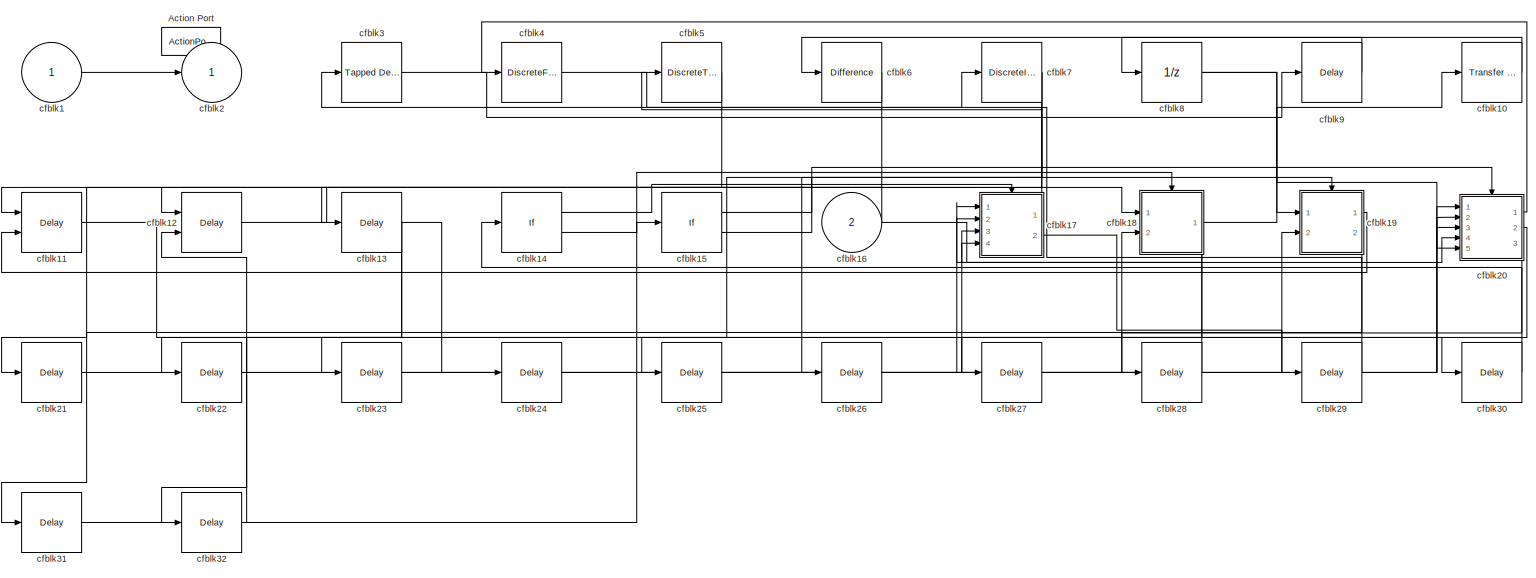
[diagram: cfblk145 - part 1/1, most of the canvas]
BLOCK [SubSystem] cfblk145
  Ports = [2, 1, 0, 0, 0, 0, 0, 1]
  RequestExecContextInheritance = off
  TreatAsAtomicUnit = on
  Variant = off
BLOCK [ActionPort] cfblk145/Action Port
  ActionType = then
BLOCK [Inport] cfblk145/cfblk1
  IconDisplay = Port number
BLOCK [Reference] cfblk145/cfblk10  REF=simulink/Discrete/Transfer Fcn
First Order
  Ports = [1, 1]
  SourceBlock = simulink/Discrete/Transfer Fcn\nFirst Order
  SourceProductBaseCode = SL
  SourceProductName = Simulink
  SourceType = First Order Transfer Fcn
BLOCK [Delay] cfblk145/cfblk11
  DelayLengthSource = Input port
  InputPortMap = u0,p1
  Ports = [2, 1]
BLOCK [Delay] cfblk145/cfblk12
  InputPortMap = u0,e6
  Ports = [2, 1]
  ShowEnablePort = on
BLOCK [Delay] cfblk145/cfblk13
  InputPortMap = u0
  Ports = [1, 1]
BLOCK [If] cfblk145/cfblk14
  Ports = [1, 2]
  SampleTime = 1
BLOCK [If] cfblk145/cfblk15
  Ports = [1, 2]
  SampleTime = 1
BLOCK [Inport] cfblk145/cfblk16
  IconDisplay = Port number
  Port = 2
BLOCK [SubSystem] cfblk145/cfblk17
  Ports = [4, 2, 0, 0, 0, 0, 0, 1]
  RequestExecContextInheritance = off
  TreatAsAtomicUnit = on
  Variant = off
BLOCK [ActionPort] cfblk145/cfblk17/Action Port
  ActionType = then
BLOCK [Inport] cfblk145/cfblk17/cfblk1
  IconDisplay = Port number
BLOCK [DiscreteTransferFcn] cfblk145/cfblk17/cfblk10
  InputPortMap = u0
  Ports = [1, 1]
BLOCK [Delay] cfblk145/cfblk17/cfblk11
  DelayLengthSource = Input port
  InputPortMap = u0,p1
  Ports = [2, 1]
BLOCK [Reference] cfblk145/cfblk17/cfblk12  REF=simulink/Discrete/Transfer Fcn
Lead or Lag
  Ports = [1, 1]
  SourceBlock = simulink/Discrete/Transfer Fcn\nLead or Lag
  SourceProductBaseCode = SL
  SourceProductName = Simulink
  SourceType = Lead or Lag Compensator
BLOCK [Delay] cfblk145/cfblk17/cfblk13
  DelayLengthSource = Input port
  InputPortMap = u0,p1
  Ports = [2, 1]
BLOCK [Inport] cfblk145/cfblk17/cfblk14
  IconDisplay = Port number
  Port = 2
BLOCK [Inport] cfblk145/cfblk17/cfblk15
  IconDisplay = Port number
  Port = 3
BLOCK [Inport] cfblk145/cfblk17/cfblk16
  IconDisplay = Port number
  Port = 4
BLOCK [Outport] cfblk145/cfblk17/cfblk17
  IconDisplay = Port number
  Port = 2
BLOCK [Delay] cfblk145/cfblk17/cfblk18
  InputPortMap = u0
  Ports = [1, 1]
BLOCK [DataTypeConversion] cfblk145/cfblk17/cfblk19
  RndMeth = Floor
  SaturateOnIntegerOverflow = off
BLOCK [Outport] cfblk145/cfblk17/cfblk2
  IconDisplay = Port number
BLOCK [DataTypeConversion] cfblk145/cfblk17/cfblk20
  RndMeth = Floor
  SaturateOnIntegerOverflow = off
BLOCK [DataTypeConversion] cfblk145/cfblk17/cfblk21
  RndMeth = Floor
  SaturateOnIntegerOverflow = off
BLOCK [DataTypeConversion] cfblk145/cfblk17/cfblk22
  RndMeth = Floor
  SaturateOnIntegerOverflow = off
BLOCK [Delay] cfblk145/cfblk17/cfblk3
  DelayLengthSource = Input port
  InputPortMap = u0,p1
  Ports = [2, 1]
BLOCK [DiscreteIntegrator] cfblk145/cfblk17/cfblk4
  ICPrevOutput = DiscIntNeverNeededParam
  ICPrevScaledInput = DiscIntNeverNeededParam
  InitialConditionSetting = State (most efficient)
  Ports = [1, 1]
  SampleTime = -1
BLOCK [Delay] cfblk145/cfblk17/cfblk5
  DelayLengthSource = Input port
  InputPortMap = u0,p1
  Ports = [2, 1]
BLOCK [DiscreteTransferFcn] cfblk145/cfblk17/cfblk6
  InputPortMap = u0
  Ports = [1, 1]
BLOCK [Reference] cfblk145/cfblk17/cfblk7  REF=simulink/Continuous/PID Controller (2DOF)
  Ports = [2, 1]
  SourceBlock = simulink/Continuous/PID Controller (2DOF)
  SourceProductBaseCode = SL
  SourceProductName = Simulink
  SourceType = PID 2dof
BLOCK [DiscreteFir] cfblk145/cfblk17/cfblk8
  InputPortMap = u0
  OutputPortMap = o0
  Ports = [1, 1]
BLOCK [Reference] cfblk145/cfblk17/cfblk9  REF=simulink/Discrete/Transfer Fcn
Real Zero
  Ports = [1, 1]
  SourceBlock = simulink/Discrete/Transfer Fcn\nReal Zero
  SourceProductBaseCode = SL
  SourceProductName = Simulink
  SourceType = Transfer Fcn Real Zero
BLOCK [SubSystem] cfblk145/cfblk18
  Ports = [2, 1, 0, 0, 0, 0, 0, 1]
  RequestExecContextInheritance = off
  TreatAsAtomicUnit = on
  Variant = off
BLOCK [ActionPort] cfblk145/cfblk18/Action Port
  ActionType = else
BLOCK [Inport] cfblk145/cfblk18/cfblk1
  IconDisplay = Port number
BLOCK [DiscreteStateSpace] cfblk145/cfblk18/cfblk10
  SampleTime = -1
BLOCK [DiscreteIntegrator] cfblk145/cfblk18/cfblk11
  ICPrevOutput = DiscIntNeverNeededParam
  ICPrevScaledInput = DiscIntNeverNeededParam
  InitialConditionSetting = State (most efficient)
  Ports = [1, 1]
  SampleTime = -1
BLOCK [Delay] cfblk145/cfblk18/cfblk12
  DelayLengthSource = Input port
  InputPortMap = u0,p1
  Ports = [2, 1]
BLOCK [Reference] cfblk145/cfblk18/cfblk13  REF=simulink/Continuous/PID Controller
  Ports = [1, 1]
  SourceBlock = simulink/Continuous/PID Controller
  SourceProductBaseCode = SL
  SourceProductName = Simulink
  SourceType = PID 1dof
BLOCK [Reference] cfblk145/cfblk18/cfblk14  REF=simulink/Discrete/Difference
  Ports = [1, 1]
  SourceBlock = simulink/Discrete/Difference
  SourceProductBaseCode = SL
  SourceProductName = Simulink
  SourceType = Difference
BLOCK [Inport] cfblk145/cfblk18/cfblk15
  IconDisplay = Port number
  Port = 2
BLOCK [Delay] cfblk145/cfblk18/cfblk16
  InputPortMap = u0
  Ports = [1, 1]
BLOCK [Delay] cfblk145/cfblk18/cfblk17
  InputPortMap = u0
  Ports = [1, 1]
BLOCK [Delay] cfblk145/cfblk18/cfblk18
  InputPortMap = u0
  Ports = [1, 1]
BLOCK [Outport] cfblk145/cfblk18/cfblk2
  IconDisplay = Port number
BLOCK [DiscreteFilter] cfblk145/cfblk18/cfblk3
  InputPortMap = u0
  Ports = [1, 1]
BLOCK [Delay] cfblk145/cfblk18/cfblk4
  InputPortMap = u0,e6
  Ports = [2, 1]
  ShowEnablePort = on
BLOCK [DiscreteTransferFcn] cfblk145/cfblk18/cfblk5
  InputPortMap = u0
  Ports = [1, 1]
BLOCK [Reference] cfblk145/cfblk18/cfblk6  REF=simulink/Discrete/Transfer Fcn
Lead or Lag
  Ports = [1, 1]
  SourceBlock = simulink/Discrete/Transfer Fcn\nLead or Lag
  SourceProductBaseCode = SL
  SourceProductName = Simulink
  SourceType = Lead or Lag Compensator
BLOCK [Reference] cfblk145/cfblk18/cfblk7  REF=simulink/Discrete/Transfer Fcn
Real Zero
  Ports = [1, 1]
  SourceBlock = simulink/Discrete/Transfer Fcn\nReal Zero
  SourceProductBaseCode = SL
  SourceProductName = Simulink
  SourceType = Transfer Fcn Real Zero
BLOCK [Delay] cfblk145/cfblk18/cfblk8
  DelayLengthSource = Input port
  InputPortMap = u0,p1
  Ports = [2, 1]
BLOCK [DiscreteIntegrator] cfblk145/cfblk18/cfblk9
  ICPrevOutput = DiscIntNeverNeededParam
  ICPrevScaledInput = DiscIntNeverNeededParam
  InitialConditionSetting = State (most efficient)
  Ports = [1, 1]
  SampleTime = -1
BLOCK [SubSystem] cfblk145/cfblk19
  Ports = [2, 2, 0, 0, 0, 0, 0, 1]
  RequestExecContextInheritance = off
  TreatAsAtomicUnit = on
  Variant = off
BLOCK [ActionPort] cfblk145/cfblk19/Action Port
  ActionType = then
BLOCK [Inport] cfblk145/cfblk19/cfblk1
  IconDisplay = Port number
BLOCK [DiscreteIntegrator] cfblk145/cfblk19/cfblk10
  ICPrevOutput = DiscIntNeverNeededParam
  ICPrevScaledInput = DiscIntNeverNeededParam
  InitialConditionSetting = State (most efficient)
  Ports = [1, 1]
  SampleTime = -1
BLOCK [Inport] cfblk145/cfblk19/cfblk11
  IconDisplay = Port number
  Port = 2
BLOCK [Outport] cfblk145/cfblk19/cfblk12
  IconDisplay = Port number
  Port = 2
BLOCK [Outport] cfblk145/cfblk19/cfblk2
  IconDisplay = Port number
BLOCK [UnitDelay] cfblk145/cfblk19/cfblk3
  InputProcessing = Elements as channels (sample based)
  SampleTime = -1
BLOCK [Reference] cfblk145/cfblk19/cfblk4  REF=simulink/Discrete/Difference
  Ports = [1, 1]
  SourceBlock = simulink/Discrete/Difference
  SourceProductBaseCode = SL
  SourceProductName = Simulink
  SourceType = Difference
BLOCK [Reference] cfblk145/cfblk19/cfblk5  REF=simulink/Discrete/Tapped Delay
  Ports = [1, 1]
  SourceBlock = simulink/Discrete/Tapped Delay
  SourceProductBaseCode = SL
  SourceProductName = Simulink
  SourceType = Tapped Delay Line
BLOCK [Reference] cfblk145/cfblk19/cfblk6  REF=simulink/Discrete/Transfer Fcn
Real Zero
  Ports = [1, 1]
  SourceBlock = simulink/Discrete/Transfer Fcn\nReal Zero
  SourceProductBaseCode = SL
  SourceProductName = Simulink
  SourceType = Transfer Fcn Real Zero
BLOCK [Reference] cfblk145/cfblk19/cfblk7  REF=simulink/Discrete/Tapped Delay
  Ports = [1, 1]
  SourceBlock = simulink/Discrete/Tapped Delay
  SourceProductBaseCode = SL
  SourceProductName = Simulink
  SourceType = Tapped Delay Line
BLOCK [DiscreteStateSpace] cfblk145/cfblk19/cfblk8
  SampleTime = -1
BLOCK [Reference] cfblk145/cfblk19/cfblk9  REF=simulink/Continuous/PID Controller
  Ports = [1, 1]
  SourceBlock = simulink/Continuous/PID Controller
  SourceProductBaseCode = SL
  SourceProductName = Simulink
  SourceType = PID 1dof
BLOCK [Outport] cfblk145/cfblk2
  IconDisplay = Port number
BLOCK [SubSystem] cfblk145/cfblk20
  Ports = [5, 3, 0, 0, 0, 0, 0, 1]
  RequestExecContextInheritance = off
  TreatAsAtomicUnit = on
  Variant = off
BLOCK [ActionPort] cfblk145/cfblk20/Action Port
  ActionType = else
BLOCK [Inport] cfblk145/cfblk20/cfblk1
  IconDisplay = Port number
BLOCK [Inport] cfblk145/cfblk20/cfblk10
  IconDisplay = Port number
  Port = 2
BLOCK [Inport] cfblk145/cfblk20/cfblk11
  IconDisplay = Port number
  Port = 3
BLOCK [Inport] cfblk145/cfblk20/cfblk12
  IconDisplay = Port number
  Port = 4
BLOCK [Inport] cfblk145/cfblk20/cfblk13
  IconDisplay = Port number
  Port = 5
BLOCK [Outport] cfblk145/cfblk20/cfblk14
  IconDisplay = Port number
  Port = 2
BLOCK [Outport] cfblk145/cfblk20/cfblk15
  IconDisplay = Port number
  Port = 3
BLOCK [Outport] cfblk145/cfblk20/cfblk2
  IconDisplay = Port number
BLOCK [Reference] cfblk145/cfblk20/cfblk3  REF=simulink/Discrete/Difference
  Ports = [1, 1]
  SourceBlock = simulink/Discrete/Difference
  SourceProductBaseCode = SL
  SourceProductName = Simulink
  SourceType = Difference
BLOCK [DiscreteFir] cfblk145/cfblk20/cfblk4
  InputPortMap = u0
  OutputPortMap = o0
  Ports = [1, 1]
BLOCK [Delay] cfblk145/cfblk20/cfblk5
  InputPortMap = u0
  Ports = [1, 1]
BLOCK [Delay] cfblk145/cfblk20/cfblk6
  InputPortMap = u0
  Ports = [1, 1]
BLOCK [Delay] cfblk145/cfblk20/cfblk7
  DelayLengthSource = Input port
  InputPortMap = u0,p1
  Ports = [2, 1]
BLOCK [Delay] cfblk145/cfblk20/cfblk8
  InputPortMap = u0,e6
  Ports = [2, 1]
  ShowEnablePort = on
BLOCK [Reference] cfblk145/cfblk20/cfblk9  REF=simulink/Discrete/Transfer Fcn
Lead or Lag
  Ports = [1, 1]
  SourceBlock = simulink/Discrete/Transfer Fcn\nLead or Lag
  SourceProductBaseCode = SL
  SourceProductName = Simulink
  SourceType = Lead or Lag Compensator
BLOCK [Delay] cfblk145/cfblk21
  InputPortMap = u0
  Ports = [1, 1]
BLOCK [Delay] cfblk145/cfblk22
  InputPortMap = u0
  Ports = [1, 1]
BLOCK [Delay] cfblk145/cfblk23
  InputPortMap = u0
  Ports = [1, 1]
BLOCK [Delay] cfblk145/cfblk24
  InputPortMap = u0
  Ports = [1, 1]
BLOCK [Delay] cfblk145/cfblk25
  InputPortMap = u0
  Ports = [1, 1]
BLOCK [Delay] cfblk145/cfblk26
  InputPortMap = u0
  Ports = [1, 1]
BLOCK [Delay] cfblk145/cfblk27
  InputPortMap = u0
  Ports = [1, 1]
BLOCK [Delay] cfblk145/cfblk28
  InputPortMap = u0
  Ports = [1, 1]
BLOCK [Delay] cfblk145/cfblk29
  InputPortMap = u0
  Ports = [1, 1]
BLOCK [Reference] cfblk145/cfblk3  REF=simulink/Discrete/Tapped Delay
  Ports = [1, 1]
  SourceBlock = simulink/Discrete/Tapped Delay
  SourceProductBaseCode = SL
  SourceProductName = Simulink
  SourceType = Tapped Delay Line
BLOCK [Delay] cfblk145/cfblk30
  InputPortMap = u0
  Ports = [1, 1]
BLOCK [Delay] cfblk145/cfblk31
  InputPortMap = u0
  Ports = [1, 1]
BLOCK [Delay] cfblk145/cfblk32
  InputPortMap = u0
  Ports = [1, 1]
BLOCK [DiscreteFir] cfblk145/cfblk4
  InputPortMap = u0
  OutputPortMap = o0
  Ports = [1, 1]
BLOCK [DiscreteTransferFcn] cfblk145/cfblk5
  InputPortMap = u0
  Ports = [1, 1]
BLOCK [Reference] cfblk145/cfblk6  REF=simulink/Discrete/Difference
  Ports = [1, 1]
  SourceBlock = simulink/Discrete/Difference
  SourceProductBaseCode = SL
  SourceProductName = Simulink
  SourceType = Difference
BLOCK [DiscreteIntegrator] cfblk145/cfblk7
  ICPrevOutput = DiscIntNeverNeededParam
  ICPrevScaledInput = DiscIntNeverNeededParam
  InitialConditionSetting = State (most efficient)
  Ports = [1, 1]
  SampleTime = -1
BLOCK [UnitDelay] cfblk145/cfblk8
  InputProcessing = Elements as channels (sample based)
  SampleTime = -1
BLOCK [Delay] cfblk145/cfblk9
  InputPortMap = u0
  Ports = [1, 1]
BLOCK [SubSystem] cfblk146
  Ports = [2, 3, 0, 0, 0, 0, 0, 1]
  RequestExecContextInheritance = off
  TreatAsAtomicUnit = on
  Variant = off
BLOCK [ActionPort] cfblk146/Action Port
  ActionType = else
BLOCK [Inport] cfblk146/cfblk1
  IconDisplay = Port number
BLOCK [Inport] cfblk146/cfblk10
  IconDisplay = Port number
  Port = 2
BLOCK [Outport] cfblk146/cfblk11
  IconDisplay = Port number
  Port = 2
BLOCK [Outport] cfblk146/cfblk12
  IconDisplay = Port number
  Port = 3
BLOCK [Outport] cfblk146/cfblk2
  IconDisplay = Port number
BLOCK [UnitDelay] cfblk146/cfblk3
  InputProcessing = Elements as channels (sample based)
  SampleTime = -1
BLOCK [DiscreteFilter] cfblk146/cfblk4
  InputPortMap = u0
  Ports = [1, 1]
BLOCK [DiscreteZeroPole] cfblk146/cfblk5
  Gain = 1
  Poles = [0 0.5]
  SampleTime = -1
BLOCK [Reference] cfblk146/cfblk6  REF=simulink/Discrete/Difference
  Ports = [1, 1]
  SourceBlock = simulink/Discrete/Difference
  SourceProductBaseCode = SL
  SourceProductName = Simulink
  SourceType = Difference
BLOCK [Reference] cfblk146/cfblk7  REF=simulink/Discrete/Difference
  Ports = [1, 1]
  SourceBlock = simulink/Discrete/Difference
  SourceProductBaseCode = SL
  SourceProductName = Simulink
  SourceType = Difference
BLOCK [DiscreteFir] cfblk146/cfblk8
  InputPortMap = u0
  OutputPortMap = o0
  Ports = [1, 1]
BLOCK [Reference] cfblk146/cfblk9  REF=simulink/Continuous/PID Controller (2DOF)
  Ports = [2, 1]
  SourceBlock = simulink/Continuous/PID Controller (2DOF)
  SourceProductBaseCode = SL
  SourceProductName = Simulink
  SourceType = PID 2dof
BLOCK [SubSystem] cfblk147
  Ports = [3, 2, 0, 0, 0, 0, 0, 1]
  RequestExecContextInheritance = off
  TreatAsAtomicUnit = on
  Variant = off
BLOCK [ActionPort] cfblk147/Action Port
  ActionType = then
BLOCK [Inport] cfblk147/cfblk1
  IconDisplay = Port number
BLOCK [Inport] cfblk147/cfblk10
  IconDisplay = Port number
  Port = 2
BLOCK [Inport] cfblk147/cfblk11
  IconDisplay = Port number
  Port = 3
BLOCK [Outport] cfblk147/cfblk12
  IconDisplay = Port number
  Port = 2
BLOCK [Delay] cfblk147/cfblk13
  InputPortMap = u0
  Ports = [1, 1]
BLOCK [Outport] cfblk147/cfblk2
  IconDisplay = Port number
BLOCK [DiscreteZeroPole] cfblk147/cfblk3
  Gain = 1
  Poles = [0 0.5]
  SampleTime = -1
BLOCK [Delay] cfblk147/cfblk4
  DelayLengthSource = Input port
  InputPortMap = u0,p1
  Ports = [2, 1]
BLOCK [DiscreteFilter] cfblk147/cfblk5
  InputPortMap = u0
  Ports = [1, 1]
BLOCK [Reference] cfblk147/cfblk6  REF=simulink/Discrete/Transfer Fcn
First Order
  Ports = [1, 1]
  SourceBlock = simulink/Discrete/Transfer Fcn\nFirst Order
  SourceProductBaseCode = SL
  SourceProductName = Simulink
  SourceType = First Order Transfer Fcn
BLOCK [DiscreteFilter] cfblk147/cfblk7
  InputPortMap = u0
  Ports = [1, 1]
BLOCK [DiscreteFilter] cfblk147/cfblk8
  InputPortMap = u0
  Ports = [1, 1]
BLOCK [Reference] cfblk147/cfblk9  REF=simulink/Discrete/Transfer Fcn
Lead or Lag
  Ports = [1, 1]
  SourceBlock = simulink/Discrete/Transfer Fcn\nLead or Lag
  SourceProductBaseCode = SL
  SourceProductName = Simulink
  SourceType = Lead or Lag Compensator
BLOCK [SubSystem] cfblk148
  Ports = [1, 2, 0, 0, 0, 0, 0, 1]
  RequestExecContextInheritance = off
  TreatAsAtomicUnit = on
  Variant = off
BLOCK [ActionPort] cfblk148/Action Port
  ActionType = else
BLOCK [Inport] cfblk148/cfblk1
  IconDisplay = Port number
BLOCK [Reference] cfblk148/cfblk10  REF=simulink/Continuous/PID Controller
  Ports = [1, 1]
  SourceBlock = simulink/Continuous/PID Controller
  SourceProductBaseCode = SL
  SourceProductName = Simulink
  SourceType = PID 1dof
BLOCK [Delay] cfblk148/cfblk11
  DelayLengthSource = Input port
  InputPortMap = u0,p1
  Ports = [2, 1]
BLOCK [Reference] cfblk148/cfblk12  REF=simulink/Continuous/PID Controller
  Ports = [1, 1]
  SourceBlock = simulink/Continuous/PID Controller
  SourceProductBaseCode = SL
  SourceProductName = Simulink
  SourceType = PID 1dof
BLOCK [Reference] cfblk148/cfblk13  REF=simulink/Continuous/PID Controller
  Ports = [1, 1]
  SourceBlock = simulink/Continuous/PID Controller
  SourceProductBaseCode = SL
  SourceProductName = Simulink
  SourceType = PID 1dof
BLOCK [Reference] cfblk148/cfblk14  REF=simulink/Discrete/Tapped Delay
  Ports = [1, 1]
  SourceBlock = simulink/Discrete/Tapped Delay
  SourceProductBaseCode = SL
  SourceProductName = Simulink
  SourceType = Tapped Delay Line
BLOCK [Delay] cfblk148/cfblk15
  DelayLengthSource = Input port
  InputPortMap = u0,p1
  Ports = [2, 1]
BLOCK [If] cfblk148/cfblk16
  Ports = [1, 2]
  SampleTime = 1
BLOCK [Outport] cfblk148/cfblk17
  IconDisplay = Port number
  Port = 2
BLOCK [SubSystem] cfblk148/cfblk18
  Ports = [1, 3, 0, 0, 0, 0, 0, 1]
  RequestExecContextInheritance = off
  TreatAsAtomicUnit = on
  Variant = off
BLOCK [ActionPort] cfblk148/cfblk18/Action Port
  ActionType = then
BLOCK [Inport] cfblk148/cfblk18/cfblk1
  IconDisplay = Port number
BLOCK [Outport] cfblk148/cfblk18/cfblk10
  IconDisplay = Port number
  Port = 3
BLOCK [DataTypeConversion] cfblk148/cfblk18/cfblk11
  RndMeth = Floor
  SaturateOnIntegerOverflow = off
BLOCK [DataTypeConversion] cfblk148/cfblk18/cfblk12
  RndMeth = Floor
  SaturateOnIntegerOverflow = off
BLOCK [DataTypeConversion] cfblk148/cfblk18/cfblk13
  RndMeth = Floor
  SaturateOnIntegerOverflow = off
BLOCK [DataTypeConversion] cfblk148/cfblk18/cfblk14
  RndMeth = Floor
  SaturateOnIntegerOverflow = off
BLOCK [Outport] cfblk148/cfblk18/cfblk2
  IconDisplay = Port number
BLOCK [DiscreteFir] cfblk148/cfblk18/cfblk3
  InputPortMap = u0
  OutputPortMap = o0
  Ports = [1, 1]
BLOCK [Reference] cfblk148/cfblk18/cfblk4  REF=simulink/Continuous/PID Controller
  Ports = [1, 1]
  SourceBlock = simulink/Continuous/PID Controller
  SourceProductBaseCode = SL
  SourceProductName = Simulink
  SourceType = PID 1dof
BLOCK [DiscreteZeroPole] cfblk148/cfblk18/cfblk5
  Gain = 1
  Poles = [0 0.5]
  SampleTime = -1
BLOCK [DiscreteFir] cfblk148/cfblk18/cfblk6
  InputPortMap = u0
  OutputPortMap = o0
  Ports = [1, 1]
BLOCK [DiscreteTransferFcn] cfblk148/cfblk18/cfblk7
  InputPortMap = u0
  Ports = [1, 1]
BLOCK [DiscreteStateSpace] cfblk148/cfblk18/cfblk8
  SampleTime = -1
BLOCK [Outport] cfblk148/cfblk18/cfblk9
  IconDisplay = Port number
  Port = 2
BLOCK [SubSystem] cfblk148/cfblk19
  Ports = [2, 1, 0, 0, 0, 0, 0, 1]
  RequestExecContextInheritance = off
  TreatAsAtomicUnit = on
  Variant = off
BLOCK [ActionPort] cfblk148/cfblk19/Action Port
  ActionType = else
BLOCK [Inport] cfblk148/cfblk19/cfblk1
  IconDisplay = Port number
BLOCK [Reference] cfblk148/cfblk19/cfblk10  REF=simulink/Continuous/PID Controller
  Ports = [1, 1]
  SourceBlock = simulink/Continuous/PID Controller
  SourceProductBaseCode = SL
  SourceProductName = Simulink
  SourceType = PID 1dof
BLOCK [Inport] cfblk148/cfblk19/cfblk11
  IconDisplay = Port number
  Port = 2
BLOCK [Delay] cfblk148/cfblk19/cfblk12
  InputPortMap = u0
  Ports = [1, 1]
BLOCK [Delay] cfblk148/cfblk19/cfblk13
  InputPortMap = u0
  Ports = [1, 1]
BLOCK [Outport] cfblk148/cfblk19/cfblk2
  IconDisplay = Port number
BLOCK [DiscreteStateSpace] cfblk148/cfblk19/cfblk3
  SampleTime = -1
BLOCK [Reference] cfblk148/cfblk19/cfblk4  REF=simulink/Discrete/Transfer Fcn
Lead or Lag
  Ports = [1, 1]
  SourceBlock = simulink/Discrete/Transfer Fcn\nLead or Lag
  SourceProductBaseCode = SL
  SourceProductName = Simulink
  SourceType = Lead or Lag Compensator
BLOCK [Delay] cfblk148/cfblk19/cfblk5
  InputPortMap = u0
  Ports = [1, 1]
BLOCK [Reference] cfblk148/cfblk19/cfblk6  REF=simulink/Discrete/Transfer Fcn
Lead or Lag
  Ports = [1, 1]
  SourceBlock = simulink/Discrete/Transfer Fcn\nLead or Lag
  SourceProductBaseCode = SL
  SourceProductName = Simulink
  SourceType = Lead or Lag Compensator
BLOCK [Reference] cfblk148/cfblk19/cfblk7  REF=simulink/Continuous/PID Controller (2DOF)
  Ports = [2, 1]
  SourceBlock = simulink/Continuous/PID Controller (2DOF)
  SourceProductBaseCode = SL
  SourceProductName = Simulink
  SourceType = PID 2dof
BLOCK [Reference] cfblk148/cfblk19/cfblk8  REF=simulink/Discrete/Tapped Delay
  Ports = [1, 1]
  SourceBlock = simulink/Discrete/Tapped Delay
  SourceProductBaseCode = SL
  SourceProductName = Simulink
  SourceType = Tapped Delay Line
BLOCK [Reference] cfblk148/cfblk19/cfblk9  REF=simulink/Discrete/Transfer Fcn
Real Zero
  Ports = [1, 1]
  SourceBlock = simulink/Discrete/Transfer Fcn\nReal Zero
  SourceProductBaseCode = SL
  SourceProductName = Simulink
  SourceType = Transfer Fcn Real Zero
BLOCK [Outport] cfblk148/cfblk2
  IconDisplay = Port number
BLOCK [Delay] cfblk148/cfblk20
  InputPortMap = u0
  Ports = [1, 1]
BLOCK [Delay] cfblk148/cfblk21
  InputPortMap = u0
  Ports = [1, 1]
BLOCK [Delay] cfblk148/cfblk22
  InputPortMap = u0
  Ports = [1, 1]
BLOCK [Delay] cfblk148/cfblk23
  InputPortMap = u0
  Ports = [1, 1]
BLOCK [Delay] cfblk148/cfblk24
  InputPortMap = u0
  Ports = [1, 1]
BLOCK [DataTypeConversion] cfblk148/cfblk25
  RndMeth = Floor
  SaturateOnIntegerOverflow = off
BLOCK [DataTypeConversion] cfblk148/cfblk26
  RndMeth = Floor
  SaturateOnIntegerOverflow = off
BLOCK [DataTypeConversion] cfblk148/cfblk27
  RndMeth = Floor
  SaturateOnIntegerOverflow = off
BLOCK [DataTypeConversion] cfblk148/cfblk28
  RndMeth = Floor
  SaturateOnIntegerOverflow = off
BLOCK [Delay] cfblk148/cfblk3
  DelayLengthSource = Input port
  InputPortMap = u0,p1
  Ports = [2, 1]
BLOCK [DiscreteZeroPole] cfblk148/cfblk4
  Gain = 1
  Poles = [0 0.5]
  SampleTime = -1
BLOCK [DiscreteIntegrator] cfblk148/cfblk5
  ICPrevOutput = DiscIntNeverNeededParam
  ICPrevScaledInput = DiscIntNeverNeededParam
  InitialConditionSetting = State (most efficient)
  Ports = [1, 1]
  SampleTime = -1
BLOCK [DiscreteFir] cfblk148/cfblk6
  InputPortMap = u0
  OutputPortMap = o0
  Ports = [1, 1]
BLOCK [Reference] cfblk148/cfblk7  REF=simulink/Continuous/PID Controller
  Ports = [1, 1]
  SourceBlock = simulink/Continuous/PID Controller
  SourceProductBaseCode = SL
  SourceProductName = Simulink
  SourceType = PID 1dof
BLOCK [Delay] cfblk148/cfblk8
  InputPortMap = u0
  Ports = [1, 1]
BLOCK [Delay] cfblk148/cfblk9
  DelayLengthSource = Input port
  InputPortMap = u0,p1
  Ports = [2, 1]
BLOCK [Delay] cfblk149
  InputPortMap = u0
  Ports = [1, 1]
  SampleTime = 1
BLOCK [Reference] cfblk15  REF=simulink/Discrete/Difference
  Ports = [1, 1]
  SourceBlock = simulink/Discrete/Difference
  SourceProductBaseCode = SL
  SourceProductName = Simulink
  SourceType = Difference
BLOCK [Delay] cfblk150
  InputPortMap = u0
  Ports = [1, 1]
  SampleTime = 1
BLOCK [Delay] cfblk151
  InputPortMap = u0
  Ports = [1, 1]
  SampleTime = 1
BLOCK [Delay] cfblk152
  InputPortMap = u0
  Ports = [1, 1]
  SampleTime = 1
BLOCK [Delay] cfblk153
  InputPortMap = u0
  Ports = [1, 1]
  SampleTime = 1
BLOCK [Delay] cfblk154
  InputPortMap = u0
  Ports = [1, 1]
  SampleTime = 1
BLOCK [Delay] cfblk155
  InputPortMap = u0
  Ports = [1, 1]
  SampleTime = 1
BLOCK [Delay] cfblk156
  InputPortMap = u0
  Ports = [1, 1]
  SampleTime = 1
BLOCK [Delay] cfblk157
  InputPortMap = u0
  Ports = [1, 1]
  SampleTime = 1
BLOCK [Delay] cfblk158
  InputPortMap = u0
  Ports = [1, 1]
  SampleTime = 1
BLOCK [Delay] cfblk159
  InputPortMap = u0
  Ports = [1, 1]
  SampleTime = 1
BLOCK [Reference] cfblk16  REF=simulink/Continuous/PID Controller
  Ports = [1, 1]
  SourceBlock = simulink/Continuous/PID Controller
  SourceProductBaseCode = SL
  SourceProductName = Simulink
  SourceType = PID 1dof
BLOCK [Delay] cfblk160
  InputPortMap = u0
  Ports = [1, 1]
  SampleTime = 1
BLOCK [Delay] cfblk161
  InputPortMap = u0
  Ports = [1, 1]
  SampleTime = 1
BLOCK [Delay] cfblk162
  InputPortMap = u0
  Ports = [1, 1]
  SampleTime = 1
BLOCK [Delay] cfblk163
  InputPortMap = u0
  Ports = [1, 1]
  SampleTime = 1
BLOCK [DiscreteZeroPole] cfblk17
  Gain = 1
  Poles = [0 0.5]
BLOCK [DiscreteIntegrator] cfblk18
  ICPrevOutput = DiscIntNeverNeededParam
  ICPrevScaledInput = DiscIntNeverNeededParam
  InitialConditionSetting = State (most efficient)
  Ports = [1, 1]
BLOCK [DiscreteFilter] cfblk19
  InputPortMap = u0
  Ports = [1, 1]
  SampleTime = 1
BLOCK [DiscreteIntegrator] cfblk2
  ICPrevOutput = DiscIntNeverNeededParam
  ICPrevScaledInput = DiscIntNeverNeededParam
  InitialConditionSetting = State (most efficient)
  Ports = [1, 1]
BLOCK [Reference] cfblk20  REF=simulink/Discrete/Transfer Fcn
Real Zero
  Ports = [1, 1]
  SourceBlock = simulink/Discrete/Transfer Fcn\nReal Zero
  SourceProductBaseCode = SL
  SourceProductName = Simulink
  SourceType = Transfer Fcn Real Zero
BLOCK [DiscreteZeroPole] cfblk21
  Gain = 1
  Poles = [0 0.5]
BLOCK [DiscreteFilter] cfblk22
  InputPortMap = u0
  Ports = [1, 1]
  SampleTime = 1
BLOCK [DiscreteIntegrator] cfblk23
  ICPrevOutput = DiscIntNeverNeededParam
  ICPrevScaledInput = DiscIntNeverNeededParam
  InitialConditionSetting = State (most efficient)
  Ports = [1, 1]
BLOCK [DiscreteTransferFcn] cfblk24
  InputPortMap = u0
  Ports = [1, 1]
  SampleTime = 1
BLOCK [Reference] cfblk25  REF=simulink/Continuous/PID Controller
  Ports = [1, 1]
  SourceBlock = simulink/Continuous/PID Controller
  SourceProductBaseCode = SL
  SourceProductName = Simulink
  SourceType = PID 1dof
BLOCK [Reference] cfblk26  REF=simulink/Discrete/Transfer Fcn
First Order
  Ports = [1, 1]
  SourceBlock = simulink/Discrete/Transfer Fcn\nFirst Order
  SourceProductBaseCode = SL
  SourceProductName = Simulink
  SourceType = First Order Transfer Fcn
BLOCK [DiscreteTransferFcn] cfblk27
  InputPortMap = u0
  Ports = [1, 1]
  SampleTime = 1
BLOCK [Reference] cfblk28  REF=simulink/Discrete/Transfer Fcn
Real Zero
  Ports = [1, 1]
  SourceBlock = simulink/Discrete/Transfer Fcn\nReal Zero
  SourceProductBaseCode = SL
  SourceProductName = Simulink
  SourceType = Transfer Fcn Real Zero
BLOCK [UnitDelay] cfblk29
  InputProcessing = Elements as channels (sample based)
BLOCK [Delay] cfblk3
  InputPortMap = u0,e6
  Ports = [2, 1]
  SampleTime = 1
  ShowEnablePort = on
BLOCK [Reference] cfblk30  REF=simulink/Discrete/Transfer Fcn
First Order
  Ports = [1, 1]
  SourceBlock = simulink/Discrete/Transfer Fcn\nFirst Order
  SourceProductBaseCode = SL
  SourceProductName = Simulink
  SourceType = First Order Transfer Fcn
BLOCK [DiscreteFilter] cfblk31
  InputPortMap = u0
  Ports = [1, 1]
  SampleTime = 1
BLOCK [DiscreteStateSpace] cfblk32
BLOCK [DiscreteFir] cfblk33
  InputPortMap = u0
  OutputPortMap = o0
  Ports = [1, 1]
  SampleTime = 1
BLOCK [Reference] cfblk34  REF=simulink/Continuous/PID Controller (2DOF)
  Ports = [2, 1]
  SourceBlock = simulink/Continuous/PID Controller (2DOF)
  SourceProductBaseCode = SL
  SourceProductName = Simulink
  SourceType = PID 2dof
BLOCK [DiscreteFilter] cfblk35
  InputPortMap = u0
  Ports = [1, 1]
  SampleTime = 1
BLOCK [Reference] cfblk36  REF=simulink/Continuous/PID Controller (2DOF)
  Ports = [2, 1]
  SourceBlock = simulink/Continuous/PID Controller (2DOF)
  SourceProductBaseCode = SL
  SourceProductName = Simulink
  SourceType = PID 2dof
BLOCK [Reference] cfblk37  REF=simulink/Discrete/Transfer Fcn
First Order
  Ports = [1, 1]
  SourceBlock = simulink/Discrete/Transfer Fcn\nFirst Order
  SourceProductBaseCode = SL
  SourceProductName = Simulink
  SourceType = First Order Transfer Fcn
BLOCK [Delay] cfblk38
  InputPortMap = u0,e6
  Ports = [2, 1]
  SampleTime = 1
  ShowEnablePort = on
BLOCK [UnitDelay] cfblk39
  InputProcessing = Elements as channels (sample based)
BLOCK [Delay] cfblk4
  InputPortMap = u0,e6
  Ports = [2, 1]
  SampleTime = 1
  ShowEnablePort = on
BLOCK [Delay] cfblk40
  InputPortMap = u0,e6
  Ports = [2, 1]
  SampleTime = 1
  ShowEnablePort = on
BLOCK [Reference] cfblk41  REF=simulink/Discrete/Transfer Fcn
First Order
  Ports = [1, 1]
  SourceBlock = simulink/Discrete/Transfer Fcn\nFirst Order
  SourceProductBaseCode = SL
  SourceProductName = Simulink
  SourceType = First Order Transfer Fcn
BLOCK [Reference] cfblk42  REF=simulink/Discrete/Transfer Fcn
Real Zero
  Ports = [1, 1]
  SourceBlock = simulink/Discrete/Transfer Fcn\nReal Zero
  SourceProductBaseCode = SL
  SourceProductName = Simulink
  SourceType = Transfer Fcn Real Zero
BLOCK [Reference] cfblk43  REF=simulink/Continuous/PID Controller
  Ports = [1, 1]
  SourceBlock = simulink/Continuous/PID Controller
  SourceProductBaseCode = SL
  SourceProductName = Simulink
  SourceType = PID 1dof
BLOCK [Delay] cfblk44
  InputPortMap = u0,e6
  Ports = [2, 1]
  SampleTime = 1
  ShowEnablePort = on
BLOCK [Reference] cfblk45  REF=simulink/Continuous/PID Controller (2DOF)
  Ports = [2, 1]
  SourceBlock = simulink/Continuous/PID Controller (2DOF)
  SourceProductBaseCode = SL
  SourceProductName = Simulink
  SourceType = PID 2dof
BLOCK [Reference] cfblk46  REF=simulink/Discrete/Difference
  Ports = [1, 1]
  SourceBlock = simulink/Discrete/Difference
  SourceProductBaseCode = SL
  SourceProductName = Simulink
  SourceType = Difference
BLOCK [DiscreteFir] cfblk47
  InputPortMap = u0
  OutputPortMap = o0
  Ports = [1, 1]
  SampleTime = 1
BLOCK [DiscreteFilter] cfblk48
  InputPortMap = u0
  Ports = [1, 1]
  SampleTime = 1
BLOCK [DiscreteStateSpace] cfblk49
BLOCK [Delay] cfblk5
  InputPortMap = u0
  Ports = [1, 1]
  SampleTime = 1
BLOCK [DiscreteIntegrator] cfblk50
  ICPrevOutput = DiscIntNeverNeededParam
  ICPrevScaledInput = DiscIntNeverNeededParam
  InitialConditionSetting = State (most efficient)
  Ports = [1, 1]
BLOCK [DiscreteFir] cfblk51
  InputPortMap = u0
  OutputPortMap = o0
  Ports = [1, 1]
  SampleTime = 1
BLOCK [Reference] cfblk52  REF=simulink/Discrete/Tapped Delay
  Ports = [1, 1]
  SourceBlock = simulink/Discrete/Tapped Delay
  SourceProductBaseCode = SL
  SourceProductName = Simulink
  SourceType = Tapped Delay Line
BLOCK [DiscreteIntegrator] cfblk53
  ICPrevOutput = DiscIntNeverNeededParam
  ICPrevScaledInput = DiscIntNeverNeededParam
  InitialConditionSetting = State (most efficient)
  Ports = [1, 1]
BLOCK [Scope] cfblk54
  Floating = on
  NumInputPorts = 1
  Ports = []
BLOCK [Scope] cfblk55
  NumInputPorts = 1
  Ports = [1]
BLOCK [ToWorkspace] cfblk56
  FixptAsFi = on
  MaxDataPoints = inf
  Ports = [1]
  SampleTime = -1
  Save2DSignal = 3-D array (concatenate along third dimension)
  SaveFormat = Timeseries
  VariableName = ptxidlv
BLOCK [Scope] cfblk57
  NumInputPorts = 1
  Ports = [1]
BLOCK [Terminator] cfblk58
BLOCK [Outport] cfblk59
  IconDisplay = Port number
BLOCK [Delay] cfblk6
  InputPortMap = u0
  Ports = [1, 1]
  SampleTime = 1
BLOCK [Scope] cfblk60
  NumInputPorts = 1
  Ports = [1]
BLOCK [Terminator] cfblk61
BLOCK [Display] cfblk62
  Decimation = 1
  Ports = [1]
BLOCK [Scope] cfblk63
  NumInputPorts = 1
  Ports = [1]
BLOCK [Outport] cfblk64
  IconDisplay = Port number
  Port = 2
BLOCK [ToWorkspace] cfblk65
  FixptAsFi = on
  MaxDataPoints = inf
  Ports = [1]
  SampleTime = -1
  Save2DSignal = 3-D array (concatenate along third dimension)
  SaveFormat = Timeseries
  VariableName = ihfimtb
BLOCK [Outport] cfblk66
  IconDisplay = Port number
  Port = 3
BLOCK [Terminator] cfblk67
BLOCK [Scope] cfblk68
  NumInputPorts = 1
  Ports = [1]
BLOCK [Scope] cfblk69
  NumInputPorts = 1
  Ports = [1]
BLOCK [Delay] cfblk7
  InputPortMap = u0
  Ports = [1, 1]
  SampleTime = 1
BLOCK [Outport] cfblk70
  IconDisplay = Port number
  Port = 4
BLOCK [Scope] cfblk71
  Floating = on
  NumInputPorts = 1
  Ports = []
BLOCK [Scope] cfblk72
  Floating = on
  NumInputPorts = 1
  Ports = []
BLOCK [Terminator] cfblk73
BLOCK [Display] cfblk74
  Decimation = 1
  Ports = [1]
BLOCK [Display] cfblk75
  Decimation = 1
  Ports = [1]
BLOCK [Terminator] cfblk76
BLOCK [Outport] cfblk77
  IconDisplay = Port number
  Port = 5
BLOCK [Display] cfblk78
  Decimation = 1
  Ports = [1]
BLOCK [Display] cfblk79
  Decimation = 1
  Ports = [1]
BLOCK [DiscreteFilter] cfblk8
  InputPortMap = u0
  Ports = [1, 1]
  SampleTime = 1
BLOCK [Display] cfblk80
  Decimation = 1
  Ports = [1]
BLOCK [RandomNumber] cfblk81
  SampleTime = 0.1
BLOCK [Reference] cfblk82  REF=simulink/Sources/Chirp Signal
  Ports = [0, 1]
  SourceBlock = simulink/Sources/Chirp Signal
  SourceProductBaseCode = SL
  SourceProductName = Simulink
  SourceType = chirp
BLOCK [DiscretePulseGenerator] cfblk83
  Period = 10
  Ports = [0, 1]
  PulseType = Time based
  PulseWidth = 5
BLOCK [Reference] cfblk84  REF=simulink/Sources/Band-Limited
White Noise
  Ports = [0, 1]
  SourceBlock = simulink/Sources/Band-Limited\nWhite Noise
  SourceProductBaseCode = SL
  SourceProductName = Simulink
  SourceType = Band-Limited White Noise.
BLOCK [Reference] cfblk85  REF=simulink/Sources/Counter
Free-Running
  Ports = [0, 1]
  SourceBlock = simulink/Sources/Counter\nFree-Running
  SourceProductBaseCode = SL
  SourceProductName = Simulink
  SourceType = Counter Free-Running
BLOCK [UniformRandomNumber] cfblk86
  SampleTime = 0.1
BLOCK [RandomNumber] cfblk87
  SampleTime = 0.1
BLOCK [Reference] cfblk88  REF=simulink/Sources/Ramp
  Ports = [0, 1]
  SourceBlock = simulink/Sources/Ramp
  SourceProductBaseCode = SL
  SourceProductName = Simulink
  SourceType = Ramp
BLOCK [Reference] cfblk89  REF=simulink/Sources/Counter
Free-Running
  Ports = [0, 1]
  SourceBlock = simulink/Sources/Counter\nFree-Running
  SourceProductBaseCode = SL
  SourceProductName = Simulink
  SourceType = Counter Free-Running
BLOCK [DiscreteTransferFcn] cfblk9
  InputPortMap = u0
  Ports = [1, 1]
  SampleTime = 1
BLOCK [Reference] cfblk90  REF=simulink/Sources/Chirp Signal
  Ports = [0, 1]
  SourceBlock = simulink/Sources/Chirp Signal
  SourceProductBaseCode = SL
  SourceProductName = Simulink
  SourceType = chirp
BLOCK [Clock] cfblk91
BLOCK [Reference] cfblk92  REF=simulink/Sources/Counter
Free-Running
  Ports = [0, 1]
  SourceBlock = simulink/Sources/Counter\nFree-Running
  SourceProductBaseCode = SL
  SourceProductName = Simulink
  SourceType = Counter Free-Running
BLOCK [Reference] cfblk93  REF=simulink/Sources/Counter
Free-Running
  Ports = [0, 1]
  SourceBlock = simulink/Sources/Counter\nFree-Running
  SourceProductBaseCode = SL
  SourceProductName = Simulink
  SourceType = Counter Free-Running
BLOCK [UniformRandomNumber] cfblk94
  SampleTime = 0.1
BLOCK [DiscretePulseGenerator] cfblk95
  Period = 10
  Ports = [0, 1]
  PulseType = Time based
  PulseWidth = 5
BLOCK [Reference] cfblk96  REF=simulink/Sources/Repeating
Sequence
Stair
  Ports = [0, 1]
  SourceBlock = simulink/Sources/Repeating\nSequence\nStair
  SourceProductBaseCode = SL
  SourceProductName = Simulink
  SourceType = Repeating Sequence Stair
BLOCK [Reference] cfblk97  REF=simulink/Sources/Chirp Signal
  Ports = [0, 1]
  SourceBlock = simulink/Sources/Chirp Signal
  SourceProductBaseCode = SL
  SourceProductName = Simulink
  SourceType = chirp
BLOCK [DiscretePulseGenerator] cfblk98
  Period = 10
  Ports = [0, 1]
  PulseType = Time based
  PulseWidth = 5
BLOCK [Reference] cfblk99  REF=simulink/Sources/Repeating
Sequence
Stair
  Ports = [0, 1]
  SourceBlock = simulink/Sources/Repeating\nSequence\nStair
  SourceProductBaseCode = SL
  SourceProductName = Simulink
  SourceType = Repeating Sequence Stair
LINE cfblk100:1 -> cfblk77:1
LINE cfblk101:1 -> cfblk7:1
LINE cfblk102:1 -> cfblk51:1
LINE cfblk103:1 -> cfblk123:1
NET cfblk104:1 -> cfblk112:1, cfblk135:1
LINE cfblk105:1 -> cfblk73:1
NET cfblk106:1 -> cfblk125:2, cfblk76:1
LINE cfblk107:1 -> cfblk80:1
LINE cfblk108:1 -> cfblk130:1
LINE cfblk109:1 -> cfblk9:1
LINE cfblk10:1 -> cfblk141:1
LINE cfblk110:1 -> cfblk123:ifaction
LINE cfblk110:2 -> cfblk124:ifaction
LINE cfblk111:1 -> cfblk125:ifaction
LINE cfblk111:2 -> cfblk126:ifaction
LINE cfblk112:1 -> cfblk127:ifaction
LINE cfblk112:2 -> cfblk128:ifaction
LINE cfblk113:1 -> cfblk129:ifaction
LINE cfblk113:2 -> cfblk130:ifaction
LINE cfblk114:1 -> cfblk131:ifaction
LINE cfblk114:2 -> cfblk132:ifaction
LINE cfblk115:1 -> cfblk133:ifaction
LINE cfblk115:2 -> cfblk134:ifaction
LINE cfblk116:1 -> cfblk135:ifaction
LINE cfblk116:2 -> cfblk136:ifaction
LINE cfblk117:1 -> cfblk137:ifaction
LINE cfblk117:2 -> cfblk138:ifaction
LINE cfblk118:1 -> cfblk139:ifaction
LINE cfblk118:2 -> cfblk140:ifaction
LINE cfblk119:1 -> cfblk141:ifaction
LINE cfblk119:2 -> cfblk142:ifaction
LINE cfblk11:1 -> cfblk53:1
LINE cfblk120:1 -> cfblk143:ifaction
LINE cfblk120:2 -> cfblk144:ifaction
LINE cfblk121:1 -> cfblk145:ifaction
LINE cfblk121:2 -> cfblk146:ifaction
LINE cfblk122:1 -> cfblk147:ifaction
LINE cfblk122:2 -> cfblk148:ifaction
LINE cfblk123/cfblk10:1 -> cfblk123/cfblk4:1
LINE cfblk123/cfblk1:1 -> cfblk123/cfblk9:1
LINE cfblk123/cfblk3:1 -> cfblk123/cfblk5:1
LINE cfblk123/cfblk4:1 -> cfblk123/cfblk8:1
LINE cfblk123/cfblk6:1 -> cfblk123/cfblk7:1
LINE cfblk123/cfblk7:1 -> cfblk123/cfblk3:1
LINE cfblk123/cfblk8:1 -> cfblk123/cfblk6:1
LINE cfblk123/cfblk9:1 -> cfblk123/cfblk2:1
LINE cfblk123:1 -> cfblk74:1
LINE cfblk124/cfblk10:1 -> cfblk124/cfblk14:ifaction
LINE cfblk124/cfblk10:2 -> cfblk124/cfblk15:ifaction
LINE cfblk124/cfblk11:1 -> cfblk124/cfblk16:ifaction
LINE cfblk124/cfblk11:2 -> cfblk124/cfblk17:ifaction
NET cfblk124/cfblk12:1 -> cfblk124/cfblk17:4, cfblk124/cfblk4:1
LINE cfblk124/cfblk13:1 -> cfblk124/cfblk7:2
NET cfblk124/cfblk14/cfblk1:1 -> cfblk124/cfblk14/cfblk3:1, cfblk124/cfblk14/cfblk6:1
LINE cfblk124/cfblk14/cfblk3:1 -> cfblk124/cfblk14/cfblk5:1
LINE cfblk124/cfblk14/cfblk4:1 -> cfblk124/cfblk14/cfblk2:1
LINE cfblk124/cfblk14/cfblk5:1 -> cfblk124/cfblk14/cfblk4:1
LINE cfblk124/cfblk14/cfblk6:1 -> cfblk124/cfblk14/cfblk7:1
LINE cfblk124/cfblk14:1 -> cfblk124/cfblk15:3
LINE cfblk124/cfblk14:2 -> cfblk124/cfblk28:1
LINE cfblk124/cfblk15/cfblk10:1 -> cfblk124/cfblk15/cfblk2:1
LINE cfblk124/cfblk15/cfblk11:1 -> cfblk124/cfblk15/cfblk12:1
LINE cfblk124/cfblk15/cfblk12:1 -> cfblk124/cfblk15/cfblk3:2
LINE cfblk124/cfblk15/cfblk13:1 -> cfblk124/cfblk15/cfblk11:1
LINE cfblk124/cfblk15/cfblk14:1 -> cfblk124/cfblk15/cfblk18:1
LINE cfblk124/cfblk15/cfblk15:1 -> cfblk124/cfblk15/cfblk13:1
LINE cfblk124/cfblk15/cfblk16:1 -> cfblk124/cfblk15/cfblk9:1
LINE cfblk124/cfblk15/cfblk17:1 -> cfblk124/cfblk15/cfblk4:1
LINE cfblk124/cfblk15/cfblk18:1 -> cfblk124/cfblk15/cfblk8:1
NET cfblk124/cfblk15/cfblk1:1 -> cfblk124/cfblk15/cfblk5:1, cfblk124/cfblk15/cfblk6:1
LINE cfblk124/cfblk15/cfblk3:1 -> cfblk124/cfblk15/cfblk10:1
LINE cfblk124/cfblk15/cfblk4:1 -> cfblk124/cfblk15/cfblk7:1
LINE cfblk124/cfblk15/cfblk5:1 -> cfblk124/cfblk15/cfblk3:1
LINE cfblk124/cfblk15/cfblk7:1 -> cfblk124/cfblk15/cfblk17:1
LINE cfblk124/cfblk15/cfblk8:1 -> cfblk124/cfblk15/cfblk14:1
LINE cfblk124/cfblk15/cfblk9:1 -> cfblk124/cfblk15/cfblk7:2
NET cfblk124/cfblk15:1 -> cfblk124/cfblk27:1, cfblk124/cfblk3:1, cfblk124/cfblk5:1
LINE cfblk124/cfblk16/cfblk10:1 -> cfblk124/cfblk16/cfblk8:1
LINE cfblk124/cfblk16/cfblk11:1 -> cfblk124/cfblk16/cfblk7:1
LINE cfblk124/cfblk16/cfblk12:1 -> cfblk124/cfblk16/cfblk3:1
LINE cfblk124/cfblk16/cfblk13:1 -> cfblk124/cfblk16/cfblk10:1
LINE cfblk124/cfblk16/cfblk14:1 -> cfblk124/cfblk16/cfblk4:1
LINE cfblk124/cfblk16/cfblk15:1 -> cfblk124/cfblk16/cfblk4:2
LINE cfblk124/cfblk16/cfblk16:1 -> cfblk124/cfblk16/cfblk5:1
LINE cfblk124/cfblk16/cfblk1:1 -> cfblk124/cfblk16/cfblk2:1
LINE cfblk124/cfblk16/cfblk4:1 -> cfblk124/cfblk16/cfblk9:1
LINE cfblk124/cfblk16/cfblk5:1 -> cfblk124/cfblk16/cfblk6:1
LINE cfblk124/cfblk16/cfblk6:1 -> cfblk124/cfblk16/cfblk16:1
LINE cfblk124/cfblk16/cfblk7:1 -> cfblk124/cfblk16/cfblk15:1
LINE cfblk124/cfblk16/cfblk9:1 -> cfblk124/cfblk16/cfblk7:2
LINE cfblk124/cfblk16:1 -> cfblk124/cfblk6:1
LINE cfblk124/cfblk17/cfblk11:1 -> cfblk124/cfblk17/cfblk9:1
LINE cfblk124/cfblk17/cfblk13:1 -> cfblk124/cfblk17/cfblk5:1
LINE cfblk124/cfblk17/cfblk14:1 -> cfblk124/cfblk17/cfblk10:1
LINE cfblk124/cfblk17/cfblk15:1 -> cfblk124/cfblk17/cfblk8:1
LINE cfblk124/cfblk17/cfblk16:1 -> cfblk124/cfblk17/cfblk4:1
LINE cfblk124/cfblk17/cfblk3:1 -> cfblk124/cfblk17/cfblk2:1
LINE cfblk124/cfblk17/cfblk4:1 -> cfblk124/cfblk17/cfblk11:1
LINE cfblk124/cfblk17/cfblk5:1 -> cfblk124/cfblk17/cfblk3:1
LINE cfblk124/cfblk17/cfblk6:1 -> cfblk124/cfblk17/cfblk7:1
LINE cfblk124/cfblk17/cfblk7:1 -> cfblk124/cfblk17/cfblk16:1
LINE cfblk124/cfblk17/cfblk9:1 -> cfblk124/cfblk17/cfblk6:1
LINE cfblk124/cfblk17:1 -> cfblk124/cfblk19:1
LINE cfblk124/cfblk18:1 -> cfblk124/cfblk17:1
LINE cfblk124/cfblk19:1 -> cfblk124/cfblk15:2
LINE cfblk124/cfblk1:1 -> cfblk124/cfblk11:1
LINE cfblk124/cfblk20:1 -> cfblk124/cfblk16:1
LINE cfblk124/cfblk21:1 -> cfblk124/cfblk17:3
LINE cfblk124/cfblk22:1 -> cfblk124/cfblk17:2
LINE cfblk124/cfblk23:1 -> cfblk124/cfblk10:1
LINE cfblk124/cfblk24:1 -> cfblk124/cfblk15:1
LINE cfblk124/cfblk25:1 -> cfblk124/cfblk16:5
LINE cfblk124/cfblk26:1 -> cfblk124/cfblk17:5
LINE cfblk124/cfblk27:1 -> cfblk124/cfblk16:3
LINE cfblk124/cfblk28:1 -> cfblk124/cfblk16:2
LINE cfblk124/cfblk29:1 -> cfblk124/cfblk16:4
NET cfblk124/cfblk3:1 -> cfblk124/cfblk18:1, cfblk124/cfblk25:1, cfblk124/cfblk26:1, cfblk124/cfblk5:2, cfblk124/cfblk9:1
LINE cfblk124/cfblk4:1 -> cfblk124/cfblk2:1
NET cfblk124/cfblk5:1 -> cfblk124/cfblk23:1, cfblk124/cfblk7:1, cfblk124/cfblk8:1
NET cfblk124/cfblk6:1 -> cfblk124/cfblk14:1, cfblk124/cfblk29:1
LINE cfblk124/cfblk7:1 -> cfblk124/cfblk22:1
LINE cfblk124/cfblk8:1 -> cfblk124/cfblk24:1
NET cfblk124/cfblk9:1 -> cfblk124/cfblk20:1, cfblk124/cfblk21:1
LINE cfblk124:1 -> cfblk61:1
LINE cfblk125/cfblk10:1 -> cfblk125/cfblk2:1
LINE cfblk125/cfblk11/cfblk10:1 -> cfblk125/cfblk11/cfblk16:1
LINE cfblk125/cfblk11/cfblk11:1 -> cfblk125/cfblk11/cfblk6:1
LINE cfblk125/cfblk11/cfblk12:1 -> cfblk125/cfblk11/cfblk7:1
LINE cfblk125/cfblk11/cfblk15:1 -> cfblk125/cfblk11/cfblk3:1
LINE cfblk125/cfblk11/cfblk16:1 -> cfblk125/cfblk11/cfblk6:2
LINE cfblk125/cfblk11/cfblk17:1 -> cfblk125/cfblk11/cfblk10:1
LINE cfblk125/cfblk11/cfblk1:1 -> cfblk125/cfblk11/cfblk4:1
NET cfblk125/cfblk11/cfblk3:1 -> cfblk125/cfblk11/cfblk17:1, cfblk125/cfblk11/cfblk8:1
LINE cfblk125/cfblk11/cfblk4:1 -> cfblk125/cfblk11/cfblk13:1
LINE cfblk125/cfblk11/cfblk5:1 -> cfblk125/cfblk11/cfblk14:1
LINE cfblk125/cfblk11/cfblk6:1 -> cfblk125/cfblk11/cfblk5:1
NET cfblk125/cfblk11/cfblk7:1 -> cfblk125/cfblk11/cfblk11:1, cfblk125/cfblk11/cfblk2:1
LINE cfblk125/cfblk11/cfblk8:1 -> cfblk125/cfblk11/cfblk9:1
LINE cfblk125/cfblk11/cfblk9:1 -> cfblk125/cfblk11/cfblk15:1
LINE cfblk125/cfblk11:1 -> cfblk125/cfblk13:1
LINE cfblk125/cfblk11:2 -> cfblk125/cfblk4:2
LINE cfblk125/cfblk12/cfblk10:1 -> cfblk125/cfblk12/cfblk9:1
LINE cfblk125/cfblk12/cfblk11:1 -> cfblk125/cfblk12/cfblk12:2
NET cfblk125/cfblk12/cfblk12:1 -> cfblk125/cfblk12/cfblk14:1, cfblk125/cfblk12/cfblk15:1
LINE cfblk125/cfblk12/cfblk13:1 -> cfblk125/cfblk12/cfblk12:1
LINE cfblk125/cfblk12/cfblk15:1 -> cfblk125/cfblk12/cfblk3:1
LINE cfblk125/cfblk12/cfblk16:1 -> cfblk125/cfblk12/cfblk4:1
LINE cfblk125/cfblk12/cfblk1:1 -> cfblk125/cfblk12/cfblk2:1
LINE cfblk125/cfblk12/cfblk3:1 -> cfblk125/cfblk12/cfblk8:1
NET cfblk125/cfblk12/cfblk4:1 -> cfblk125/cfblk12/cfblk5:1, cfblk125/cfblk12/cfblk8:2
LINE cfblk125/cfblk12/cfblk5:1 -> cfblk125/cfblk12/cfblk16:1
LINE cfblk125/cfblk12/cfblk6:1 -> cfblk125/cfblk12/cfblk11:1
LINE cfblk125/cfblk12/cfblk7:1 -> cfblk125/cfblk12/cfblk6:1
NET cfblk125/cfblk12/cfblk8:1 -> cfblk125/cfblk12/cfblk10:1, cfblk125/cfblk12/cfblk9:2
NET cfblk125/cfblk12/cfblk9:1 -> cfblk125/cfblk12/cfblk13:1, cfblk125/cfblk12/cfblk7:1
LINE cfblk125/cfblk12:1 -> cfblk125/cfblk11:2
LINE cfblk125/cfblk13:1 -> cfblk125/cfblk8:1
LINE cfblk125/cfblk14:1 -> cfblk125/cfblk4:1
LINE cfblk125/cfblk1:1 -> cfblk125/cfblk7:1
LINE cfblk125/cfblk3:1 -> cfblk125/cfblk11:1
LINE cfblk125/cfblk4:1 -> cfblk125/cfblk5:1
LINE cfblk125/cfblk5:1 -> cfblk125/cfblk14:1
LINE cfblk125/cfblk6:1 -> cfblk125/cfblk3:1
LINE cfblk125/cfblk7:1 -> cfblk125/cfblk12:1
LINE cfblk125/cfblk8:1 -> cfblk125/cfblk11:ifaction
LINE cfblk125/cfblk8:2 -> cfblk125/cfblk12:ifaction
LINE cfblk125/cfblk9:1 -> cfblk125/cfblk6:1
LINE cfblk125:1 -> cfblk62:1
LINE cfblk126/cfblk10:1 -> cfblk126/cfblk12:ifaction
LINE cfblk126/cfblk10:2 -> cfblk126/cfblk13:ifaction
LINE cfblk126/cfblk11:1 -> cfblk126/cfblk14:ifaction
LINE cfblk126/cfblk11:2 -> cfblk126/cfblk15:ifaction
LINE cfblk126/cfblk12/cfblk10:1 -> cfblk126/cfblk12/cfblk3:1
LINE cfblk126/cfblk12/cfblk11:1 -> cfblk126/cfblk12/cfblk7:1
LINE cfblk126/cfblk12/cfblk13:1 -> cfblk126/cfblk12/cfblk4:1
LINE cfblk126/cfblk12/cfblk1:1 -> cfblk126/cfblk12/cfblk9:1
LINE cfblk126/cfblk12/cfblk3:1 -> cfblk126/cfblk12/cfblk6:1
LINE cfblk126/cfblk12/cfblk4:1 -> cfblk126/cfblk12/cfblk14:1
LINE cfblk126/cfblk12/cfblk5:1 -> cfblk126/cfblk12/cfblk2:1
LINE cfblk126/cfblk12/cfblk6:1 -> cfblk126/cfblk12/cfblk8:1
LINE cfblk126/cfblk12/cfblk7:1 -> cfblk126/cfblk12/cfblk15:1
LINE cfblk126/cfblk12/cfblk9:1 -> cfblk126/cfblk12/cfblk5:1
LINE cfblk126/cfblk12:1 -> cfblk126/cfblk4:1
LINE cfblk126/cfblk12:2 -> cfblk126/cfblk13:1
LINE cfblk126/cfblk12:3 -> cfblk126/cfblk2:1
LINE cfblk126/cfblk13/cfblk1:1 -> cfblk126/cfblk13/cfblk5:1
LINE cfblk126/cfblk13/cfblk3:1 -> cfblk126/cfblk13/cfblk6:1
NET cfblk126/cfblk13/cfblk4:1 -> cfblk126/cfblk13/cfblk2:1, cfblk126/cfblk13/cfblk7:1
LINE cfblk126/cfblk13/cfblk5:1 -> cfblk126/cfblk13/cfblk3:1
NET cfblk126/cfblk13/cfblk6:1 -> cfblk126/cfblk13/cfblk4:1, cfblk126/cfblk13/cfblk8:1
LINE cfblk126/cfblk13/cfblk8:1 -> cfblk126/cfblk13/cfblk5:2
LINE cfblk126/cfblk13:1 -> cfblk126/cfblk8:1
NET cfblk126/cfblk13:2 -> cfblk126/cfblk19:1, cfblk126/cfblk6:2
LINE cfblk126/cfblk14/cfblk10:1 -> cfblk126/cfblk14/cfblk12:1
LINE cfblk126/cfblk14/cfblk11:1 -> cfblk126/cfblk14/cfblk22:1
NET cfblk126/cfblk14/cfblk12:1 -> cfblk126/cfblk14/cfblk2:1, cfblk126/cfblk14/cfblk7:1
LINE cfblk126/cfblk14/cfblk13:1 -> cfblk126/cfblk14/cfblk9:1
NET cfblk126/cfblk14/cfblk14:1 -> cfblk126/cfblk14/cfblk13:2, cfblk126/cfblk14/cfblk24:1
LINE cfblk126/cfblk14/cfblk15:1 -> cfblk126/cfblk14/cfblk4:1
NET cfblk126/cfblk14/cfblk16:1 -> cfblk126/cfblk14/cfblk14:1, cfblk126/cfblk14/cfblk21:1
LINE cfblk126/cfblk14/cfblk17:1 -> cfblk126/cfblk14/cfblk23:1
LINE cfblk126/cfblk14/cfblk18:1 -> cfblk126/cfblk14/cfblk16:2
LINE cfblk126/cfblk14/cfblk19:1 -> cfblk126/cfblk14/cfblk10:1
LINE cfblk126/cfblk14/cfblk1:1 -> cfblk126/cfblk14/cfblk16:1
LINE cfblk126/cfblk14/cfblk20:1 -> cfblk126/cfblk14/cfblk8:1
LINE cfblk126/cfblk14/cfblk21:1 -> cfblk126/cfblk14/cfblk8:2
LINE cfblk126/cfblk14/cfblk22:1 -> cfblk126/cfblk14/cfblk3:1
LINE cfblk126/cfblk14/cfblk23:1 -> cfblk126/cfblk14/cfblk11:1
LINE cfblk126/cfblk14/cfblk24:1 -> cfblk126/cfblk14/cfblk11:2
LINE cfblk126/cfblk14/cfblk25:1 -> cfblk126/cfblk14/cfblk18:1
LINE cfblk126/cfblk14/cfblk26:1 -> cfblk126/cfblk14/cfblk5:1
LINE cfblk126/cfblk14/cfblk3:1 -> cfblk126/cfblk14/cfblk6:1
LINE cfblk126/cfblk14/cfblk4:1 -> cfblk126/cfblk14/cfblk13:1
LINE cfblk126/cfblk14/cfblk5:1 -> cfblk126/cfblk14/cfblk25:1
LINE cfblk126/cfblk14/cfblk6:1 -> cfblk126/cfblk14/cfblk15:1
LINE cfblk126/cfblk14/cfblk7:1 -> cfblk126/cfblk14/cfblk26:1
LINE cfblk126/cfblk14/cfblk8:1 -> cfblk126/cfblk14/cfblk19:1
NET cfblk126/cfblk14/cfblk9:1 -> cfblk126/cfblk14/cfblk17:1, cfblk126/cfblk14/cfblk20:1
NET cfblk126/cfblk14:1 -> cfblk126/cfblk10:1, cfblk126/cfblk3:1, cfblk126/cfblk7:1
LINE cfblk126/cfblk15/cfblk10:1 -> cfblk126/cfblk15/cfblk5:1
LINE cfblk126/cfblk15/cfblk1:1 -> cfblk126/cfblk15/cfblk4:1
LINE cfblk126/cfblk15/cfblk3:1 -> cfblk126/cfblk15/cfblk8:1
LINE cfblk126/cfblk15/cfblk4:1 -> cfblk126/cfblk15/cfblk2:1
LINE cfblk126/cfblk15/cfblk5:1 -> cfblk126/cfblk15/cfblk7:1
LINE cfblk126/cfblk15/cfblk6:1 -> cfblk126/cfblk15/cfblk3:1
LINE cfblk126/cfblk15/cfblk7:1 -> cfblk126/cfblk15/cfblk10:1
LINE cfblk126/cfblk15/cfblk9:1 -> cfblk126/cfblk15/cfblk6:1
LINE cfblk126/cfblk15:1 -> cfblk126/cfblk9:1
LINE cfblk126/cfblk16:1 -> cfblk126/cfblk11:1
LINE cfblk126/cfblk17:1 -> cfblk126/cfblk15:1
LINE cfblk126/cfblk18:1 -> cfblk126/cfblk12:3
LINE cfblk126/cfblk19:1 -> cfblk126/cfblk12:4
LINE cfblk126/cfblk1:1 -> cfblk126/cfblk14:1
LINE cfblk126/cfblk20:1 -> cfblk126/cfblk15:2
LINE cfblk126/cfblk3:1 -> cfblk126/cfblk12:2
LINE cfblk126/cfblk4:1 -> cfblk126/cfblk6:1
LINE cfblk126/cfblk5:1 -> cfblk126/cfblk20:1
LINE cfblk126/cfblk6:1 -> cfblk126/cfblk16:1
NET cfblk126/cfblk7:1 -> cfblk126/cfblk12:1, cfblk126/cfblk12:5, cfblk126/cfblk5:1
LINE cfblk126/cfblk8:1 -> cfblk126/cfblk18:1
LINE cfblk126/cfblk9:1 -> cfblk126/cfblk17:1
LINE cfblk126:1 -> cfblk23:1
NET cfblk127/cfblk10:1 -> cfblk127/cfblk18:1, cfblk127/cfblk6:1, cfblk127/cfblk6:2
LINE cfblk127/cfblk11:1 -> cfblk127/cfblk9:1
LINE cfblk127/cfblk12:1 -> cfblk127/cfblk18:ifaction
LINE cfblk127/cfblk12:2 -> cfblk127/cfblk19:ifaction
LINE cfblk127/cfblk18/cfblk1:1 -> cfblk127/cfblk18/cfblk7:1
LINE cfblk127/cfblk18/cfblk3:1 -> cfblk127/cfblk18/cfblk5:1
LINE cfblk127/cfblk18/cfblk4:1 -> cfblk127/cfblk18/cfblk6:1
LINE cfblk127/cfblk18/cfblk5:1 -> cfblk127/cfblk18/cfblk8:1
LINE cfblk127/cfblk18/cfblk6:1 -> cfblk127/cfblk18/cfblk9:1
NET cfblk127/cfblk18/cfblk7:1 -> cfblk127/cfblk18/cfblk2:1, cfblk127/cfblk18/cfblk3:2
LINE cfblk127/cfblk18/cfblk8:1 -> cfblk127/cfblk18/cfblk3:1
LINE cfblk127/cfblk18/cfblk9:1 -> cfblk127/cfblk18/cfblk4:1
NET cfblk127/cfblk18:1 -> cfblk127/cfblk3:1, cfblk127/cfblk4:1
NET cfblk127/cfblk19/cfblk10:1 -> cfblk127/cfblk19/cfblk5:1, cfblk127/cfblk19/cfblk8:2
LINE cfblk127/cfblk19/cfblk11:1 -> cfblk127/cfblk19/cfblk3:2
LINE cfblk127/cfblk19/cfblk1:1 -> cfblk127/cfblk19/cfblk8:1
NET cfblk127/cfblk19/cfblk3:1 -> cfblk127/cfblk19/cfblk4:2, cfblk127/cfblk19/cfblk7:2
LINE cfblk127/cfblk19/cfblk4:1 -> cfblk127/cfblk19/cfblk9:1
LINE cfblk127/cfblk19/cfblk5:1 -> cfblk127/cfblk19/cfblk7:1
LINE cfblk127/cfblk19/cfblk6:1 -> cfblk127/cfblk19/cfblk2:1
NET cfblk127/cfblk19/cfblk7:1 -> cfblk127/cfblk19/cfblk11:1, cfblk127/cfblk19/cfblk4:1
LINE cfblk127/cfblk19/cfblk8:1 -> cfblk127/cfblk19/cfblk3:1
LINE cfblk127/cfblk19/cfblk9:1 -> cfblk127/cfblk19/cfblk6:1
NET cfblk127/cfblk19:1 -> cfblk127/cfblk11:1, cfblk127/cfblk5:1
NET cfblk127/cfblk1:1 -> cfblk127/cfblk10:1, cfblk127/cfblk14:1
LINE cfblk127/cfblk20:1 -> cfblk127/cfblk12:1
LINE cfblk127/cfblk21:1 -> cfblk127/cfblk19:2
LINE cfblk127/cfblk3:1 -> cfblk127/cfblk15:1
LINE cfblk127/cfblk4:1 -> cfblk127/cfblk13:1
LINE cfblk127/cfblk5:1 -> cfblk127/cfblk7:1
NET cfblk127/cfblk6:1 -> cfblk127/cfblk16:1, cfblk127/cfblk19:1, cfblk127/cfblk8:1
NET cfblk127/cfblk7:1 -> cfblk127/cfblk20:1, cfblk127/cfblk21:1
LINE cfblk127/cfblk8:1 -> cfblk127/cfblk2:1
LINE cfblk127/cfblk9:1 -> cfblk127/cfblk17:1
LINE cfblk127:1 -> cfblk11:2
LINE cfblk127:2 -> cfblk123:2
LINE cfblk127:3 -> cfblk10:1
LINE cfblk127:4 -> cfblk56:1
LINE cfblk127:5 -> cfblk136:1
LINE cfblk127:6 -> cfblk68:1
LINE cfblk128/cfblk10:1 -> cfblk128/cfblk2:1
LINE cfblk128/cfblk13:1 -> cfblk128/cfblk7:1
LINE cfblk128/cfblk14:1 -> cfblk128/cfblk4:1
LINE cfblk128/cfblk1:1 -> cfblk128/cfblk3:1
LINE cfblk128/cfblk3:1 -> cfblk128/cfblk8:1
LINE cfblk128/cfblk4:1 -> cfblk128/cfblk13:1
LINE cfblk128/cfblk5:1 -> cfblk128/cfblk11:1
LINE cfblk128/cfblk6:1 -> cfblk128/cfblk14:1
LINE cfblk128/cfblk7:1 -> cfblk128/cfblk12:1
LINE cfblk128/cfblk8:1 -> cfblk128/cfblk6:1
LINE cfblk128/cfblk9:1 -> cfblk128/cfblk5:1
LINE cfblk128:1 -> cfblk149:1
LINE cfblk128:2 -> cfblk38:1
LINE cfblk128:3 -> cfblk124:3
LINE cfblk129/cfblk10:1 -> cfblk129/cfblk4:2
LINE cfblk129/cfblk1:1 -> cfblk129/cfblk7:1
LINE cfblk129/cfblk3:1 -> cfblk129/cfblk4:1
LINE cfblk129/cfblk4:1 -> cfblk129/cfblk6:1
LINE cfblk129/cfblk5:1 -> cfblk129/cfblk10:1
LINE cfblk129/cfblk6:1 -> cfblk129/cfblk5:1
LINE cfblk129/cfblk7:1 -> cfblk129/cfblk9:1
NET cfblk129/cfblk8:1 -> cfblk129/cfblk2:1, cfblk129/cfblk3:1, cfblk129/cfblk5:2
LINE cfblk129:1 -> cfblk130:2
LINE cfblk129:2 -> cfblk117:1
LINE cfblk12:1 -> cfblk8:1
LINE cfblk130/cfblk11/cfblk12:1 -> cfblk130/cfblk11/cfblk5:1
LINE cfblk130/cfblk11/cfblk13:1 -> cfblk130/cfblk11/cfblk3:1
LINE cfblk130/cfblk11/cfblk1:1 -> cfblk130/cfblk11/cfblk4:1
NET cfblk130/cfblk11/cfblk3:1 -> cfblk130/cfblk11/cfblk5:2, cfblk130/cfblk11/cfblk7:1
LINE cfblk130/cfblk11/cfblk4:1 -> cfblk130/cfblk11/cfblk2:1
LINE cfblk130/cfblk11/cfblk5:1 -> cfblk130/cfblk11/cfblk8:1
LINE cfblk130/cfblk11/cfblk6:1 -> cfblk130/cfblk11/cfblk12:1
NET cfblk130/cfblk11/cfblk7:1 -> cfblk130/cfblk11/cfblk10:1, cfblk130/cfblk11/cfblk13:1
LINE cfblk130/cfblk11/cfblk8:1 -> cfblk130/cfblk11/cfblk6:1
LINE cfblk130/cfblk11/cfblk9:1 -> cfblk130/cfblk11/cfblk11:1
LINE cfblk130/cfblk11:1 -> cfblk130/cfblk3:1
LINE cfblk130/cfblk11:2 -> cfblk130/cfblk2:1
NET cfblk130/cfblk11:3 -> cfblk130/cfblk12:4, cfblk130/cfblk9:1
LINE cfblk130/cfblk12/cfblk10:1 -> cfblk130/cfblk12/cfblk11:1
LINE cfblk130/cfblk12/cfblk11:1 -> cfblk130/cfblk12/cfblk8:2
LINE cfblk130/cfblk12/cfblk12:1 -> cfblk130/cfblk12/cfblk10:1
LINE cfblk130/cfblk12/cfblk13:1 -> cfblk130/cfblk12/cfblk17:1
LINE cfblk130/cfblk12/cfblk14:1 -> cfblk130/cfblk12/cfblk8:1
LINE cfblk130/cfblk12/cfblk15:1 -> cfblk130/cfblk12/cfblk7:1
LINE cfblk130/cfblk12/cfblk1:1 -> cfblk130/cfblk12/cfblk3:1
LINE cfblk130/cfblk12/cfblk3:1 -> cfblk130/cfblk12/cfblk6:1
LINE cfblk130/cfblk12/cfblk4:1 -> cfblk130/cfblk12/cfblk5:1
LINE cfblk130/cfblk12/cfblk5:1 -> cfblk130/cfblk12/cfblk9:1
LINE cfblk130/cfblk12/cfblk6:1 -> cfblk130/cfblk12/cfblk4:1
LINE cfblk130/cfblk12/cfblk8:1 -> cfblk130/cfblk12/cfblk2:1
LINE cfblk130/cfblk12/cfblk9:1 -> cfblk130/cfblk12/cfblk12:1
LINE cfblk130/cfblk12:1 -> cfblk130/cfblk10:1
LINE cfblk130/cfblk12:2 -> cfblk130/cfblk14:1
LINE cfblk130/cfblk13:1 -> cfblk130/cfblk12:1
LINE cfblk130/cfblk14:1 -> cfblk130/cfblk11:2
NET cfblk130/cfblk1:1 -> cfblk130/cfblk11:1, cfblk130/cfblk12:3
LINE cfblk130/cfblk3:1 -> cfblk130/cfblk5:1
LINE cfblk130/cfblk4:1 -> cfblk130/cfblk12:2
LINE cfblk130/cfblk5:1 -> cfblk130/cfblk13:1
LINE cfblk130/cfblk6:1 -> cfblk130/cfblk11:ifaction
LINE cfblk130/cfblk6:2 -> cfblk130/cfblk12:ifaction
LINE cfblk130/cfblk7:1 -> cfblk130/cfblk4:1
NET cfblk130/cfblk8:1 -> cfblk130/cfblk12:5, cfblk130/cfblk6:1
LINE cfblk130:1 -> cfblk128:3
LINE cfblk130:2 -> cfblk156:1
LINE cfblk130:3 -> cfblk144:3
LINE cfblk131/cfblk10:1 -> cfblk131/cfblk4:1
LINE cfblk131/cfblk11:1 -> cfblk131/cfblk20:1
LINE cfblk131/cfblk12:1 -> cfblk131/cfblk16:ifaction
LINE cfblk131/cfblk12:2 -> cfblk131/cfblk17:ifaction
LINE cfblk131/cfblk13:1 -> cfblk131/cfblk7:1
LINE cfblk131/cfblk14:1 -> cfblk131/cfblk12:1
LINE cfblk131/cfblk16/cfblk10:1 -> cfblk131/cfblk16/cfblk6:1
LINE cfblk131/cfblk16/cfblk11:1 -> cfblk131/cfblk16/cfblk4:1
LINE cfblk131/cfblk16/cfblk12:1 -> cfblk131/cfblk16/cfblk8:1
LINE cfblk131/cfblk16/cfblk14:1 -> cfblk131/cfblk16/cfblk5:1
LINE cfblk131/cfblk16/cfblk1:1 -> cfblk131/cfblk16/cfblk10:1
LINE cfblk131/cfblk16/cfblk3:1 -> cfblk131/cfblk16/cfblk11:1
LINE cfblk131/cfblk16/cfblk4:1 -> cfblk131/cfblk16/cfblk13:1
LINE cfblk131/cfblk16/cfblk5:1 -> cfblk131/cfblk16/cfblk7:1
LINE cfblk131/cfblk16/cfblk6:1 -> cfblk131/cfblk16/cfblk9:1
LINE cfblk131/cfblk16/cfblk7:1 -> cfblk131/cfblk16/cfblk14:1
LINE cfblk131/cfblk16/cfblk8:1 -> cfblk131/cfblk16/cfblk3:1
NET cfblk131/cfblk16/cfblk9:1 -> cfblk131/cfblk16/cfblk2:1, cfblk131/cfblk16/cfblk8:2
LINE cfblk131/cfblk16:1 -> cfblk131/cfblk9:1
LINE cfblk131/cfblk16:2 -> cfblk131/cfblk10:1
LINE cfblk131/cfblk17/cfblk1:1 -> cfblk131/cfblk17/cfblk5:1
LINE cfblk131/cfblk17/cfblk3:1 -> cfblk131/cfblk17/cfblk7:1
LINE cfblk131/cfblk17/cfblk4:1 -> cfblk131/cfblk17/cfblk2:1
LINE cfblk131/cfblk17/cfblk5:1 -> cfblk131/cfblk17/cfblk3:1
LINE cfblk131/cfblk17/cfblk7:1 -> cfblk131/cfblk17/cfblk6:1
LINE cfblk131/cfblk17/cfblk8:1 -> cfblk131/cfblk17/cfblk4:1
NET cfblk131/cfblk17:1 -> cfblk131/cfblk11:1, cfblk131/cfblk5:1
LINE cfblk131/cfblk18:1 -> cfblk131/cfblk16:1
LINE cfblk131/cfblk19:1 -> cfblk131/cfblk17:1
LINE cfblk131/cfblk1:1 -> cfblk131/cfblk3:1
LINE cfblk131/cfblk20:1 -> cfblk131/cfblk17:2
LINE cfblk131/cfblk3:1 -> cfblk131/cfblk16:2
LINE cfblk131/cfblk4:1 -> cfblk131/cfblk19:1
LINE cfblk131/cfblk5:1 -> cfblk131/cfblk18:1
LINE cfblk131/cfblk6:1 -> cfblk131/cfblk8:1
LINE cfblk131/cfblk7:1 -> cfblk131/cfblk6:2
NET cfblk131/cfblk8:1 -> cfblk131/cfblk15:1, cfblk131/cfblk5:2
NET cfblk131/cfblk9:1 -> cfblk131/cfblk2:1, cfblk131/cfblk6:1
LINE cfblk131:1 -> cfblk24:1
LINE cfblk131:2 -> cfblk142:2
LINE cfblk132/cfblk10:1 -> cfblk132/cfblk8:2
LINE cfblk132/cfblk11:1 -> cfblk132/cfblk2:1
LINE cfblk132/cfblk12:1 -> cfblk132/cfblk7:2
NET cfblk132/cfblk13:1 -> cfblk132/cfblk4:1, cfblk132/cfblk9:1
LINE cfblk132/cfblk14:1 -> cfblk132/cfblk11:1
LINE cfblk132/cfblk15:1 -> cfblk132/cfblk8:1
LINE cfblk132/cfblk1:1 -> cfblk132/cfblk5:1
LINE cfblk132/cfblk3:1 -> cfblk132/cfblk15:1
LINE cfblk132/cfblk4:1 -> cfblk132/cfblk10:1
LINE cfblk132/cfblk5:1 -> cfblk132/cfblk10:2
LINE cfblk132/cfblk6:1 -> cfblk132/cfblk12:1
LINE cfblk132/cfblk7:1 -> cfblk132/cfblk3:1
LINE cfblk132/cfblk8:1 -> cfblk132/cfblk7:1
LINE cfblk132/cfblk9:1 -> cfblk132/cfblk6:1
LINE cfblk132:1 -> cfblk63:1
LINE cfblk133/cfblk10:1 -> cfblk133/cfblk9:1
NET cfblk133/cfblk11:1 -> cfblk133/cfblk3:2, cfblk133/cfblk5:1
NET cfblk133/cfblk12:1 -> cfblk133/cfblk13:1, cfblk133/cfblk19:1
LINE cfblk133/cfblk13:1 -> cfblk133/cfblk3:1
LINE cfblk133/cfblk14:1 -> cfblk133/cfblk10:1
NET cfblk133/cfblk15:1 -> cfblk133/cfblk18:1, cfblk133/cfblk2:1
LINE cfblk133/cfblk16:1 -> cfblk133/cfblk11:1
LINE cfblk133/cfblk18:1 -> cfblk133/cfblk10:2
LINE cfblk133/cfblk19:1 -> cfblk133/cfblk9:2
NET cfblk133/cfblk1:1 -> cfblk133/cfblk4:1, cfblk133/cfblk5:2
LINE cfblk133/cfblk3:1 -> cfblk133/cfblk8:1
LINE cfblk133/cfblk4:1 -> cfblk133/cfblk7:1
LINE cfblk133/cfblk5:1 -> cfblk133/cfblk17:1
LINE cfblk133/cfblk6:1 -> cfblk133/cfblk12:1
LINE cfblk133/cfblk7:1 -> cfblk133/cfblk14:1
LINE cfblk133/cfblk8:1 -> cfblk133/cfblk15:1
LINE cfblk133/cfblk9:1 -> cfblk133/cfblk6:1
LINE cfblk133:1 -> cfblk140:1
LINE cfblk133:2 -> cfblk38:2
LINE cfblk134/cfblk10:1 -> cfblk134/cfblk23:1
NET cfblk134/cfblk11:1 -> cfblk134/cfblk10:1, cfblk134/cfblk7:1
LINE cfblk134/cfblk12:1 -> cfblk134/cfblk18:ifaction
LINE cfblk134/cfblk12:2 -> cfblk134/cfblk19:ifaction
NET cfblk134/cfblk13:1 -> cfblk134/cfblk16:1, cfblk134/cfblk8:2
LINE cfblk134/cfblk18/cfblk10:1 -> cfblk134/cfblk18/cfblk4:1
LINE cfblk134/cfblk18/cfblk11:1 -> cfblk134/cfblk18/cfblk7:1
LINE cfblk134/cfblk18/cfblk12:1 -> cfblk134/cfblk18/cfblk14:1
LINE cfblk134/cfblk18/cfblk13:1 -> cfblk134/cfblk18/cfblk8:1
LINE cfblk134/cfblk18/cfblk1:1 -> cfblk134/cfblk18/cfblk5:1
LINE cfblk134/cfblk18/cfblk3:1 -> cfblk134/cfblk18/cfblk15:1
LINE cfblk134/cfblk18/cfblk4:1 -> cfblk134/cfblk18/cfblk2:1
NET cfblk134/cfblk18/cfblk5:1 -> cfblk134/cfblk18/cfblk12:1, cfblk134/cfblk18/cfblk9:1
LINE cfblk134/cfblk18/cfblk6:1 -> cfblk134/cfblk18/cfblk3:1
LINE cfblk134/cfblk18/cfblk7:1 -> cfblk134/cfblk18/cfblk10:1
LINE cfblk134/cfblk18/cfblk8:1 -> cfblk134/cfblk18/cfblk11:1
LINE cfblk134/cfblk18/cfblk9:1 -> cfblk134/cfblk18/cfblk6:1
LINE cfblk134/cfblk18:1 -> cfblk134/cfblk3:1
LINE cfblk134/cfblk18:2 -> cfblk134/cfblk22:1
NET cfblk134/cfblk18:3 -> cfblk134/cfblk2:1, cfblk134/cfblk9:1
LINE cfblk134/cfblk19/cfblk10:1 -> cfblk134/cfblk19/cfblk3:1
LINE cfblk134/cfblk19/cfblk11:1 -> cfblk134/cfblk19/cfblk6:1
LINE cfblk134/cfblk19/cfblk12:1 -> cfblk134/cfblk19/cfblk14:1
LINE cfblk134/cfblk19/cfblk15:1 -> cfblk134/cfblk19/cfblk5:1
LINE cfblk134/cfblk19/cfblk1:1 -> cfblk134/cfblk19/cfblk7:1
LINE cfblk134/cfblk19/cfblk3:1 -> cfblk134/cfblk19/cfblk4:1
NET cfblk134/cfblk19/cfblk4:1 -> cfblk134/cfblk19/cfblk13:1, cfblk134/cfblk19/cfblk2:1
LINE cfblk134/cfblk19/cfblk5:1 -> cfblk134/cfblk19/cfblk9:1
LINE cfblk134/cfblk19/cfblk6:1 -> cfblk134/cfblk19/cfblk8:1
LINE cfblk134/cfblk19/cfblk7:1 -> cfblk134/cfblk19/cfblk3:2
LINE cfblk134/cfblk19/cfblk8:1 -> cfblk134/cfblk19/cfblk10:1
LINE cfblk134/cfblk19/cfblk9:1 -> cfblk134/cfblk19/cfblk15:1
LINE cfblk134/cfblk19:1 -> cfblk134/cfblk6:1
LINE cfblk134/cfblk19:2 -> cfblk134/cfblk17:1
LINE cfblk134/cfblk19:3 -> cfblk134/cfblk5:1
LINE cfblk134/cfblk1:1 -> cfblk134/cfblk19:1
LINE cfblk134/cfblk20:1 -> cfblk134/cfblk18:1
LINE cfblk134/cfblk21:1 -> cfblk134/cfblk18:2
LINE cfblk134/cfblk22:1 -> cfblk134/cfblk19:2
LINE cfblk134/cfblk23:1 -> cfblk134/cfblk12:1
LINE cfblk134/cfblk24:1 -> cfblk134/cfblk19:3
NET cfblk134/cfblk3:1 -> cfblk134/cfblk14:1, cfblk134/cfblk8:1
LINE cfblk134/cfblk4:1 -> cfblk134/cfblk11:1
LINE cfblk134/cfblk5:1 -> cfblk134/cfblk3:2
NET cfblk134/cfblk6:1 -> cfblk134/cfblk20:1, cfblk134/cfblk24:1
LINE cfblk134/cfblk7:1 -> cfblk134/cfblk15:1
LINE cfblk134/cfblk8:1 -> cfblk134/cfblk21:1
LINE cfblk134/cfblk9:1 -> cfblk134/cfblk4:1
LINE cfblk134:1 -> cfblk43:1
LINE cfblk134:2 -> cfblk34:2
LINE cfblk134:3 -> cfblk45:1
LINE cfblk134:4 -> cfblk67:1
LINE cfblk134:5 -> cfblk45:2
LINE cfblk135/cfblk10:1 -> cfblk135/cfblk6:1
NET cfblk135/cfblk11:1 -> cfblk135/cfblk4:1, cfblk135/cfblk5:1
LINE cfblk135/cfblk12:1 -> cfblk135/cfblk11:1
LINE cfblk135/cfblk13:1 -> cfblk135/cfblk12:1
LINE cfblk135/cfblk15:1 -> cfblk135/cfblk7:2
LINE cfblk135/cfblk16:1 -> cfblk135/cfblk3:2
LINE cfblk135/cfblk1:1 -> cfblk135/cfblk10:1
LINE cfblk135/cfblk3:1 -> cfblk135/cfblk8:1
LINE cfblk135/cfblk4:1 -> cfblk135/cfblk2:1
LINE cfblk135/cfblk5:1 -> cfblk135/cfblk3:1
NET cfblk135/cfblk6:1 -> cfblk135/cfblk11:2, cfblk135/cfblk7:1
LINE cfblk135/cfblk7:1 -> cfblk135/cfblk9:1
NET cfblk135/cfblk8:1 -> cfblk135/cfblk14:1, cfblk135/cfblk16:1
LINE cfblk135/cfblk9:1 -> cfblk135/cfblk15:1
LINE cfblk135:1 -> cfblk124:1
LINE cfblk135:2 -> cfblk110:1
LINE cfblk136/cfblk10:1 -> cfblk136/cfblk4:1
LINE cfblk136/cfblk11:1 -> cfblk136/cfblk9:2
LINE cfblk136/cfblk12:1 -> cfblk136/cfblk3:1
NET cfblk136/cfblk1:1 -> cfblk136/cfblk6:1, cfblk136/cfblk9:1
LINE cfblk136/cfblk3:1 -> cfblk136/cfblk8:1
NET cfblk136/cfblk4:1 -> cfblk136/cfblk11:1, cfblk136/cfblk5:2
LINE cfblk136/cfblk5:1 -> cfblk136/cfblk12:1
LINE cfblk136/cfblk6:1 -> cfblk136/cfblk2:1
LINE cfblk136/cfblk7:1 -> cfblk136/cfblk3:2
NET cfblk136/cfblk8:1 -> cfblk136/cfblk10:1, cfblk136/cfblk5:1
LINE cfblk136/cfblk9:1 -> cfblk136/cfblk7:1
NET cfblk136:1 -> cfblk146:2, cfblk1:1
LINE cfblk137/cfblk10:1 -> cfblk137/cfblk16:1
LINE cfblk137/cfblk15:1 -> cfblk137/cfblk3:1
LINE cfblk137/cfblk16:1 -> cfblk137/cfblk5:1
LINE cfblk137/cfblk17:1 -> cfblk137/cfblk2:1
LINE cfblk137/cfblk18:1 -> cfblk137/cfblk4:1
LINE cfblk137/cfblk1:1 -> cfblk137/cfblk13:1
NET cfblk137/cfblk3:1 -> cfblk137/cfblk14:1, cfblk137/cfblk8:1
LINE cfblk137/cfblk4:1 -> cfblk137/cfblk17:1
LINE cfblk137/cfblk5:1 -> cfblk137/cfblk6:1
NET cfblk137/cfblk6:1 -> cfblk137/cfblk10:1, cfblk137/cfblk9:1
LINE cfblk137/cfblk7:1 -> cfblk137/cfblk12:1
NET cfblk137/cfblk8:1 -> cfblk137/cfblk15:1, cfblk137/cfblk18:1, cfblk137/cfblk7:2, cfblk137/cfblk9:2
NET cfblk137/cfblk9:1 -> cfblk137/cfblk11:1, cfblk137/cfblk7:1
LINE cfblk137:1 -> cfblk55:1
LINE cfblk137:2 -> cfblk35:1
LINE cfblk137:3 -> cfblk159:1
LINE cfblk137:4 -> cfblk160:1
LINE cfblk137:5 -> cfblk161:1
LINE cfblk138/cfblk1:1 -> cfblk138/cfblk2:1
LINE cfblk138/cfblk3:1 -> cfblk138/cfblk5:1
LINE cfblk138/cfblk4:1 -> cfblk138/cfblk3:1
LINE cfblk138/cfblk5:1 -> cfblk138/cfblk7:1
NET cfblk138/cfblk6:1 -> cfblk138/cfblk4:1, cfblk138/cfblk4:2
LINE cfblk138:1 -> cfblk119:1
LINE cfblk138:2 -> cfblk20:1
LINE cfblk139/cfblk1:1 -> cfblk139/cfblk6:1
LINE cfblk139/cfblk3:1 -> cfblk139/cfblk9:1
NET cfblk139/cfblk4:1 -> cfblk139/cfblk3:1, cfblk139/cfblk7:1
LINE cfblk139/cfblk5:1 -> cfblk139/cfblk4:1
LINE cfblk139/cfblk6:1 -> cfblk139/cfblk5:1
LINE cfblk139/cfblk7:1 -> cfblk139/cfblk10:1
LINE cfblk139/cfblk8:1 -> cfblk139/cfblk2:1
LINE cfblk139:1 -> cfblk152:1
LINE cfblk139:2 -> cfblk153:1
LINE cfblk139:3 -> cfblk154:1
LINE cfblk13:1 -> cfblk14:1
NET cfblk140/cfblk1:1 -> cfblk140/cfblk3:1, cfblk140/cfblk4:1
NET cfblk140/cfblk3:1 -> cfblk140/cfblk5:1, cfblk140/cfblk6:2
NET cfblk140/cfblk4:1 -> cfblk140/cfblk5:2, cfblk140/cfblk6:1
NET cfblk140/cfblk5:1 -> cfblk140/cfblk7:1, cfblk140/cfblk8:1
LINE cfblk140/cfblk6:1 -> cfblk140/cfblk2:1
LINE cfblk140:1 -> cfblk131:2
LINE cfblk140:2 -> cfblk132:2
LINE cfblk140:3 -> cfblk33:1
LINE cfblk141/cfblk10:1 -> cfblk141/cfblk7:1
LINE cfblk141/cfblk11:1 -> cfblk141/cfblk5:1
LINE cfblk141/cfblk12:1 -> cfblk141/cfblk2:1
LINE cfblk141/cfblk13:1 -> cfblk141/cfblk12:1
LINE cfblk141/cfblk14:1 -> cfblk141/cfblk6:1
LINE cfblk141/cfblk1:1 -> cfblk141/cfblk9:1
LINE cfblk141/cfblk3:1 -> cfblk141/cfblk8:1
LINE cfblk141/cfblk4:1 -> cfblk141/cfblk10:1
LINE cfblk141/cfblk6:1 -> cfblk141/cfblk4:1
LINE cfblk141/cfblk7:1 -> cfblk141/cfblk11:1
LINE cfblk141/cfblk9:1 -> cfblk141/cfblk3:1
LINE cfblk141:1 -> cfblk36:1
LINE cfblk142/cfblk10:1 -> cfblk142/cfblk21:1
LINE cfblk142/cfblk11:1 -> cfblk142/cfblk16:ifaction
LINE cfblk142/cfblk11:2 -> cfblk142/cfblk17:ifaction
LINE cfblk142/cfblk12:1 -> cfblk142/cfblk18:ifaction
LINE cfblk142/cfblk12:2 -> cfblk142/cfblk19:ifaction
LINE cfblk142/cfblk13:1 -> cfblk142/cfblk16:2
LINE cfblk142/cfblk16/cfblk10:1 -> cfblk142/cfblk16/cfblk9:1
NET cfblk142/cfblk16/cfblk11:1 -> cfblk142/cfblk16/cfblk4:2, cfblk142/cfblk16/cfblk9:2
LINE cfblk142/cfblk16/cfblk12:1 -> cfblk142/cfblk16/cfblk3:2
LINE cfblk142/cfblk16/cfblk1:1 -> cfblk142/cfblk16/cfblk3:1
LINE cfblk142/cfblk16/cfblk3:1 -> cfblk142/cfblk16/cfblk6:1
LINE cfblk142/cfblk16/cfblk4:1 -> cfblk142/cfblk16/cfblk5:2
LINE cfblk142/cfblk16/cfblk5:1 -> cfblk142/cfblk16/cfblk2:1
LINE cfblk142/cfblk16/cfblk6:1 -> cfblk142/cfblk16/cfblk7:1
NET cfblk142/cfblk16/cfblk7:1 -> cfblk142/cfblk16/cfblk10:1, cfblk142/cfblk16/cfblk12:1
LINE cfblk142/cfblk16/cfblk8:1 -> cfblk142/cfblk16/cfblk5:1
NET cfblk142/cfblk16/cfblk9:1 -> cfblk142/cfblk16/cfblk4:1, cfblk142/cfblk16/cfblk8:1
LINE cfblk142/cfblk16:1 -> cfblk142/cfblk20:1
LINE cfblk142/cfblk17/cfblk1:1 -> cfblk142/cfblk17/cfblk7:1
LINE cfblk142/cfblk17/cfblk3:1 -> cfblk142/cfblk17/cfblk4:1
NET cfblk142/cfblk17/cfblk4:1 -> cfblk142/cfblk17/cfblk5:1, cfblk142/cfblk17/cfblk6:1
LINE cfblk142/cfblk17/cfblk5:1 -> cfblk142/cfblk17/cfblk2:1
LINE cfblk142/cfblk17/cfblk6:1 -> cfblk142/cfblk17/cfblk8:1
LINE cfblk142/cfblk17/cfblk8:1 -> cfblk142/cfblk17/cfblk3:1
LINE cfblk142/cfblk17:1 -> cfblk142/cfblk24:1
LINE cfblk142/cfblk17:2 -> cfblk142/cfblk2:1
LINE cfblk142/cfblk18/cfblk10:1 -> cfblk142/cfblk18/cfblk9:1
NET cfblk142/cfblk18/cfblk11:1 -> cfblk142/cfblk18/cfblk12:1, cfblk142/cfblk18/cfblk4:1, cfblk142/cfblk18/cfblk6:1
LINE cfblk142/cfblk18/cfblk12:1 -> cfblk142/cfblk18/cfblk10:1
LINE cfblk142/cfblk18/cfblk13:1 -> cfblk142/cfblk18/cfblk8:1
LINE cfblk142/cfblk18/cfblk16:1 -> cfblk142/cfblk18/cfblk3:1
LINE cfblk142/cfblk18/cfblk17:1 -> cfblk142/cfblk18/cfblk10:2
LINE cfblk142/cfblk18/cfblk18:1 -> cfblk142/cfblk18/cfblk3:2
LINE cfblk142/cfblk18/cfblk1:1 -> cfblk142/cfblk18/cfblk5:1
LINE cfblk142/cfblk18/cfblk3:1 -> cfblk142/cfblk18/cfblk11:1
LINE cfblk142/cfblk18/cfblk4:1 -> cfblk142/cfblk18/cfblk15:1
LINE cfblk142/cfblk18/cfblk5:1 -> cfblk142/cfblk18/cfblk14:1
LINE cfblk142/cfblk18/cfblk6:1 -> cfblk142/cfblk18/cfblk2:1
NET cfblk142/cfblk18/cfblk7:1 -> cfblk142/cfblk18/cfblk13:1, cfblk142/cfblk18/cfblk16:1
LINE cfblk142/cfblk18/cfblk8:1 -> cfblk142/cfblk18/cfblk4:2
NET cfblk142/cfblk18/cfblk9:1 -> cfblk142/cfblk18/cfblk17:1, cfblk142/cfblk18/cfblk18:1, cfblk142/cfblk18/cfblk7:1
LINE cfblk142/cfblk18:1 -> cfblk142/cfblk9:2
LINE cfblk142/cfblk18:2 -> cfblk142/cfblk22:1
LINE cfblk142/cfblk18:3 -> cfblk142/cfblk4:1
LINE cfblk142/cfblk19/cfblk10:1 -> cfblk142/cfblk19/cfblk6:1
LINE cfblk142/cfblk19/cfblk11:1 -> cfblk142/cfblk19/cfblk4:1
LINE cfblk142/cfblk19/cfblk14:1 -> cfblk142/cfblk19/cfblk5:1
LINE cfblk142/cfblk19/cfblk1:1 -> cfblk142/cfblk19/cfblk8:1
LINE cfblk142/cfblk19/cfblk3:1 -> cfblk142/cfblk19/cfblk10:1
NET cfblk142/cfblk19/cfblk4:1 -> cfblk142/cfblk19/cfblk13:1, cfblk142/cfblk19/cfblk2:1
LINE cfblk142/cfblk19/cfblk5:1 -> cfblk142/cfblk19/cfblk9:1
LINE cfblk142/cfblk19/cfblk6:1 -> cfblk142/cfblk19/cfblk7:1
LINE cfblk142/cfblk19/cfblk7:1 -> cfblk142/cfblk19/cfblk14:1
NET cfblk142/cfblk19/cfblk8:1 -> cfblk142/cfblk19/cfblk12:1, cfblk142/cfblk19/cfblk5:2
LINE cfblk142/cfblk19/cfblk9:1 -> cfblk142/cfblk19/cfblk3:1
LINE cfblk142/cfblk19:1 -> cfblk142/cfblk17:1
LINE cfblk142/cfblk19:2 -> cfblk142/cfblk7:1
NET cfblk142/cfblk19:3 -> cfblk142/cfblk15:1, cfblk142/cfblk3:1
LINE cfblk142/cfblk1:1 -> cfblk142/cfblk19:1
LINE cfblk142/cfblk20:1 -> cfblk142/cfblk18:1
LINE cfblk142/cfblk21:1 -> cfblk142/cfblk11:1
LINE cfblk142/cfblk22:1 -> cfblk142/cfblk16:1
LINE cfblk142/cfblk23:1 -> cfblk142/cfblk19:2
LINE cfblk142/cfblk24:1 -> cfblk142/cfblk12:1
LINE cfblk142/cfblk3:1 -> cfblk142/cfblk8:1
LINE cfblk142/cfblk4:1 -> cfblk142/cfblk23:1
LINE cfblk142/cfblk5:1 -> cfblk142/cfblk10:1
LINE cfblk142/cfblk6:1 -> cfblk142/cfblk9:1
LINE cfblk142/cfblk7:1 -> cfblk142/cfblk6:1
LINE cfblk142/cfblk8:1 -> cfblk142/cfblk14:1
LINE cfblk142/cfblk9:1 -> cfblk142/cfblk5:1
LINE cfblk142:1 -> cfblk22:1
LINE cfblk142:2 -> cfblk39:1
LINE cfblk142:3 -> cfblk135:2
LINE cfblk143/cfblk1:1 -> cfblk143/cfblk9:1
LINE cfblk143/cfblk3:1 -> cfblk143/cfblk6:1
LINE cfblk143/cfblk4:1 -> cfblk143/cfblk5:1
LINE cfblk143/cfblk5:1 -> cfblk143/cfblk8:1
LINE cfblk143/cfblk6:1 -> cfblk143/cfblk4:1
LINE cfblk143/cfblk7:1 -> cfblk143/cfblk2:1
LINE cfblk143/cfblk8:1 -> cfblk143/cfblk3:1
LINE cfblk143/cfblk9:1 -> cfblk143/cfblk7:1
LINE cfblk143:1 -> cfblk150:1
LINE cfblk144/cfblk10:1 -> cfblk144/cfblk9:1
LINE cfblk144/cfblk12:1 -> cfblk144/cfblk2:1
LINE cfblk144/cfblk13:1 -> cfblk144/cfblk4:1
LINE cfblk144/cfblk14:1 -> cfblk144/cfblk6:1
LINE cfblk144/cfblk1:1 -> cfblk144/cfblk11:1
LINE cfblk144/cfblk3:1 -> cfblk144/cfblk11:2
LINE cfblk144/cfblk4:1 -> cfblk144/cfblk5:1
LINE cfblk144/cfblk5:1 -> cfblk144/cfblk10:1
LINE cfblk144/cfblk6:1 -> cfblk144/cfblk8:1
LINE cfblk144/cfblk7:1 -> cfblk144/cfblk14:1
LINE cfblk144/cfblk8:1 -> cfblk144/cfblk7:1
LINE cfblk144/cfblk9:1 -> cfblk144/cfblk3:1
LINE cfblk144:1 -> cfblk41:1
LINE cfblk145/cfblk10:1 -> cfblk145/cfblk8:1
LINE cfblk145/cfblk11:1 -> cfblk145/cfblk30:1
LINE cfblk145/cfblk12:1 -> cfblk145/cfblk18:1
NET cfblk145/cfblk13:1 -> cfblk145/cfblk22:1, cfblk145/cfblk23:1, cfblk145/cfblk24:1
LINE cfblk145/cfblk14:1 -> cfblk145/cfblk17:ifaction
LINE cfblk145/cfblk14:2 -> cfblk145/cfblk18:ifaction
LINE cfblk145/cfblk15:1 -> cfblk145/cfblk19:ifaction
LINE cfblk145/cfblk15:2 -> cfblk145/cfblk20:ifaction
NET cfblk145/cfblk16:1 -> cfblk145/cfblk11:1, cfblk145/cfblk20:4
LINE cfblk145/cfblk17/cfblk10:1 -> cfblk145/cfblk17/cfblk11:1
LINE cfblk145/cfblk17/cfblk11:1 -> cfblk145/cfblk17/cfblk17:1
LINE cfblk145/cfblk17/cfblk12:1 -> cfblk145/cfblk17/cfblk21:1
LINE cfblk145/cfblk17/cfblk13:1 -> cfblk145/cfblk17/cfblk3:1
LINE cfblk145/cfblk17/cfblk14:1 -> cfblk145/cfblk17/cfblk5:1
LINE cfblk145/cfblk17/cfblk15:1 -> cfblk145/cfblk17/cfblk7:1
LINE cfblk145/cfblk17/cfblk16:1 -> cfblk145/cfblk17/cfblk10:1
LINE cfblk145/cfblk17/cfblk18:1 -> cfblk145/cfblk17/cfblk6:1
LINE cfblk145/cfblk17/cfblk19:1 -> cfblk145/cfblk17/cfblk13:1
NET cfblk145/cfblk17/cfblk1:1 -> cfblk145/cfblk17/cfblk3:2, cfblk145/cfblk17/cfblk5:2
LINE cfblk145/cfblk17/cfblk20:1 -> cfblk145/cfblk17/cfblk9:1
NET cfblk145/cfblk17/cfblk21:1 -> cfblk145/cfblk17/cfblk11:2, cfblk145/cfblk17/cfblk20:1
LINE cfblk145/cfblk17/cfblk22:1 -> cfblk145/cfblk17/cfblk12:1
LINE cfblk145/cfblk17/cfblk3:1 -> cfblk145/cfblk17/cfblk2:1
LINE cfblk145/cfblk17/cfblk4:1 -> cfblk145/cfblk17/cfblk13:2
LINE cfblk145/cfblk17/cfblk5:1 -> cfblk145/cfblk17/cfblk7:2
LINE cfblk145/cfblk17/cfblk6:1 -> cfblk145/cfblk17/cfblk8:1
LINE cfblk145/cfblk17/cfblk7:1 -> cfblk145/cfblk17/cfblk4:1
NET cfblk145/cfblk17/cfblk8:1 -> cfblk145/cfblk17/cfblk18:1, cfblk145/cfblk17/cfblk22:1
LINE cfblk145/cfblk17/cfblk9:1 -> cfblk145/cfblk17/cfblk19:1
LINE cfblk145/cfblk17:1 -> cfblk145/cfblk5:1
LINE cfblk145/cfblk17:2 -> cfblk145/cfblk29:1
LINE cfblk145/cfblk18/cfblk10:1 -> cfblk145/cfblk18/cfblk16:1
NET cfblk145/cfblk18/cfblk11:1 -> cfblk145/cfblk18/cfblk18:1, cfblk145/cfblk18/cfblk8:1, cfblk145/cfblk18/cfblk8:2
LINE cfblk145/cfblk18/cfblk12:1 -> cfblk145/cfblk18/cfblk10:1
LINE cfblk145/cfblk18/cfblk13:1 -> cfblk145/cfblk18/cfblk12:1
LINE cfblk145/cfblk18/cfblk14:1 -> cfblk145/cfblk18/cfblk3:1
LINE cfblk145/cfblk18/cfblk15:1 -> cfblk145/cfblk18/cfblk14:1
LINE cfblk145/cfblk18/cfblk16:1 -> cfblk145/cfblk18/cfblk4:2
LINE cfblk145/cfblk18/cfblk17:1 -> cfblk145/cfblk18/cfblk6:1
LINE cfblk145/cfblk18/cfblk18:1 -> cfblk145/cfblk18/cfblk7:1
LINE cfblk145/cfblk18/cfblk1:1 -> cfblk145/cfblk18/cfblk5:1
LINE cfblk145/cfblk18/cfblk3:1 -> cfblk145/cfblk18/cfblk2:1
LINE cfblk145/cfblk18/cfblk4:1 -> cfblk145/cfblk18/cfblk12:2
LINE cfblk145/cfblk18/cfblk5:1 -> cfblk145/cfblk18/cfblk4:1
LINE cfblk145/cfblk18/cfblk6:1 -> cfblk145/cfblk18/cfblk9:1
LINE cfblk145/cfblk18/cfblk7:1 -> cfblk145/cfblk18/cfblk11:1
LINE cfblk145/cfblk18/cfblk8:1 -> cfblk145/cfblk18/cfblk13:1
LINE cfblk145/cfblk18/cfblk9:1 -> cfblk145/cfblk18/cfblk17:1
NET cfblk145/cfblk18:1 -> cfblk145/cfblk10:1, cfblk145/cfblk17:3, cfblk145/cfblk32:1
LINE cfblk145/cfblk19/cfblk10:1 -> cfblk145/cfblk19/cfblk3:1
LINE cfblk145/cfblk19/cfblk11:1 -> cfblk145/cfblk19/cfblk8:1
LINE cfblk145/cfblk19/cfblk1:1 -> cfblk145/cfblk19/cfblk12:1
LINE cfblk145/cfblk19/cfblk3:1 -> cfblk145/cfblk19/cfblk7:1
LINE cfblk145/cfblk19/cfblk4:1 -> cfblk145/cfblk19/cfblk6:1
LINE cfblk145/cfblk19/cfblk5:1 -> cfblk145/cfblk19/cfblk10:1
LINE cfblk145/cfblk19/cfblk6:1 -> cfblk145/cfblk19/cfblk5:1
LINE cfblk145/cfblk19/cfblk7:1 -> cfblk145/cfblk19/cfblk9:1
LINE cfblk145/cfblk19/cfblk8:1 -> cfblk145/cfblk19/cfblk4:1
LINE cfblk145/cfblk19/cfblk9:1 -> cfblk145/cfblk19/cfblk2:1
LINE cfblk145/cfblk19:1 -> cfblk145/cfblk11:2
LINE cfblk145/cfblk19:2 -> cfblk145/cfblk31:1
LINE cfblk145/cfblk1:1 -> cfblk145/cfblk2:1
LINE cfblk145/cfblk20/cfblk10:1 -> cfblk145/cfblk20/cfblk7:2
LINE cfblk145/cfblk20/cfblk11:1 -> cfblk145/cfblk20/cfblk6:1
LINE cfblk145/cfblk20/cfblk12:1 -> cfblk145/cfblk20/cfblk2:1
LINE cfblk145/cfblk20/cfblk13:1 -> cfblk145/cfblk20/cfblk8:1
LINE cfblk145/cfblk20/cfblk1:1 -> cfblk145/cfblk20/cfblk15:1
LINE cfblk145/cfblk20/cfblk3:1 -> cfblk145/cfblk20/cfblk14:1
LINE cfblk145/cfblk20/cfblk4:1 -> cfblk145/cfblk20/cfblk7:1
LINE cfblk145/cfblk20/cfblk5:1 -> cfblk145/cfblk20/cfblk3:1
LINE cfblk145/cfblk20/cfblk6:1 -> cfblk145/cfblk20/cfblk4:1
LINE cfblk145/cfblk20/cfblk7:1 -> cfblk145/cfblk20/cfblk8:2
LINE cfblk145/cfblk20/cfblk8:1 -> cfblk145/cfblk20/cfblk9:1
LINE cfblk145/cfblk20/cfblk9:1 -> cfblk145/cfblk20/cfblk5:1
LINE cfblk145/cfblk20:1 -> cfblk145/cfblk4:1
LINE cfblk145/cfblk20:2 -> cfblk145/cfblk27:1
LINE cfblk145/cfblk20:3 -> cfblk145/cfblk28:1
LINE cfblk145/cfblk21:1 -> cfblk145/cfblk20:1
LINE cfblk145/cfblk22:1 -> cfblk145/cfblk20:2
LINE cfblk145/cfblk23:1 -> cfblk145/cfblk20:3
LINE cfblk145/cfblk24:1 -> cfblk145/cfblk17:4
LINE cfblk145/cfblk25:1 -> cfblk145/cfblk19:2
LINE cfblk145/cfblk26:1 -> cfblk145/cfblk17:2
LINE cfblk145/cfblk27:1 -> cfblk145/cfblk18:2
LINE cfblk145/cfblk28:1 -> cfblk145/cfblk17:1
LINE cfblk145/cfblk29:1 -> cfblk145/cfblk3:1
LINE cfblk145/cfblk30:1 -> cfblk145/cfblk14:1
LINE cfblk145/cfblk31:1 -> cfblk145/cfblk15:1
LINE cfblk145/cfblk32:1 -> cfblk145/cfblk12:2
LINE cfblk145/cfblk3:1 -> cfblk145/cfblk9:1
LINE cfblk145/cfblk4:1 -> cfblk145/cfblk7:1
LINE cfblk145/cfblk5:1 -> cfblk145/cfblk21:1
LINE cfblk145/cfblk6:1 -> cfblk145/cfblk12:1
NET cfblk145/cfblk7:1 -> cfblk145/cfblk13:1, cfblk145/cfblk25:1, cfblk145/cfblk26:1
NET cfblk145/cfblk8:1 -> cfblk145/cfblk19:1, cfblk145/cfblk20:5
LINE cfblk145/cfblk9:1 -> cfblk145/cfblk6:1
NET cfblk145:1 -> cfblk132:3, cfblk79:1
LINE cfblk146/cfblk10:1 -> cfblk146/cfblk4:1
LINE cfblk146/cfblk1:1 -> cfblk146/cfblk8:1
LINE cfblk146/cfblk3:1 -> cfblk146/cfblk7:1
NET cfblk146/cfblk4:1 -> cfblk146/cfblk5:1, cfblk146/cfblk9:2
NET cfblk146/cfblk5:1 -> cfblk146/cfblk3:1, cfblk146/cfblk9:1
LINE cfblk146/cfblk6:1 -> cfblk146/cfblk12:1
LINE cfblk146/cfblk7:1 -> cfblk146/cfblk6:1
LINE cfblk146/cfblk8:1 -> cfblk146/cfblk2:1
LINE cfblk146/cfblk9:1 -> cfblk146/cfblk11:1
LINE cfblk146:1 -> cfblk26:1
LINE cfblk146:2 -> cfblk163:1
LINE cfblk146:3 -> cfblk30:1
LINE cfblk147/cfblk10:1 -> cfblk147/cfblk5:1
LINE cfblk147/cfblk11:1 -> cfblk147/cfblk7:1
LINE cfblk147/cfblk13:1 -> cfblk147/cfblk4:1
LINE cfblk147/cfblk1:1 -> cfblk147/cfblk9:1
LINE cfblk147/cfblk3:1 -> cfblk147/cfblk2:1
LINE cfblk147/cfblk4:1 -> cfblk147/cfblk6:1
LINE cfblk147/cfblk5:1 -> cfblk147/cfblk3:1
LINE cfblk147/cfblk6:1 -> cfblk147/cfblk8:1
LINE cfblk147/cfblk7:1 -> cfblk147/cfblk12:1
LINE cfblk147/cfblk8:1 -> cfblk147/cfblk13:1
LINE cfblk147/cfblk9:1 -> cfblk147/cfblk4:2
LINE cfblk147:1 -> cfblk15:1
LINE cfblk147:2 -> cfblk44:1
LINE cfblk148/cfblk10:1 -> cfblk148/cfblk8:1
NET cfblk148/cfblk11:1 -> cfblk148/cfblk24:1, cfblk148/cfblk26:1
LINE cfblk148/cfblk12:1 -> cfblk148/cfblk23:1
LINE cfblk148/cfblk13:1 -> cfblk148/cfblk27:1
LINE cfblk148/cfblk14:1 -> cfblk148/cfblk21:1
LINE cfblk148/cfblk15:1 -> cfblk148/cfblk4:1
LINE cfblk148/cfblk16:1 -> cfblk148/cfblk18:ifaction
LINE cfblk148/cfblk16:2 -> cfblk148/cfblk19:ifaction
LINE cfblk148/cfblk18/cfblk11:1 -> cfblk148/cfblk18/cfblk5:1
LINE cfblk148/cfblk18/cfblk12:1 -> cfblk148/cfblk18/cfblk2:1
LINE cfblk148/cfblk18/cfblk13:1 -> cfblk148/cfblk18/cfblk10:1
LINE cfblk148/cfblk18/cfblk14:1 -> cfblk148/cfblk18/cfblk4:1
LINE cfblk148/cfblk18/cfblk1:1 -> cfblk148/cfblk18/cfblk11:1
NET cfblk148/cfblk18/cfblk3:1 -> cfblk148/cfblk18/cfblk14:1, cfblk148/cfblk18/cfblk8:1
LINE cfblk148/cfblk18/cfblk4:1 -> cfblk148/cfblk18/cfblk13:1
NET cfblk148/cfblk18/cfblk5:1 -> cfblk148/cfblk18/cfblk7:1, cfblk148/cfblk18/cfblk9:1
LINE cfblk148/cfblk18/cfblk6:1 -> cfblk148/cfblk18/cfblk3:1
LINE cfblk148/cfblk18/cfblk7:1 -> cfblk148/cfblk18/cfblk6:1
LINE cfblk148/cfblk18/cfblk8:1 -> cfblk148/cfblk18/cfblk12:1
LINE cfblk148/cfblk18:1 -> cfblk148/cfblk20:1
LINE cfblk148/cfblk18:2 -> cfblk148/cfblk14:1
NET cfblk148/cfblk18:3 -> cfblk148/cfblk11:2, cfblk148/cfblk22:1
LINE cfblk148/cfblk19/cfblk10:1 -> cfblk148/cfblk19/cfblk12:1
LINE cfblk148/cfblk19/cfblk11:1 -> cfblk148/cfblk19/cfblk7:2
LINE cfblk148/cfblk19/cfblk12:1 -> cfblk148/cfblk19/cfblk3:1
LINE cfblk148/cfblk19/cfblk13:1 -> cfblk148/cfblk19/cfblk5:1
LINE cfblk148/cfblk19/cfblk1:1 -> cfblk148/cfblk19/cfblk2:1
LINE cfblk148/cfblk19/cfblk3:1 -> cfblk148/cfblk19/cfblk9:1
LINE cfblk148/cfblk19/cfblk4:1 -> cfblk148/cfblk19/cfblk6:1
LINE cfblk148/cfblk19/cfblk5:1 -> cfblk148/cfblk19/cfblk7:1
LINE cfblk148/cfblk19/cfblk6:1 -> cfblk148/cfblk19/cfblk10:1
LINE cfblk148/cfblk19/cfblk7:1 -> cfblk148/cfblk19/cfblk8:1
LINE cfblk148/cfblk19/cfblk8:1 -> cfblk148/cfblk19/cfblk13:1
LINE cfblk148/cfblk19/cfblk9:1 -> cfblk148/cfblk19/cfblk4:1
LINE cfblk148/cfblk19:1 -> cfblk148/cfblk17:1
LINE cfblk148/cfblk1:1 -> cfblk148/cfblk5:1
LINE cfblk148/cfblk20:1 -> cfblk148/cfblk9:2
LINE cfblk148/cfblk21:1 -> cfblk148/cfblk16:1
LINE cfblk148/cfblk22:1 -> cfblk148/cfblk3:1
LINE cfblk148/cfblk23:1 -> cfblk148/cfblk19:2
LINE cfblk148/cfblk24:1 -> cfblk148/cfblk3:2
LINE cfblk148/cfblk25:1 -> cfblk148/cfblk12:1
LINE cfblk148/cfblk26:1 -> cfblk148/cfblk7:1
NET cfblk148/cfblk27:1 -> cfblk148/cfblk11:1, cfblk148/cfblk15:2, cfblk148/cfblk18:1
LINE cfblk148/cfblk28:1 -> cfblk148/cfblk13:1
LINE cfblk148/cfblk3:1 -> cfblk148/cfblk9:1
NET cfblk148/cfblk4:1 -> cfblk148/cfblk19:1, cfblk148/cfblk6:1
LINE cfblk148/cfblk5:1 -> cfblk148/cfblk10:1
LINE cfblk148/cfblk6:1 -> cfblk148/cfblk2:1
LINE cfblk148/cfblk7:1 -> cfblk148/cfblk25:1
LINE cfblk148/cfblk8:1 -> cfblk148/cfblk15:1
LINE cfblk148/cfblk9:1 -> cfblk148/cfblk28:1
LINE cfblk148:1 -> cfblk27:1
LINE cfblk148:2 -> cfblk144:2
LINE cfblk149:1 -> cfblk40:1
NET cfblk14:1 -> cfblk120:1, cfblk155:1
LINE cfblk150:1 -> cfblk131:1
LINE cfblk151:1 -> cfblk128:2
LINE cfblk152:1 -> cfblk128:1
LINE cfblk153:1 -> cfblk147:3
LINE cfblk154:1 -> cfblk131:3
LINE cfblk155:1 -> cfblk118:1
LINE cfblk156:1 -> cfblk134:2
LINE cfblk157:1 -> cfblk114:1
LINE cfblk158:1 -> cfblk4:2
LINE cfblk159:1 -> cfblk134:1
LINE cfblk15:1 -> cfblk133:1
LINE cfblk160:1 -> cfblk139:2
LINE cfblk161:1 -> cfblk130:3
LINE cfblk162:1 -> cfblk129:1
LINE cfblk163:1 -> cfblk132:1
LINE cfblk16:1 -> cfblk36:2
LINE cfblk17:1 -> cfblk58:1
LINE cfblk18:1 -> cfblk34:1
LINE cfblk19:1 -> cfblk40:2
LINE cfblk1:1 -> cfblk46:1
LINE cfblk20:1 -> cfblk116:1
LINE cfblk21:1 -> cfblk52:1
LINE cfblk22:1 -> cfblk125:1
LINE cfblk23:1 -> cfblk18:1
LINE cfblk24:1 -> cfblk113:1
NET cfblk25:1 -> cfblk148:1, cfblk6:1
LINE cfblk26:1 -> cfblk21:1
LINE cfblk27:1 -> cfblk129:2
LINE cfblk28:1 -> cfblk60:1
LINE cfblk29:1 -> cfblk50:1
LINE cfblk2:1 -> cfblk57:1
LINE cfblk30:1 -> cfblk17:1
LINE cfblk31:1 -> cfblk144:1
LINE cfblk32:1 -> cfblk49:1
LINE cfblk33:1 -> cfblk12:1
LINE cfblk34:1 -> cfblk157:1
LINE cfblk35:1 -> cfblk158:1
NET cfblk36:1 -> cfblk124:2, cfblk125:3
LINE cfblk37:1 -> cfblk147:2
LINE cfblk38:1 -> cfblk13:1
LINE cfblk39:1 -> cfblk145:2
LINE cfblk3:1 -> cfblk142:1
LINE cfblk40:1 -> cfblk147:1
LINE cfblk41:1 -> cfblk151:1
LINE cfblk42:1 -> cfblk66:1
LINE cfblk43:1 -> cfblk42:1
LINE cfblk44:1 -> cfblk64:1
NET cfblk45:1 -> cfblk59:1, cfblk5:1
LINE cfblk46:1 -> cfblk3:1
LINE cfblk47:1 -> cfblk37:1
LINE cfblk48:1 -> cfblk4:1
LINE cfblk49:1 -> cfblk44:2
LINE cfblk4:1 -> cfblk19:1
LINE cfblk50:1 -> cfblk16:1
NET cfblk51:1 -> cfblk11:1, cfblk48:1
LINE cfblk52:1 -> cfblk162:1
LINE cfblk53:1 -> cfblk75:1
LINE cfblk5:1 -> cfblk65:1
LINE cfblk6:1 -> cfblk69:1
LINE cfblk7:1 -> cfblk127:1
LINE cfblk81:1 -> cfblk2:1
LINE cfblk82:1 -> cfblk3:2
NET cfblk83:1 -> cfblk115:1, cfblk146:1
LINE cfblk84:1 -> cfblk78:1
NET cfblk85:1 -> cfblk133:2, cfblk137:1, cfblk143:1
NET cfblk86:1 -> cfblk141:3, cfblk32:1
LINE cfblk87:1 -> cfblk111:1
LINE cfblk88:1 -> cfblk139:1
LINE cfblk89:1 -> cfblk122:1
LINE cfblk8:1 -> cfblk121:1
LINE cfblk90:1 -> cfblk28:1
LINE cfblk91:1 -> cfblk31:1
LINE cfblk92:1 -> cfblk145:1
LINE cfblk93:1 -> cfblk126:1
LINE cfblk94:1 -> cfblk25:1
LINE cfblk95:1 -> cfblk70:1
LINE cfblk96:1 -> cfblk29:1
LINE cfblk97:1 -> cfblk138:2
LINE cfblk98:1 -> cfblk47:1
LINE cfblk99:1 -> cfblk141:2
LINE cfblk9:1 -> cfblk138:1
note: NET lines group one-source signal fan-out (src -> all destinations, sorted); 1:1 wires keep LINE
